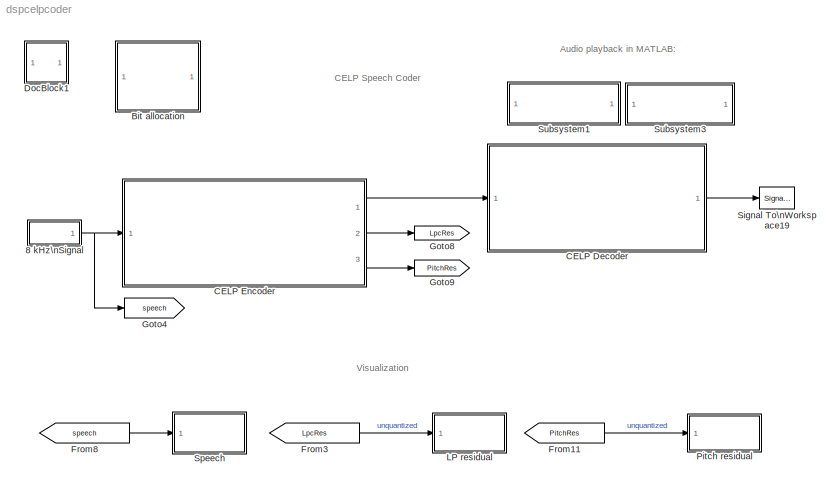
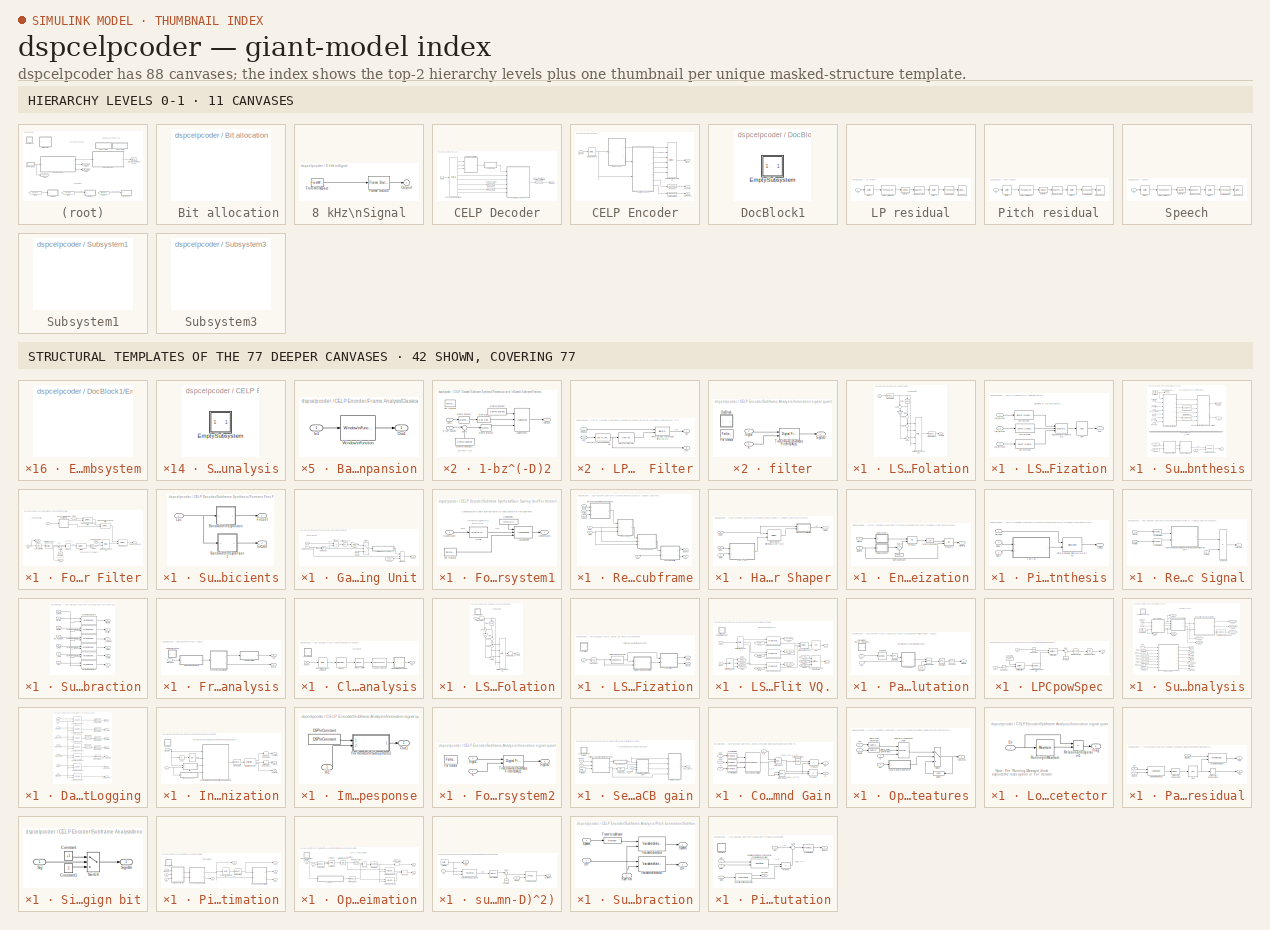
[diagram: thumbnail index - top-2 hierarchy levels (11 canvases) + 42 structural-template representatives of the remaining 77 canvases]
MODEL dspcelpcoder
KIND model
CONFIG PreLoadFcn = load lpcvocoder.mat;
BLOCK [SubSystem]   Bit allocation
  MaskCallbackString = |||||||
  MaskDescription = Bit allocation for the speech coder designed for narrowband speech (sampling frequency 8 KHz) having a frame length of 160 samples and a subframe length of 40 samples (4 subframes per frame).
  MaskDisplay = disp('Bitrate\\n9500 bps')
  MaskEnableString = on,on,on,on,on,on,on,on
  MaskIconFrame = on
  MaskIconOpaque = on
  MaskIconRotate = none
  MaskIconUnits = autoscale
  MaskPromptString = Number of bits for 1st LSF subvector (1 to 3) (per frame):|Number of bits for 2nd LSF subvector (4 to 6) (per frame):|Number of bits for 3rd LSF subvector (7 to 10) (per frame):|Number of bits for Pitch Delay, D (per subframe):|Number of bits for Pitch Gain, Beta (per subframe):|Number of bits for sign of 4 FCB pulses (per subframe):|Number of bits for position of 4 FCB pulses (per subframe):|Numb...<+46ch>
  MaskStyleString = popup(10),popup(10),popup(10),popup(7),popup(6),popup(4),popup(17),popup(6)
  MaskTabNameString = ,,,,,,,
  MaskToolTipString = on,on,on,on,on,on,on,on
  MaskTunableValueString = off,off,off,off,off,off,off,on
  MaskType = Bit Allocation
  MaskValueString = 10|10|10|7|6|4|17|6
  MaskVarAliasString = ,,,,,,,
  MaskVariables = bitLSF1to3=@1;bitLSF4to6=@2;bitLSF7to10=@3;bitD=@4;bitBeta=@5;bitSignGain=@6;bitPhase=@7;bitAlpha=@8;
  MaskVisibilityString = on,on,on,on,on,on,on,on
  MinAlgLoopOccurrences = off
  Ports = []
  PropExecContextAcrossSSBoundary = on
  RTWSystemCode = Auto
  ShowPortLabels = off
  TreatAsAtomicUnit = off
BLOCK [SubSystem] 8 kHz\nSignal
  AncestorBlock = dspsrcs4/Signal From\nWorkspace
  MaskCallbackString = |||
  MaskDescription = Output signal samples obtained from the MATLAB workspace at successive sample times.  A signal matrix is interpreted as having one channel per column.  Signal columns may be buffered into frames by specifying a number of samples per frame greater than 1.\n\nAn M x N x P signal array outputs M x N matrices at successive sample times.  The samples per frame must be equal to 1 for 3 dimensional signa...<+9ch>
  MaskDisplay = disp(&1)
  MaskEnableString = on,on,on,on
  MaskHelp = web(dspbhelp);
  MaskIconFrame = on
  MaskIconOpaque = on
  MaskIconRotate = none
  MaskIconUnits = autoscale
  MaskInitialization = [s,Ts] = dspblksfw2('init', X,Ts,nsamps);\n
  MaskPromptString = Signal:|Sample time:|Samples per frame:|Form output after final data value by:
  MaskSelfModifiable = on
  MaskStyleString = edit,edit,edit,popup(Setting to zero|Holding final value|Cyclic repetition)
  MaskTabNameString = ,,,
  MaskToolTipString = on,on,on,on
  MaskTunableValueString = off,off,off,off
  MaskType = Signal From Workspace
  MaskValueString = Speech|1/8000|160|Setting to zero
  MaskVarAliasString = ,,,
  MaskVariables = X=@1;Ts=@2;nsamps=@3;OutputAfterFinalValue=@4;
  MaskVisibilityString = on,on,on,on
  MinAlgLoopOccurrences = off
  Ports = [0, 1]
  PropExecContextAcrossSSBoundary = on
  RTWSystemCode = Auto
  TreatAsAtomicUnit = off
BLOCK [Reference] 8 kHz\nSignal/Frame Status  REF=dspsigattribs/Frame Status\nConversion
  Ports = [1, 1]
  ShowPortLabels = off
  SourceBlock = dspsigattribs/Frame Status\nConversion
  SourceType = Frame Status Conversion
  growRefPort = off
  outframe = Frame-based
BLOCK [FromWorkspace] 8 kHz\nSignal/From Workspace
  Interpolate = off
  OutputAfterFinalValue = Setting to zero
  SampleTime = Ts
  VariableName = s
BLOCK [Outport] 8 kHz\nSignal/Outport
  BusOutputAsStruct = off
  IconDisplay = Port number
  InitialOutput = 0
BLOCK [SubSystem] CELP Decoder
  MaskDisplay = disp('   CELP\\n     Decoder')\nport_label('input',1,'Data Stream')\nport_label('output',1,'Speech')
  MaskIconFrame = on
  MaskIconOpaque = on
  MaskIconRotate = none
  MaskIconUnits = autoscale
  MinAlgLoopOccurrences = off
  Ports = [1, 1]
  PropExecContextAcrossSSBoundary = on
  RTWSystemCode = Auto
  TreatAsAtomicUnit = off
BLOCK [Reference] CELP Decoder/Concatenation of subframes\nto form frame  REF=simulink/Math\nOperations/Reshape
  OutputDimensionality = Customize
  OutputDimensions = [160,1]
  Ports = [1, 1]
  SourceBlock = simulink/Math\nOperations/Reshape
  SourceType = Reshape
BLOCK [Reference] CELP Decoder/Decoding of\nData-Stream  REF=dspindex/Multiport\nSelector
  Ports = [1, 8]
  SourceBlock = dspindex/Multiport\nSelector
  SourceType = Multiport Selector
  idxCellArray = { 1,2,3,4:7,8:11,12:27,28:43,44:47 }
  idxErrMode = Clip Index
  rowsOrCols = Columns
BLOCK [Reference] CELP Decoder/Frame to subframe  REF=simulink/Math\nOperations/Reshape
  OutputDimensionality = Customize
  OutputDimensions = [4,4]
  Ports = [1, 1]
  SourceBlock = simulink/Math\nOperations/Reshape
  SourceType = Reshape
BLOCK [SubSystem] CELP Decoder/LSF Interpolation
  MinAlgLoopOccurrences = off
  Ports = [1, 1]
  PropExecContextAcrossSSBoundary = on
  RTWSystemCode = Auto
  TreatAsAtomicUnit = off
BLOCK [Reference] CELP Decoder/LSF Interpolation/Delay  REF=dspsigops/Delay
  Ports = [1, 1]
  SourceBlock = dspsigops/Delay
  SourceType = Delay
  delay = 1
  dif_ic_for_ch = off
  dif_ic_for_dly = on
  dly_unit = Frames
  ic = (poly2lsf([1 zeros(1,10)])).'
  ic_detail = on
  reset_popup = None
BLOCK [FrameConversion] CELP Decoder/LSF Interpolation/Frame Status
  OutFrame = Frame based
BLOCK [FrameConversion] CELP Decoder/LSF Interpolation/Frame Status1
  OutFrame = Sample based
BLOCK [Gain] CELP Decoder/LSF Interpolation/Gain
  Gain = 1/4
BLOCK [Inport] CELP Decoder/LSF Interpolation/LSF
  IconDisplay = Port number
  LatchInput = off
BLOCK [Outport] CELP Decoder/LSF Interpolation/LSFinterp
  BusOutputAsStruct = off
  IconDisplay = Port number
BLOCK [Reference] CELP Decoder/LSF Interpolation/Matrix\nConcatenation  REF=simulink/Math\nOperations/Matrix\nConcatenation
  Ports = [4, 1]
  SourceBlock = simulink/Math\nOperations/Matrix\nConcatenation
  SourceType = Matrix Concatenation
  catMethod = Horizontal
  numInports = 4
BLOCK [Sum] CELP Decoder/LSF Interpolation/Sum
  IconShape = round
  InputSameDT = off
  Inputs = |+-
  OutDataTypeMode = Inherit via internal rule
  Ports = [2, 1]
BLOCK [Sum] CELP Decoder/LSF Interpolation/Sum1
  IconShape = round
  InputSameDT = off
  Inputs = ++|
  OutDataTypeMode = Inherit via internal rule
  Ports = [2, 1]
BLOCK [Sum] CELP Decoder/LSF Interpolation/Sum2
  IconShape = round
  InputSameDT = off
  Inputs = ++|
  OutDataTypeMode = Inherit via internal rule
  Ports = [2, 1]
BLOCK [Sum] CELP Decoder/LSF Interpolation/Sum3
  IconShape = round
  InputSameDT = off
  Inputs = ++|
  OutDataTypeMode = Inherit via internal rule
  Ports = [2, 1]
BLOCK [SubSystem] CELP Decoder/LSF dequantization
  MinAlgLoopOccurrences = off
  Ports = [3, 1]
  PropExecContextAcrossSSBoundary = on
  RTWSystemCode = Auto
  TreatAsAtomicUnit = off
BLOCK [Reference] CELP Decoder/LSF dequantization/Concatenate\nsubframe  REF=simulink/Math\nOperations/Matrix\nConcatenation
  Ports = [3, 1]
  SourceBlock = simulink/Math\nOperations/Matrix\nConcatenation
  SourceType = Matrix Concatenation
  catMethod = Vertical
  numInports = 3
BLOCK [Inport] CELP Decoder/LSF dequantization/Idx_lsf1to3
  IconDisplay = Port number
  LatchInput = off
BLOCK [Inport] CELP Decoder/LSF dequantization/Idx_lsf4to6
  IconDisplay = Port number
  LatchInput = off
  Port = 2
BLOCK [Inport] CELP Decoder/LSF dequantization/Idx_lsf7to10
  IconDisplay = Port number
  LatchInput = off
  Port = 3
BLOCK [Outport] CELP Decoder/LSF dequantization/LSF
  BusOutputAsStruct = off
  IconDisplay = Port number
BLOCK [Reference] CELP Decoder/LSF dequantization/LSF VQ1to3  REF=dspquant2/Vector Quantizer\nDecoder
  CBsource = Specify via dialog
  Ports = [1, 1]
  SourceBlock = dspquant2/Vector Quantizer\nDecoder
  SourceType = Vector Quantizer Decoder
  codebook = CB_lsf1to3_10bit
  dataType = double
  fracBitsMode = Best precision
  invalidin = Clip and warn
  isSigned = on
  numFracBits = 7
  udDataType = sfix(16)
  wordLen = 16
BLOCK [Reference] CELP Decoder/LSF dequantization/LSF VQ4to6  REF=dspquant2/Vector Quantizer\nDecoder
  CBsource = Specify via dialog
  Ports = [1, 1]
  SourceBlock = dspquant2/Vector Quantizer\nDecoder
  SourceType = Vector Quantizer Decoder
  codebook = CB_lsf4to6_10bit
  dataType = double
  fracBitsMode = Best precision
  invalidin = Clip and warn
  isSigned = on
  numFracBits = 7
  udDataType = sfix(16)
  wordLen = 16
BLOCK [Reference] CELP Decoder/LSF dequantization/LSF VQ7to10  REF=dspquant2/Vector Quantizer\nDecoder
  CBsource = Specify via dialog
  Ports = [1, 1]
  SourceBlock = dspquant2/Vector Quantizer\nDecoder
  SourceType = Vector Quantizer Decoder
  codebook = CB_lsf7to10_10bit
  dataType = double
  fracBitsMode = Best precision
  invalidin = Clip and warn
  isSigned = on
  numFracBits = 7
  udDataType = sfix(16)
  wordLen = 16
BLOCK [Reference] CELP Decoder/LSF dequantization/Sort  REF=dspstat3/Sort
  DialogController = dspDDGCreate
  DialogControllerArgs = DataTag0
  Ports = [1, 1]
  SourceBlock = dspstat3/Sort
  SourceType = Sort
  accumFracLength = 30
  accumMode = Same as input
  accumWordLength = 32
  additionalParams = off
  allowOverrides = on
  dir = Ascending
  otype = Value
  overflowMode = off
  prodOutputFracLength = 30
  prodOutputMode = Same as input
  prodOutputWordLength = 32
  roundingMode = Floor
  sortAlg = Quick sort
BLOCK [Reference] CELP Decoder/Reshape2  REF=simulink/Math\nOperations/Reshape
  OutputDimensionality = Customize
  OutputDimensions = [4,4]
  Ports = [1, 1]
  SourceBlock = simulink/Math\nOperations/Reshape
  SourceType = Reshape
BLOCK [Outport] CELP Decoder/Speech
  BusOutputAsStruct = off
  IconDisplay = Port number
BLOCK [Inport] CELP Decoder/Stream
  IconDisplay = Port number
  LatchInput = off
BLOCK [SubSystem] CELP Decoder/Subframe Synthesis
  MinAlgLoopOccurrences = off
  Ports = [6, 1]
  PropExecContextAcrossSSBoundary = on
  RTWSystemCode = Auto
  TreatAsAtomicUnit = on
BLOCK [Inport] CELP Decoder/Subframe Synthesis/4Position
  IconDisplay = Port number
  LatchInput = off
  Port = 4
BLOCK [Inport] CELP Decoder/Subframe Synthesis/4SignBit
  IconDisplay = Port number
  LatchInput = off
  Port = 5
BLOCK [Reference] CELP Decoder/Subframe Synthesis/Beta: SQ dec  REF=dspquant2/Scalar Quantizer\nDecoder
  CBsource = Specify via dialog
  Ports = [1, 1]
  SourceBlock = dspquant2/Scalar Quantizer\nDecoder
  SourceType = Scalar Quantizer Decoder
  codebook = [-1082.3569     -246.64044     -206.60177     -119.68735     -118.12987     -109.71395     -107.74187     -101.39102     -96.836918     -91.269156     -86.372177     -83.198634     -82.501047     -77.265358     -76.499561     -74.506154     -73.162943     -72.064354     -69.588398     -67.441995     -64.571558     -63.949501     -62.716478     -61.876738     -61.311021     -60.518343     -58.65085...<+557ch>  <repeated x3 — deduplicated; at blocks: Beta: SQ dec, SQ (6bits): \nPitch gain (beta), SQ (6bit): \nFCB gain (alpha)>
  dataType = double
  fracBitsMode = Best precision
  invalidin = Clip
  isSigned = on
  numFracBits = 11
  udDataType = sfix(16)
  wordLen = 16
BLOCK [Reference] CELP Decoder/Subframe Synthesis/FCBgain: SQ dec  REF=dspquant2/Scalar Quantizer\nDecoder
  CBsource = Specify via dialog
  Ports = [1, 1]
  SourceBlock = dspquant2/Scalar Quantizer\nDecoder
  SourceType = Scalar Quantizer Decoder
  codebook = [-0.056021   -0.044097   -0.036312   -0.032845   -0.027656   -0.024334   -0.021157   -0.016236   -0.012644   -0.009939  -0.0075682   -0.005381    -0.00346  -0.0018555 -0.00067033  0.00028187   0.0011099   0.0020196   0.0029919   0.0040377   0.0051592   0.0063683   0.0076408   0.0090117    0.010466    0.012026     0.01376    0.015654    0.017725     0.01998    0.022452    0.025171    0.028043    0....<+367ch>
  dataType = double
  fracBitsMode = Best precision
  invalidin = Clip
  isSigned = on
  numFracBits = 11
  udDataType = sfix(16)
  wordLen = 16
BLOCK [ForIterator] CELP Decoder/Subframe Synthesis/For Iterator
  IterationLimit = 4
  Ports = [0, 1]
BLOCK [SubSystem] CELP Decoder/Subframe Synthesis/Formant Post Filter
  MinAlgLoopOccurrences = off
  Ports = [2, 2]
  PropExecContextAcrossSSBoundary = on
  RTWSystemCode = Auto
  TreatAsAtomicUnit = off
BLOCK [Reference] CELP Decoder/Subframe Synthesis/Formant Post Filter/Autocorrelation  REF=dspstat3/Autocorrelation
  AllPositiveLags = off
  DialogController = dspDDGCreate
  DialogControllerArgs = DataTag1
  Ports = [1, 1]
  SourceBlock = dspstat3/Autocorrelation
  SourceType = Autocorrelation
  accumFracLength = 30
  accumMode = Same as product output
  accumWordLength = 32
  additionalParams = off
  allowOverrides = on
  bias = None
  domain = Time
  maxlag = 1
  outputFracLength = 15
  outputMode = Same as input
  outputWordLength = 16
  overflowMode = off
  prodOutputFracLength = 30
  prodOutputMode = Same as input
  prodOutputWordLength = 32
  roundingMode = Floor
BLOCK [Constant] CELP Decoder/Subframe Synthesis/Formant Post Filter/Constant
  Value = eps
BLOCK [Reference] CELP Decoder/Subframe Synthesis/Formant Post Filter/DSP\nConstant4  REF=dspsrcs4/DSP\nConstant
  FramebasedOutput = -inf
  InterpretAs1D = -inf
  Ports = [0, 1]
  SampleMode = Discrete
  ShowPortLabels = on
  SourceBlock = dspsrcs4/DSP\nConstant
  SourceType = DSP Constant
  Ts = -inf
  Value = 1
  additionalParams = on
  allowOverrides = on
  continuousOutput = Sample-based
  dataType = double
  discreteOutput = Sample-based
  fracBitsMode = Best precision
  framePeriod = -1
  isSigned = on
  numFracBits = 15
  sampTime = -1
  udDataType = sfix(16)
  wordLen = 16
BLOCK [Reference] CELP Decoder/Subframe Synthesis/Formant Post Filter/Filtering  REF=dsparch4/Digital Filter
  AllPoleFiltStruct = Direct form
  BiQuadCoeffs = [1 0.3 0.4 1 0.1 0.2]
  CoeffSource = Specify via dialog
  DenCoeffs = [1 -0.75]
  DialogController = dspDDGCreate
  DialogControllerArgs = DataTag2
  FIRFiltStruct = Direct form
  FiltPerSampPopup = One filter per frame
  IC = 0
  ICden = 0
  ICnum = 0
  IIRFiltStruct = Direct form II transposed
  LatticeCoeffs = [0.2 0.4]
  NumCoeffs = [1 -.95]
  Ports = [1, 1]
  ScaleValues = 1
  SourceBlock = dsparch4/Digital Filter
  SourceType = Digital Filter
  TypePopup = IIR (all poles)
  accumFracLength = 30
  accumMode = Same as product output
  accumWordLength = 40
  additionalParams = off
  allowOverrides = on
  denIgnore = on
  firstCoeffFracLength = 15
  firstCoeffMode = Same as input
  firstCoeffWordLength = 16
  memoryFracLength = 14
  memoryMode = Same as input
  memoryWordLength = 16
  outputFracLength = 15
  outputMode = Same as input
  outputWordLength = 16
  overflowMode = off
  prodOutputFracLength = 30
  prodOutputMode = Same as input
  prodOutputWordLength = 32
  roundingMode = Floor
  scaleValueFracLength = 14
  secondCoeffFracLength = 15
  secondCoeffMode = Same as numerator
  secondCoeffWordLength = 16
  showAcc = off
  showCoeff = off
  showMem = off
  showMpy = off
  showOut = off
  stageIOMode = Same as input
  stageIOWordLength = 16
  stageInFracLength = 15
  stageOutFracLength = 15
  tapSumFracLength = 30
  tapSumMode = Same as input
  tapSumWordLength = 32
  thirdCoeffFracLength = 15
  thirdCoeffMode = Same as input
  thirdCoeffWordLength = 16
BLOCK [Outport] CELP Decoder/Subframe Synthesis/Formant Post Filter/Formant_Speech
  BusOutputAsStruct = off
  IconDisplay = Port number
BLOCK [From] CELP Decoder/Subframe Synthesis/Formant Post Filter/From5
  CloseFcn = tagdialog Close
  DialogController = Simulink.DDGSource
  GotoTag = S_n
BLOCK [Gain] CELP Decoder/Subframe Synthesis/Formant Post Filter/Gain2
  Gain = -(0.25*0.25)
BLOCK [Goto] CELP Decoder/Subframe Synthesis/Formant Post Filter/Goto1
  DialogController = Simulink.DDGSource
  GotoTag = S_n
  TagVisibility = local
BLOCK [Inport] CELP Decoder/Subframe Synthesis/Formant Post Filter/LPC
  IconDisplay = Port number
  LatchInput = off
BLOCK [Reference] CELP Decoder/Subframe Synthesis/Formant Post Filter/Matrix\nConcatenation  REF=simulink/Math\nOperations/Matrix\nConcatenation
  Ports = [2, 1]
  SourceBlock = simulink/Math\nOperations/Matrix\nConcatenation
  SourceType = Matrix Concatenation
  catMethod = Vertical
  numInports = 2
BLOCK [Reference] CELP Decoder/Subframe Synthesis/Formant Post Filter/Multiport\nSelector  REF=dspindex/Multiport\nSelector
  Ports = [1, 2]
  SourceBlock = dspindex/Multiport\nSelector
  SourceType = Multiport Selector
  idxCellArray = {2,1}
  idxErrMode = Clip Index
  rowsOrCols = Rows
BLOCK [Reference] CELP Decoder/Subframe Synthesis/Formant Post Filter/Pre-Emphasis  REF=dsparch4/Digital Filter
  AllPoleFiltStruct = Direct form
  BiQuadCoeffs = [1 0.3 0.4 1 0.1 0.2]
  CoeffSource = Input port(s)
  DenCoeffs = [1 0.1]
  DialogController = dspDDGCreate
  DialogControllerArgs = DataTag3
  FIRFiltStruct = Direct form
  FiltPerSampPopup = One filter per frame
  IC = 0
  ICden = 0
  ICnum = 0
  IIRFiltStruct = Direct form II transposed
  LatticeCoeffs = [0.2 0.4]
  NumCoeffs = [1 -.95]
  Ports = [2, 1]
  ScaleValues = 1
  SourceBlock = dsparch4/Digital Filter
  SourceType = Digital Filter
  TypePopup = FIR (all zeros)
  accumFracLength = 30
  accumMode = Same as product output
  accumWordLength = 40
  additionalParams = off
  allowOverrides = on
  denIgnore = on
  firstCoeffFracLength = 15
  firstCoeffMode = Same as input
  firstCoeffWordLength = 16
  memoryFracLength = 14
  memoryMode = Same as input
  memoryWordLength = 16
  outputFracLength = 15
  outputMode = Same as input
  outputWordLength = 16
  overflowMode = off
  prodOutputFracLength = 30
  prodOutputMode = Same as input
  prodOutputWordLength = 32
  roundingMode = Floor
  scaleValueFracLength = 14
  secondCoeffFracLength = 15
  secondCoeffMode = Same as numerator
  secondCoeffWordLength = 16
  showAcc = off
  showCoeff = off
  showMem = off
  showMpy = off
  showOut = off
  stageIOMode = Same as input
  stageIOWordLength = 16
  stageInFracLength = 15
  stageOutFracLength = 15
  tapSumFracLength = 30
  tapSumMode = Same as input
  tapSumWordLength = 32
  thirdCoeffFracLength = 15
  thirdCoeffMode = Same as input
  thirdCoeffWordLength = 16
BLOCK [Product] CELP Decoder/Subframe Synthesis/Formant Post Filter/Product
  Inputs = */
  Ports = [2, 1]
BLOCK [Inport] CELP Decoder/Subframe Synthesis/Formant Post Filter/S(n)
  IconDisplay = Port number
  LatchInput = off
  Port = 2
BLOCK [Outport] CELP Decoder/Subframe Synthesis/Formant Post Filter/Senr
  BusOutputAsStruct = off
  IconDisplay = Port number
  Port = 2
BLOCK [SubSystem] CELP Decoder/Subframe Synthesis/Formant Post Filter/Subsystem for\nARMA Coefficients
  MinAlgLoopOccurrences = off
  Ports = [1, 2]
  PropExecContextAcrossSSBoundary = on
  RTWSystemCode = Auto
  TreatAsAtomicUnit = off
BLOCK [SubSystem] CELP Decoder/Subframe Synthesis/Formant Post Filter/Subsystem for\nARMA Coefficients/Bandwidth\nExpansion
  MaskDescription = Generate autoregressive (AR) polynomial with bandwidth expanded relative to the bandwidth of the input AR polynomial.\n\nBy reducing the radius of the roots in an autoregressive polynomial (i.e., scaling them towards the origin of the Z-plane), the bandwidth of the spectral peaks in the frequency response is expanded (flattened).  This operation is often referred to as \"bandwidth expansion\".\n\n...<+114ch>  <repeated x3 — deduplicated; at blocks: Bandwidth\nExpansion, Bandwidth\nExpansion1>
  MaskDisplay = fprintf('Bandwidth\\nExpansion\\n%g', alpha)\n
  MaskEnableString = on
  MaskHelp = web(dspbhelp);
  MaskIconFrame = on
  MaskIconOpaque = on
  MaskIconRotate = none
  MaskIconUnits = autoscale
  MaskPromptString = Bandwidth expansion factor:
  MaskStyleString = edit
  MaskToolTipString = on
  MaskTunableValueString = on
  MaskType = Bandwidth Expansion
  MaskValueString = 0.65
  MaskVariables = alpha=@1;
  MaskVisibilityString = on
  MinAlgLoopOccurrences = off
  Ports = [1, 1]
  PropExecContextAcrossSSBoundary = on
  RTWSystemCode = Auto
  TreatAsAtomicUnit = off
BLOCK [Inport] CELP Decoder/Subframe Synthesis/Formant Post Filter/Subsystem for\nARMA Coefficients/Bandwidth\nExpansion/In1
  IconDisplay = Port number
  LatchInput = off
BLOCK [Outport] CELP Decoder/Subframe Synthesis/Formant Post Filter/Subsystem for\nARMA Coefficients/Bandwidth\nExpansion/Out1
  BusOutputAsStruct = off
  IconDisplay = Port number
BLOCK [Reference] CELP Decoder/Subframe Synthesis/Formant Post Filter/Subsystem for\nARMA Coefficients/Bandwidth\nExpansion/Window\nFunction  REF=dspsigops/Window\nFunction
  DialogController = dspDDGCreate
  DialogControllerArgs = DataTag4
  N = 64
  OptParams = on
  Ports = [1, 1]
  Rs = 50
  SourceBlock = dspsigops/Window\nFunction
  SourceType = Window Function
  UserParams = alpha
  UserWindow = bwexpwin
  additionalParams = off
  allowOverrides = on
  beta = 10
  dataType = double
  firstCoeffFracLength = 15
  firstCoeffMode = Same word length as input
  firstCoeffWordLength = 16
  fracBitsMode = Best precision
  isSigned = on
  numFracBits = 15
  outputFracLength = 15
  outputMode = Same as input
  outputWordLength = 16
  overflowMode = off
  prodOutputFracLength = 15
  prodOutputMode = Inherit via internal rule
  prodOutputWordLength = 16
  roundingMode = Floor
  sampmode = Continuous
  samptime = 1
  udDataType = sfix(16)
  winmode = Apply window to input
  winsamp = Symmetric
  wintype = User defined
  wordLen = 16
BLOCK [SubSystem] CELP Decoder/Subframe Synthesis/Formant Post Filter/Subsystem for\nARMA Coefficients/Bandwidth\nExpansion1
  MaskDisplay = fprintf('Bandwidth\\nExpansion\\n%g', alpha)\n
  MaskEnableString = on
  MaskHelp = web(dspbhelp);
  MaskIconFrame = on
  MaskIconOpaque = on
  MaskIconRotate = none
  MaskIconUnits = autoscale
  MaskPromptString = Bandwidth expansion factor:
  MaskStyleString = edit
  MaskToolTipString = on
  MaskTunableValueString = on
  MaskType = Bandwidth Expansion
  MaskValueString = 0.75
  MaskVariables = alpha=@1;
  MaskVisibilityString = on
  MinAlgLoopOccurrences = off
  Ports = [1, 1]
  PropExecContextAcrossSSBoundary = on
  RTWSystemCode = Auto
  TreatAsAtomicUnit = off
BLOCK [Inport] CELP Decoder/Subframe Synthesis/Formant Post Filter/Subsystem for\nARMA Coefficients/Bandwidth\nExpansion1/In1
  IconDisplay = Port number
  LatchInput = off
BLOCK [Outport] CELP Decoder/Subframe Synthesis/Formant Post Filter/Subsystem for\nARMA Coefficients/Bandwidth\nExpansion1/Out1
  BusOutputAsStruct = off
  IconDisplay = Port number
BLOCK [Reference] CELP Decoder/Subframe Synthesis/Formant Post Filter/Subsystem for\nARMA Coefficients/Bandwidth\nExpansion1/Window\nFunction  REF=dspsigops/Window\nFunction
  DialogController = dspDDGCreate
  DialogControllerArgs = DataTag5
  N = 64
  OptParams = on
  Ports = [1, 1]
  Rs = 50
  SourceBlock = dspsigops/Window\nFunction
  SourceType = Window Function
  UserParams = alpha
  UserWindow = bwexpwin
  additionalParams = off
  allowOverrides = on
  beta = 10
  dataType = double
  firstCoeffFracLength = 15
  firstCoeffMode = Same word length as input
  firstCoeffWordLength = 16
  fracBitsMode = Best precision
  isSigned = on
  numFracBits = 15
  outputFracLength = 15
  outputMode = Same as input
  outputWordLength = 16
  overflowMode = off
  prodOutputFracLength = 15
  prodOutputMode = Inherit via internal rule
  prodOutputWordLength = 16
  roundingMode = Floor
  sampmode = Continuous
  samptime = 1
  udDataType = sfix(16)
  winmode = Apply window to input
  winsamp = Symmetric
  wintype = User defined
  wordLen = 16
BLOCK [Outport] CELP Decoder/Subframe Synthesis/Formant Post Filter/Subsystem for\nARMA Coefficients/FirCoef
  BusOutputAsStruct = off
  IconDisplay = Port number
BLOCK [Outport] CELP Decoder/Subframe Synthesis/Formant Post Filter/Subsystem for\nARMA Coefficients/IirCoef
  BusOutputAsStruct = off
  IconDisplay = Port number
  Port = 2
BLOCK [Inport] CELP Decoder/Subframe Synthesis/Formant Post Filter/Subsystem for\nARMA Coefficients/Lpc
  IconDisplay = Port number
  LatchInput = off
BLOCK [Sum] CELP Decoder/Subframe Synthesis/Formant Post Filter/Sum1
  IconShape = round
  Inputs = |++
  Ports = [2, 1]
BLOCK [Reference] CELP Decoder/Subframe Synthesis/Formant Post Filter/Time-Varying \nAnalysis Filter  REF=dsparch4/Digital Filter
  AllPoleFiltStruct = Direct form
  BiQuadCoeffs = [1 0.3 0.4 1 0.1 0.2]
  CoeffSource = Input port(s)
  DenCoeffs = [1 0.1]
  DialogController = dspDDGCreate
  DialogControllerArgs = DataTag6
  FIRFiltStruct = Direct form
  FiltPerSampPopup = One filter per frame
  IC = 0
  ICden = 0
  ICnum = 0
  IIRFiltStruct = Direct form II transposed
  LatticeCoeffs = [0.2 0.4]
  NumCoeffs = [1 -.95]
  Ports = [2, 1]
  ScaleValues = 1
  SourceBlock = dsparch4/Digital Filter
  SourceType = Digital Filter
  TypePopup = FIR (all zeros)
  accumFracLength = 30
  accumMode = Same as product output
  accumWordLength = 40
  additionalParams = off
  allowOverrides = on
  denIgnore = on
  firstCoeffFracLength = 15
  firstCoeffMode = Same as input
  firstCoeffWordLength = 16
  memoryFracLength = 14
  memoryMode = Same as input
  memoryWordLength = 16
  outputFracLength = 15
  outputMode = Same as input
  outputWordLength = 16
  overflowMode = off
  prodOutputFracLength = 30
  prodOutputMode = Same as input
  prodOutputWordLength = 32
  roundingMode = Floor
  scaleValueFracLength = 14
  secondCoeffFracLength = 15
  secondCoeffMode = Same as numerator
  secondCoeffWordLength = 16
  showAcc = off
  showCoeff = off
  showMem = off
  showMpy = off
  showOut = off
  stageIOMode = Same as input
  stageIOWordLength = 16
  stageInFracLength = 15
  stageOutFracLength = 15
  tapSumFracLength = 30
  tapSumMode = Same as input
  tapSumWordLength = 32
  thirdCoeffFracLength = 15
  thirdCoeffMode = Same as input
  thirdCoeffWordLength = 16
BLOCK [Reference] CELP Decoder/Subframe Synthesis/Formant Post Filter/Time-Varying \nSynthesis Filter  REF=dsparch4/Digital Filter
  AllPoleFiltStruct = Direct form
  BiQuadCoeffs = [1 0.3 0.4 1 0.1 0.2]
  CoeffSource = Input port(s)
  DenCoeffs = [1 0.1]
  DialogController = dspDDGCreate
  DialogControllerArgs = DataTag7
  FIRFiltStruct = Direct form
  FiltPerSampPopup = One filter per frame
  IC = 0
  ICden = 0
  ICnum = 0
  IIRFiltStruct = Direct form II transposed
  LatticeCoeffs = [0.2 0.4]
  NumCoeffs = [1 -.95]
  Ports = [2, 1]
  ScaleValues = 1
  SourceBlock = dsparch4/Digital Filter
  SourceType = Digital Filter
  TypePopup = IIR (all poles)
  accumFracLength = 30
  accumMode = Same as product output
  accumWordLength = 40
  additionalParams = off
  allowOverrides = on
  denIgnore = on
  firstCoeffFracLength = 15
  firstCoeffMode = Same as input
  firstCoeffWordLength = 16
  memoryFracLength = 14
  memoryMode = Same as input
  memoryWordLength = 16
  outputFracLength = 15
  outputMode = Same as input
  outputWordLength = 16
  overflowMode = off
  prodOutputFracLength = 30
  prodOutputMode = Same as input
  prodOutputWordLength = 32
  roundingMode = Floor
  scaleValueFracLength = 14
  secondCoeffFracLength = 15
  secondCoeffMode = Same as numerator
  secondCoeffWordLength = 16
  showAcc = off
  showCoeff = off
  showMem = off
  showMpy = off
  showOut = off
  stageIOMode = Same as input
  stageIOWordLength = 16
  stageInFracLength = 15
  stageOutFracLength = 15
  tapSumFracLength = 30
  tapSumMode = Same as input
  tapSumWordLength = 32
  thirdCoeffFracLength = 15
  thirdCoeffMode = Same as input
  thirdCoeffWordLength = 16
BLOCK [From] CELP Decoder/Subframe Synthesis/From3
  CloseFcn = tagdialog Close
  DialogController = Simulink.DDGSource
  GotoTag = LPC
BLOCK [From] CELP Decoder/Subframe Synthesis/From4
  CloseFcn = tagdialog Close
  DialogController = Simulink.DDGSource
  GotoTag = E
BLOCK [From] CELP Decoder/Subframe Synthesis/From7
  CloseFcn = tagdialog Close
  DialogController = Simulink.DDGSource
  GotoTag = Speech
BLOCK [SubSystem] CELP Decoder/Subframe Synthesis/Gain Scaling Unit
  MinAlgLoopOccurrences = off
  Ports = [2, 1]
  PropExecContextAcrossSSBoundary = on
  RTWSystemCode = Auto
  TreatAsAtomicUnit = off
BLOCK [Reference] CELP Decoder/Subframe Synthesis/Gain Scaling Unit/0.0625  REF=dspsrcs4/DSP\nConstant
  FramebasedOutput = off
  InterpretAs1D = off
  Ports = [0, 1]
  SampleMode = Discrete
  ShowPortLabels = on
  SourceBlock = dspsrcs4/DSP\nConstant
  SourceType = DSP Constant
  Ts = -1
  Value = 1/16
  additionalParams = off
  allowOverrides = on
  continuousOutput = Sample-based
  dataType = Inherit from 'Constant value'
  discreteOutput = Sample-based
  fracBitsMode = Best precision
  framePeriod = -1
  isSigned = on
  numFracBits = 15
  sampTime = -1
  udDataType = sfix(16)
  wordLen = 16
BLOCK [Constant] CELP Decoder/Subframe Synthesis/Gain Scaling Unit/1.0625
  Value = 17/16
BLOCK [Reference] CELP Decoder/Subframe Synthesis/Gain Scaling Unit/Dot Product  REF=simulink/Math\nOperations/Dot Product
  DoSatur = on
  InputSameDT = off
  LockScale = off
  OutDataType = sfix(16)
  OutScaling = 2^-10
  OutputDataTypeScalingMode = Inherit via internal rule
  Ports = [2, 1]
  RndMeth = Floor
  SourceBlock = simulink/Math\nOperations/Dot Product
  SourceType = Dot Product
BLOCK [SubSystem] CELP Decoder/Subframe Synthesis/Gain Scaling Unit/For Iterator\nSubsystem1
  MinAlgLoopOccurrences = off
  Ports = [1, 1]
  PropExecContextAcrossSSBoundary = on
  RTWSystemCode = Auto
  TreatAsAtomicUnit = on
BLOCK [Assignment] CELP Decoder/Subframe Synthesis/Gain Scaling Unit/For Iterator\nSubsystem1/Assignment
  ColumnSrc = External
  ElementSrc = External
  Ports = [3, 1]
  Rows = -1
BLOCK [Constant] CELP Decoder/Subframe Synthesis/Gain Scaling Unit/For Iterator\nSubsystem1/Constant1
  Value = zeros(40,1)
  VectorParams1D = off
BLOCK [ForIterator] CELP Decoder/Subframe Synthesis/Gain Scaling Unit/For Iterator\nSubsystem1/For Iterator
  IterationLimit = 40
  Ports = [0, 1]
BLOCK [Inport] CELP Decoder/Subframe Synthesis/Gain Scaling Unit/For Iterator\nSubsystem1/ScalarGain
  IconDisplay = Port number
  LatchInput = off
BLOCK [Outport] CELP Decoder/Subframe Synthesis/Gain Scaling Unit/For Iterator\nSubsystem1/VectorGain
  BusOutputAsStruct = off
  IconDisplay = Port number
BLOCK [Reference] CELP Decoder/Subframe Synthesis/Gain Scaling Unit/For Iterator\nSubsystem1/filter  REF=dsparch4/Digital Filter
  AllPoleFiltStruct = Direct form
  BiQuadCoeffs = [1 0.3 0.4 1 0.1 0.2]
  CoeffSource = Specify via dialog
  DenCoeffs = [1   -0.9375]
  DialogController = dspDDGCreate
  DialogControllerArgs = DataTag8
  FIRFiltStruct = Direct form
  FiltPerSampPopup = One filter per frame
  IC = 1
  ICden = 0
  ICnum = 0
  IIRFiltStruct = Direct form II transposed
  LatticeCoeffs = [0.2 0.4]
  NumCoeffs = [1 -.95]
  Ports = [1, 1]
  ScaleValues = 1
  SourceBlock = dsparch4/Digital Filter
  SourceType = Digital Filter
  TypePopup = IIR (all poles)
  accumFracLength = 30
  accumMode = Same as product output
  accumWordLength = 40
  additionalParams = off
  allowOverrides = on
  denIgnore = on
  firstCoeffFracLength = 15
  firstCoeffMode = Same as input
  firstCoeffWordLength = 16
  memoryFracLength = 14
  memoryMode = Same as input
  memoryWordLength = 16
  outputFracLength = 15
  outputMode = Same as input
  outputWordLength = 16
  overflowMode = off
  prodOutputFracLength = 30
  prodOutputMode = Same as input
  prodOutputWordLength = 32
  roundingMode = Floor
  scaleValueFracLength = 14
  secondCoeffFracLength = 15
  secondCoeffMode = Same as numerator
  secondCoeffWordLength = 16
  showAcc = off
  showCoeff = off
  showMem = off
  showMpy = off
  showOut = off
  stageIOMode = Same as input
  stageIOWordLength = 16
  stageInFracLength = 15
  stageOutFracLength = 15
  tapSumFracLength = 30
  tapSumMode = Same as input
  tapSumWordLength = 32
  thirdCoeffFracLength = 15
  thirdCoeffMode = Same as input
  thirdCoeffWordLength = 16
BLOCK [Inport] CELP Decoder/Subframe Synthesis/Gain Scaling Unit/Formant_Speech
  IconDisplay = Port number
  LatchInput = off
BLOCK [Gain] CELP Decoder/Subframe Synthesis/Gain Scaling Unit/Gain2
  Gain = 1/16
BLOCK [Product] CELP Decoder/Subframe Synthesis/Gain Scaling Unit/Product
  Inputs = */
  Ports = [2, 1]
BLOCK [Product] CELP Decoder/Subframe Synthesis/Gain Scaling Unit/Product1
  Inputs = 3
  Ports = [3, 1]
BLOCK [Inport] CELP Decoder/Subframe Synthesis/Gain Scaling Unit/Senr
  IconDisplay = Port number
  LatchInput = off
  Port = 2
BLOCK [Outport] CELP Decoder/Subframe Synthesis/Gain Scaling Unit/Speech
  BusOutputAsStruct = off
  IconDisplay = Port number
BLOCK [Switch] CELP Decoder/Subframe Synthesis/Gain Scaling Unit/Switch1
  Threshold = 1.175494351e-38
BLOCK [Math] CELP Decoder/Subframe Synthesis/Gain Scaling Unit/sqrt(Senr//Acc1)
  Operator = sqrt
  Ports = [1, 1]
BLOCK [Goto] CELP Decoder/Subframe Synthesis/Goto2
  DialogController = Simulink.DDGSource
  GotoTag = Speech
  TagVisibility = local
BLOCK [Goto] CELP Decoder/Subframe Synthesis/Goto3
  DialogController = Simulink.DDGSource
  GotoTag = LPC
  TagVisibility = local
BLOCK [Inport] CELP Decoder/Subframe Synthesis/Idx_D
  IconDisplay = Port number
  LatchInput = off
  Port = 2
BLOCK [Inport] CELP Decoder/Subframe Synthesis/Idx_FCBgain
  IconDisplay = Port number
  LatchInput = off
  Port = 6
BLOCK [Inport] CELP Decoder/Subframe Synthesis/Idx_beta
  IconDisplay = Port number
  LatchInput = off
  Port = 3
BLOCK [Reference] CELP Decoder/Subframe Synthesis/Log all channels1  REF=dspcelplib/Log all channels
  Ports = [2, 1]
  ShowPortLabels = on
  SourceBlock = dspcelplib/Log all channels
  dType = double
  numCol = 4
  numRow = 40
  outType = Matrix
BLOCK [SubSystem] CELP Decoder/Subframe Synthesis/Reconstruction of \nSpeech Subframe
  MinAlgLoopOccurrences = off
  Ports = [6, 2]
  PropExecContextAcrossSSBoundary = on
  RTWSystemCode = Auto
  TreatAsAtomicUnit = off
BLOCK [Inport] CELP Decoder/Subframe Synthesis/Reconstruction of \nSpeech Subframe/Beta
  IconDisplay = Port number
  LatchInput = off
  Port = 5
BLOCK [Inport] CELP Decoder/Subframe Synthesis/Reconstruction of \nSpeech Subframe/Delay
  IconDisplay = Port number
  LatchInput = off
  Port = 4
BLOCK [Inport] CELP Decoder/Subframe Synthesis/Reconstruction of \nSpeech Subframe/FCBgain
  IconDisplay = Port number
  LatchInput = off
  Port = 3
BLOCK [SubSystem] CELP Decoder/Subframe Synthesis/Reconstruction of \nSpeech Subframe/Harmonic Shaper
  MinAlgLoopOccurrences = off
  Ports = [3, 1]
  PropExecContextAcrossSSBoundary = on
  RTWSystemCode = Auto
  TreatAsAtomicUnit = off
BLOCK [SubSystem] CELP Decoder/Subframe Synthesis/Reconstruction of \nSpeech Subframe/Harmonic Shaper/1-bz^(-D)2
  MinAlgLoopOccurrences = off
  Ports = [2, 1]
  PropExecContextAcrossSSBoundary = on
  RTWSystemCode = Auto
  TreatAsAtomicUnit = on
BLOCK [Assignment] CELP Decoder/Subframe Synthesis/Reconstruction of \nSpeech Subframe/Harmonic Shaper/1-bz^(-D)2/Assignment1
  ColumnSrc = External
  ElementSrc = External
  Ports = [3, 1]
  Rows = -1
BLOCK [Reference] CELP Decoder/Subframe Synthesis/Reconstruction of \nSpeech Subframe/Harmonic Shaper/1-bz^(-D)2/DSP Gain  REF=dspobslib/DSP Gain
  Ports = [1, 1]
  ShowPortLabels = on
  SourceBlock = dspobslib/DSP Gain
  SourceType = DSP Gain
  additionalParams = off
  allowOverrides = on
  gainFracLength = 15
  gainMode = Same as input
  gainValue = -0.965
  gainWordLength = 16
  overflowMode = off
  prodOutputFracLength = 15
  prodOutputMode = Same as input
  prodOutputWordLength = 16
  roundingMode = Floor
BLOCK [Reference] CELP Decoder/Subframe Synthesis/Reconstruction of \nSpeech Subframe/Harmonic Shaper/1-bz^(-D)2/DSP\nConstant  REF=dspsrcs4/DSP\nConstant
  FramebasedOutput = -inf
  InterpretAs1D = -inf
  Ports = [0, 1]
  SampleMode = Discrete
  ShowPortLabels = on
  SourceBlock = dspsrcs4/DSP\nConstant
  SourceType = DSP Constant
  Ts = -inf
  Value = [1 zeros(1,187)]'
  additionalParams = on
  allowOverrides = on
  continuousOutput = Sample-based
  dataType = double
  discreteOutput = Frame-based
  fracBitsMode = Best precision
  framePeriod = -1
  isSigned = on
  numFracBits = 15
  sampTime = 1
  udDataType = sfix(16)
  wordLen = 16
BLOCK [Reference] CELP Decoder/Subframe Synthesis/Reconstruction of \nSpeech Subframe/Harmonic Shaper/1-bz^(-D)2/DSP\nConstant1  REF=dspsrcs4/DSP\nConstant
  FramebasedOutput = -inf
  InterpretAs1D = -inf
  Ports = [0, 1]
  SampleMode = Discrete
  ShowPortLabels = on
  SourceBlock = dspsrcs4/DSP\nConstant
  SourceType = DSP Constant
  Ts = -inf
  Value = 149
  additionalParams = off
  allowOverrides = on
  continuousOutput = Sample-based
  dataType = Inherit from 'Constant value'
  discreteOutput = Frame-based
  fracBitsMode = Best precision
  framePeriod = -1
  isSigned = on
  numFracBits = 15
  sampTime = -1
  udDataType = sfix(16)
  wordLen = 16
BLOCK [Inport] CELP Decoder/Subframe Synthesis/Reconstruction of \nSpeech Subframe/Harmonic Shaper/1-bz^(-D)2/D_buf_1based
  IconDisplay = Port number
  LatchInput = off
BLOCK [ForIterator] CELP Decoder/Subframe Synthesis/Reconstruction of \nSpeech Subframe/Harmonic Shaper/1-bz^(-D)2/For Iterator
  IterationLimit = 1
  Ports = []
  ResetStates = reset
  ShowIterationPort = off
BLOCK [FrameConversion] CELP Decoder/Subframe Synthesis/Reconstruction of \nSpeech Subframe/Harmonic Shaper/1-bz^(-D)2/Frame Status1
  OutFrame = Sample based
BLOCK [FrameConversion] CELP Decoder/Subframe Synthesis/Reconstruction of \nSpeech Subframe/Harmonic Shaper/1-bz^(-D)2/Frame Status2
  OutFrame = Sample based
BLOCK [Outport] CELP Decoder/Subframe Synthesis/Reconstruction of \nSpeech Subframe/Harmonic Shaper/1-bz^(-D)2/Polynom
  BusOutputAsStruct = off
  IconDisplay = Port number
BLOCK [Sum] CELP Decoder/Subframe Synthesis/Reconstruction of \nSpeech Subframe/Harmonic Shaper/1-bz^(-D)2/Sum3
  IconShape = round
  InputSameDT = off
  Inputs = |-+
  OutDataTypeMode = Inherit via internal rule
  Ports = [2, 1]
BLOCK [Inport] CELP Decoder/Subframe Synthesis/Reconstruction of \nSpeech Subframe/Harmonic Shaper/1-bz^(-D)2/beta
  IconDisplay = Port number
  LatchInput = off
  Port = 2
BLOCK [Inport] CELP Decoder/Subframe Synthesis/Reconstruction of \nSpeech Subframe/Harmonic Shaper/Beta
  IconDisplay = Port number
  LatchInput = off
  Port = 3
BLOCK [Inport] CELP Decoder/Subframe Synthesis/Reconstruction of \nSpeech Subframe/Harmonic Shaper/Delay
  IconDisplay = Port number
  LatchInput = off
  Port = 2
BLOCK [SubSystem] CELP Decoder/Subframe Synthesis/Reconstruction of \nSpeech Subframe/Harmonic Shaper/Energy normalization
  MinAlgLoopOccurrences = off
  Ports = [2, 1]
  PropExecContextAcrossSSBoundary = on
  RTWSystemCode = Auto
  TreatAsAtomicUnit = off
BLOCK [Reference] CELP Decoder/Subframe Synthesis/Reconstruction of \nSpeech Subframe/Harmonic Shaper/Energy normalization/DSP\nConstant  REF=dspsrcs4/DSP\nConstant
  FramebasedOutput = -inf
  InterpretAs1D = -inf
  Ports = [0, 1]
  SampleMode = Discrete
  ShowPortLabels = on
  SourceBlock = dspsrcs4/DSP\nConstant
  SourceType = DSP Constant
  Ts = -inf
  Value = eps
  additionalParams = off
  allowOverrides = on
  continuousOutput = Sample-based
  dataType = Inherit from 'Constant value'
  discreteOutput = Frame-based
  fracBitsMode = Best precision
  framePeriod = -1
  isSigned = on
  numFracBits = 15
  sampTime = 1
  udDataType = sfix(16)
  wordLen = 16
BLOCK [Math] CELP Decoder/Subframe Synthesis/Reconstruction of \nSpeech Subframe/Harmonic Shaper/Energy normalization/Math\nFunction1
  Operator = sqrt
  Ports = [1, 1]
BLOCK [Product] CELP Decoder/Subframe Synthesis/Reconstruction of \nSpeech Subframe/Harmonic Shaper/Energy normalization/Product1
  InputSameDT = off
  Inputs = */
  Ports = [2, 1]
  RndMeth = Floor
BLOCK [Product] CELP Decoder/Subframe Synthesis/Reconstruction of \nSpeech Subframe/Harmonic Shaper/Energy normalization/Product2
  InputSameDT = off
  Ports = [2, 1]
  RndMeth = Floor
BLOCK [Inport] CELP Decoder/Subframe Synthesis/Reconstruction of \nSpeech Subframe/Harmonic Shaper/Energy normalization/SigNew
  IconDisplay = Port number
  LatchInput = off
  Port = 2
BLOCK [Outport] CELP Decoder/Subframe Synthesis/Reconstruction of \nSpeech Subframe/Harmonic Shaper/Energy normalization/SigNew2
  BusOutputAsStruct = off
  IconDisplay = Port number
BLOCK [Inport] CELP Decoder/Subframe Synthesis/Reconstruction of \nSpeech Subframe/Harmonic Shaper/Energy normalization/SigOrg
  IconDisplay = Port number
  LatchInput = off
BLOCK [SubSystem] CELP Decoder/Subframe Synthesis/Reconstruction of \nSpeech Subframe/Harmonic Shaper/Energy normalization/Subsystem1
  MaskDisplay = disp('Energy\\nCalculation')
  MaskIconFrame = on
  MaskIconOpaque = on
  MaskIconRotate = none
  MaskIconUnits = autoscale
  MinAlgLoopOccurrences = off
  Ports = [1, 1]
  PropExecContextAcrossSSBoundary = on
  RTWSystemCode = Auto
  TreatAsAtomicUnit = off
BLOCK [Reference] CELP Decoder/Subframe Synthesis/Reconstruction of \nSpeech Subframe/Harmonic Shaper/Energy normalization/Subsystem1/Dot Product  REF=simulink/Math\nOperations/Dot Product
  DoSatur = on
  InputSameDT = off
  LockScale = off
  OutDataType = sfix(16)
  OutScaling = 2^-10
  OutputDataTypeScalingMode = Inherit via internal rule
  Ports = [2, 1]
  RndMeth = Floor
  SourceBlock = simulink/Math\nOperations/Dot Product
  SourceType = Dot Product
BLOCK [Inport] CELP Decoder/Subframe Synthesis/Reconstruction of \nSpeech Subframe/Harmonic Shaper/Energy normalization/Subsystem1/In1
  IconDisplay = Port number
  LatchInput = off
BLOCK [Outport] CELP Decoder/Subframe Synthesis/Reconstruction of \nSpeech Subframe/Harmonic Shaper/Energy normalization/Subsystem1/Out1
  BusOutputAsStruct = off
  IconDisplay = Port number
BLOCK [SubSystem] CELP Decoder/Subframe Synthesis/Reconstruction of \nSpeech Subframe/Harmonic Shaper/Energy normalization/Subsystem2
  MaskDisplay = disp('Energy\\nCalculation')
  MaskIconFrame = on
  MaskIconOpaque = on
  MaskIconRotate = none
  MaskIconUnits = autoscale
  MinAlgLoopOccurrences = off
  Ports = [1, 1]
  PropExecContextAcrossSSBoundary = on
  RTWSystemCode = Auto
  TreatAsAtomicUnit = off
BLOCK [Reference] CELP Decoder/Subframe Synthesis/Reconstruction of \nSpeech Subframe/Harmonic Shaper/Energy normalization/Subsystem2/Dot Product  REF=simulink/Math\nOperations/Dot Product
  DoSatur = on
  InputSameDT = off
  LockScale = off
  OutDataType = sfix(16)
  OutScaling = 2^-10
  OutputDataTypeScalingMode = Inherit via internal rule
  Ports = [2, 1]
  RndMeth = Floor
  SourceBlock = simulink/Math\nOperations/Dot Product
  SourceType = Dot Product
BLOCK [Inport] CELP Decoder/Subframe Synthesis/Reconstruction of \nSpeech Subframe/Harmonic Shaper/Energy normalization/Subsystem2/In1
  IconDisplay = Port number
  LatchInput = off
BLOCK [Outport] CELP Decoder/Subframe Synthesis/Reconstruction of \nSpeech Subframe/Harmonic Shaper/Energy normalization/Subsystem2/Out1
  BusOutputAsStruct = off
  IconDisplay = Port number
BLOCK [Sum] CELP Decoder/Subframe Synthesis/Reconstruction of \nSpeech Subframe/Harmonic Shaper/Energy normalization/Sum3
  IconShape = round
  InputSameDT = off
  Inputs = |++
  OutDataTypeMode = Inherit via internal rule
  Ports = [2, 1]
BLOCK [Outport] CELP Decoder/Subframe Synthesis/Reconstruction of \nSpeech Subframe/Harmonic Shaper/OutRes
  BusOutputAsStruct = off
  IconDisplay = Port number
BLOCK [Reference] CELP Decoder/Subframe Synthesis/Reconstruction of \nSpeech Subframe/Harmonic Shaper/Pitch Synthesis Filtering\n1//(1-b.z^(-D))2  REF=dsparch4/Digital Filter
  AllPoleFiltStruct = Direct form
  BiQuadCoeffs = [1 0.3 0.4 1 0.1 0.2]
  CoeffSource = Input port(s)
  DenCoeffs = [1 0.1]
  DialogController = dspDDGCreate
  DialogControllerArgs = DataTag9
  FIRFiltStruct = Direct form
  FiltPerSampPopup = One filter per frame
  IC = 0
  ICden = 0
  ICnum = 0
  IIRFiltStruct = Direct form II transposed
  LatticeCoeffs = [0.2 0.4]
  NumCoeffs = [1 -.95]
  Ports = [2, 1]
  ScaleValues = 1
  SourceBlock = dsparch4/Digital Filter
  SourceType = Digital Filter
  TypePopup = IIR (all poles)
  accumFracLength = 30
  accumMode = Same as product output
  accumWordLength = 40
  additionalParams = off
  allowOverrides = on
  denIgnore = on
  firstCoeffFracLength = 15
  firstCoeffMode = Same as input
  firstCoeffWordLength = 16
  memoryFracLength = 14
  memoryMode = Same as input
  memoryWordLength = 16
  outputFracLength = 15
  outputMode = Same as input
  outputWordLength = 16
  overflowMode = off
  prodOutputFracLength = 30
  prodOutputMode = Same as input
  prodOutputWordLength = 32
  roundingMode = Floor
  scaleValueFracLength = 14
  secondCoeffFracLength = 15
  secondCoeffMode = Same as numerator
  secondCoeffWordLength = 16
  showAcc = off
  showCoeff = off
  showMem = off
  showMpy = off
  showOut = off
  stageIOMode = Same as input
  stageIOWordLength = 16
  stageInFracLength = 15
  stageOutFracLength = 15
  tapSumFracLength = 30
  tapSumMode = Same as input
  tapSumWordLength = 32
  thirdCoeffFracLength = 15
  thirdCoeffMode = Same as input
  thirdCoeffWordLength = 16
BLOCK [Inport] CELP Decoder/Subframe Synthesis/Reconstruction of \nSpeech Subframe/Harmonic Shaper/inRes
  IconDisplay = Port number
  LatchInput = off
BLOCK [SubSystem] CELP Decoder/Subframe Synthesis/Reconstruction of \nSpeech Subframe/LP Synthesis Filter
  MinAlgLoopOccurrences = off
  Ports = [2, 2]
  PropExecContextAcrossSSBoundary = on
  RTWSystemCode = Auto
  TreatAsAtomicUnit = off
BLOCK [Outport] CELP Decoder/Subframe Synthesis/Reconstruction of \nSpeech Subframe/LP Synthesis Filter/LPC
  BusOutputAsStruct = off
  IconDisplay = Port number
  Port = 2
BLOCK [Reference] CELP Decoder/Subframe Synthesis/Reconstruction of \nSpeech Subframe/LP Synthesis Filter/LPC to//from RC  REF=dsplp/LPC to//from RC
  Ports = [1, 1]
  SourceBlock = dsplp/LPC to//from RC
  SourceType = LPC to/from RC
  conversion = LPC to RC
  error = Replace it with 1
  perr = off
  stability = off
BLOCK [Inport] CELP Decoder/Subframe Synthesis/Reconstruction of \nSpeech Subframe/LP Synthesis Filter/LSF
  IconDisplay = Port number
  LatchInput = off
  Port = 2
BLOCK [Reference] CELP Decoder/Subframe Synthesis/Reconstruction of \nSpeech Subframe/LP Synthesis Filter/LSF//LSP to LPC\nConversion  REF=dsplp/LSF//LSP to LPC\nConversion
  Ports = [1, 1]
  SourceBlock = dsplp/LSF//LSP to LPC\nConversion
  SourceType = LSF/LSP to LPC Conversion
  input = LSF in range (0 pi)
BLOCK [Inport] CELP Decoder/Subframe Synthesis/Reconstruction of \nSpeech Subframe/LP Synthesis Filter/Residual
  IconDisplay = Port number
  LatchInput = off
BLOCK [Outport] CELP Decoder/Subframe Synthesis/Reconstruction of \nSpeech Subframe/LP Synthesis Filter/Sig
  BusOutputAsStruct = off
  IconDisplay = Port number
BLOCK [Reference] CELP Decoder/Subframe Synthesis/Reconstruction of \nSpeech Subframe/LP Synthesis Filter/Time-Varying \nSynthesis Filter\n1//A(z)  REF=dsparch4/Digital Filter
  AllPoleFiltStruct = Lattice AR
  BiQuadCoeffs = [1 0.3 0.4 1 0.1 0.2]
  CoeffSource = Input port(s)
  DenCoeffs = [1 0.1]
  DialogController = dspDDGCreate
  DialogControllerArgs = DataTag10
  FIRFiltStruct = Direct form
  FiltPerSampPopup = One filter per frame
  IC = 0
  ICden = 0
  ICnum = 0
  IIRFiltStruct = Direct form II transposed
  LatticeCoeffs = [0.2 0.4]
  NumCoeffs = [1 -.95]
  Ports = [2, 1]
  ScaleValues = 1
  SourceBlock = dsparch4/Digital Filter
  SourceType = Digital Filter
  TypePopup = IIR (all poles)
  accumFracLength = 30
  accumMode = Same as product output
  accumWordLength = 40
  additionalParams = off
  allowOverrides = on
  denIgnore = off
  firstCoeffFracLength = 15
  firstCoeffMode = Same as input
  firstCoeffWordLength = 16
  memoryFracLength = 14
  memoryMode = Same as input
  memoryWordLength = 16
  outputFracLength = 15
  outputMode = Same as input
  outputWordLength = 16
  overflowMode = off
  prodOutputFracLength = 30
  prodOutputMode = Same as input
  prodOutputWordLength = 32
  roundingMode = Floor
  scaleValueFracLength = 14
  secondCoeffFracLength = 15
  secondCoeffMode = Same as numerator
  secondCoeffWordLength = 16
  showAcc = off
  showCoeff = off
  showMem = off
  showMpy = off
  showOut = off
  stageIOMode = Same as input
  stageIOWordLength = 16
  stageInFracLength = 15
  stageOutFracLength = 15
  tapSumFracLength = 30
  tapSumMode = Same as input
  tapSumWordLength = 32
  thirdCoeffFracLength = 15
  thirdCoeffMode = Same as input
  thirdCoeffWordLength = 16
BLOCK [Outport] CELP Decoder/Subframe Synthesis/Reconstruction of \nSpeech Subframe/LPC
  BusOutputAsStruct = off
  IconDisplay = Port number
  Port = 2
BLOCK [Inport] CELP Decoder/Subframe Synthesis/Reconstruction of \nSpeech Subframe/LSF
  IconDisplay = Port number
  LatchInput = off
  Port = 6
BLOCK [SubSystem] CELP Decoder/Subframe Synthesis/Reconstruction of \nSpeech Subframe/Pitch synthesis
  MinAlgLoopOccurrences = off
  Ports = [3, 1]
  PropExecContextAcrossSSBoundary = on
  RTWSystemCode = Auto
  TreatAsAtomicUnit = off
BLOCK [SubSystem] CELP Decoder/Subframe Synthesis/Reconstruction of \nSpeech Subframe/Pitch synthesis/1-bz^(-D)
  MinAlgLoopOccurrences = off
  Ports = [2, 1]
  PropExecContextAcrossSSBoundary = on
  RTWSystemCode = Auto
  TreatAsAtomicUnit = on
BLOCK [Assignment] CELP Decoder/Subframe Synthesis/Reconstruction of \nSpeech Subframe/Pitch synthesis/1-bz^(-D)/Assignment1
  ColumnSrc = External
  ElementSrc = External
  Ports = [3, 1]
  Rows = -1
BLOCK [Reference] CELP Decoder/Subframe Synthesis/Reconstruction of \nSpeech Subframe/Pitch synthesis/1-bz^(-D)/DSP Gain  REF=dspobslib/DSP Gain
  Ports = [1, 1]
  ShowPortLabels = on
  SourceBlock = dspobslib/DSP Gain
  SourceType = DSP Gain
  additionalParams = off
  allowOverrides = on
  gainFracLength = 15
  gainMode = Same as input
  gainValue = -1
  gainWordLength = 16
  overflowMode = off
  prodOutputFracLength = 15
  prodOutputMode = Same as input
  prodOutputWordLength = 16
  roundingMode = Floor
BLOCK [Reference] CELP Decoder/Subframe Synthesis/Reconstruction of \nSpeech Subframe/Pitch synthesis/1-bz^(-D)/DSP\nConstant  REF=dspsrcs4/DSP\nConstant
  FramebasedOutput = -inf
  InterpretAs1D = -inf
  Ports = [0, 1]
  SampleMode = Discrete
  ShowPortLabels = on
  SourceBlock = dspsrcs4/DSP\nConstant
  SourceType = DSP Constant
  Ts = -inf
  Value = [1 zeros(1,187)]'
  additionalParams = on
  allowOverrides = on
  continuousOutput = Sample-based
  dataType = double
  discreteOutput = Frame-based
  fracBitsMode = Best precision
  framePeriod = -1
  isSigned = on
  numFracBits = 15
  sampTime = 1
  udDataType = sfix(16)
  wordLen = 16
BLOCK [Reference] CELP Decoder/Subframe Synthesis/Reconstruction of \nSpeech Subframe/Pitch synthesis/1-bz^(-D)/DSP\nConstant1  REF=dspsrcs4/DSP\nConstant
  FramebasedOutput = -inf
  InterpretAs1D = -inf
  Ports = [0, 1]
  SampleMode = Discrete
  ShowPortLabels = on
  SourceBlock = dspsrcs4/DSP\nConstant
  SourceType = DSP Constant
  Ts = -inf
  Value = 149
  additionalParams = on
  allowOverrides = on
  continuousOutput = Sample-based
  dataType = int32
  discreteOutput = Frame-based
  fracBitsMode = Best precision
  framePeriod = -1
  isSigned = on
  numFracBits = 15
  sampTime = -1
  udDataType = sfix(16)
  wordLen = 16
BLOCK [Inport] CELP Decoder/Subframe Synthesis/Reconstruction of \nSpeech Subframe/Pitch synthesis/1-bz^(-D)/D_buf_1based
  IconDisplay = Port number
  LatchInput = off
BLOCK [ForIterator] CELP Decoder/Subframe Synthesis/Reconstruction of \nSpeech Subframe/Pitch synthesis/1-bz^(-D)/For Iterator
  IterationLimit = 1
  Ports = []
  ResetStates = reset
  ShowIterationPort = off
BLOCK [FrameConversion] CELP Decoder/Subframe Synthesis/Reconstruction of \nSpeech Subframe/Pitch synthesis/1-bz^(-D)/Frame Status
  OutFrame = Sample based
BLOCK [FrameConversion] CELP Decoder/Subframe Synthesis/Reconstruction of \nSpeech Subframe/Pitch synthesis/1-bz^(-D)/Frame Status1
  OutFrame = Sample based
BLOCK [Outport] CELP Decoder/Subframe Synthesis/Reconstruction of \nSpeech Subframe/Pitch synthesis/1-bz^(-D)/Polynom
  BusOutputAsStruct = off
  IconDisplay = Port number
BLOCK [Sum] CELP Decoder/Subframe Synthesis/Reconstruction of \nSpeech Subframe/Pitch synthesis/1-bz^(-D)/Sum3
  IconShape = round
  InputSameDT = off
  Inputs = |-+
  OutDataTypeMode = Inherit via internal rule
  Ports = [2, 1]
BLOCK [Inport] CELP Decoder/Subframe Synthesis/Reconstruction of \nSpeech Subframe/Pitch synthesis/1-bz^(-D)/beta
  IconDisplay = Port number
  LatchInput = off
  Port = 2
BLOCK [Inport] CELP Decoder/Subframe Synthesis/Reconstruction of \nSpeech Subframe/Pitch synthesis/Beta
  IconDisplay = Port number
  LatchInput = off
  Port = 3
BLOCK [Inport] CELP Decoder/Subframe Synthesis/Reconstruction of \nSpeech Subframe/Pitch synthesis/Delay
  IconDisplay = Port number
  LatchInput = off
  Port = 2
BLOCK [Outport] CELP Decoder/Subframe Synthesis/Reconstruction of \nSpeech Subframe/Pitch synthesis/LPRes
  BusOutputAsStruct = off
  IconDisplay = Port number
BLOCK [Reference] CELP Decoder/Subframe Synthesis/Reconstruction of \nSpeech Subframe/Pitch synthesis/Pitch synthesis Filter\n1//(1-b.z^(-D))  REF=dsparch4/Digital Filter
  AllPoleFiltStruct = Direct form
  BiQuadCoeffs = [1 0.3 0.4 1 0.1 0.2]
  CoeffSource = Input port(s)
  DenCoeffs = [1 0.1]
  DialogController = dspDDGCreate
  DialogControllerArgs = DataTag11
  FIRFiltStruct = Direct form
  FiltPerSampPopup = One filter per frame
  IC = 0
  ICden = 0
  ICnum = 0
  IIRFiltStruct = Direct form II transposed
  LatticeCoeffs = [0.2 0.4]
  NumCoeffs = [1 -.95]
  Ports = [2, 1]
  ScaleValues = 1
  SourceBlock = dsparch4/Digital Filter
  SourceType = Digital Filter
  TypePopup = IIR (all poles)
  accumFracLength = 30
  accumMode = Same as product output
  accumWordLength = 40
  additionalParams = off
  allowOverrides = on
  denIgnore = on
  firstCoeffFracLength = 15
  firstCoeffMode = Same as input
  firstCoeffWordLength = 16
  memoryFracLength = 14
  memoryMode = Same as input
  memoryWordLength = 16
  outputFracLength = 15
  outputMode = Same as input
  outputWordLength = 16
  overflowMode = off
  prodOutputFracLength = 30
  prodOutputMode = Same as input
  prodOutputWordLength = 32
  roundingMode = Floor
  scaleValueFracLength = 14
  secondCoeffFracLength = 15
  secondCoeffMode = Same as numerator
  secondCoeffWordLength = 16
  showAcc = off
  showCoeff = off
  showMem = off
  showMpy = off
  showOut = off
  stageIOMode = Same as input
  stageIOWordLength = 16
  stageInFracLength = 15
  stageOutFracLength = 15
  tapSumFracLength = 30
  tapSumMode = Same as input
  tapSumWordLength = 32
  thirdCoeffFracLength = 15
  thirdCoeffMode = Same as input
  thirdCoeffWordLength = 16
BLOCK [Inport] CELP Decoder/Subframe Synthesis/Reconstruction of \nSpeech Subframe/Pitch synthesis/PitchRes
  IconDisplay = Port number
  LatchInput = off
BLOCK [Inport] CELP Decoder/Subframe Synthesis/Reconstruction of \nSpeech Subframe/Position
  IconDisplay = Port number
  LatchInput = off
  Port = 2
BLOCK [SubSystem] CELP Decoder/Subframe Synthesis/Reconstruction of \nSpeech Subframe/Reconstruction of \nPitch Residual Signal
  MinAlgLoopOccurrences = off
  Ports = [3, 1]
  PropExecContextAcrossSSBoundary = on
  RTWSystemCode = Auto
  TreatAsAtomicUnit = off
BLOCK [Inport] CELP Decoder/Subframe Synthesis/Reconstruction of \nSpeech Subframe/Reconstruction of \nPitch Residual Signal/4Position
  IconDisplay = Port number
  LatchInput = off
  Port = 2
BLOCK [Inport] CELP Decoder/Subframe Synthesis/Reconstruction of \nSpeech Subframe/Reconstruction of \nPitch Residual Signal/4SignBit
  IconDisplay = Port number
  LatchInput = off
BLOCK [Inport] CELP Decoder/Subframe Synthesis/Reconstruction of \nSpeech Subframe/Reconstruction of \nPitch Residual Signal/FCBgain
  IconDisplay = Port number
  LatchInput = off
  Port = 3
BLOCK [FrameConversion] CELP Decoder/Subframe Synthesis/Reconstruction of \nSpeech Subframe/Reconstruction of \nPitch Residual Signal/Frame Status
  OutFrame = Sample based
BLOCK [FrameConversion] CELP Decoder/Subframe Synthesis/Reconstruction of \nSpeech Subframe/Reconstruction of \nPitch Residual Signal/Frame Status1
  OutFrame = Sample based
BLOCK [Product] CELP Decoder/Subframe Synthesis/Reconstruction of \nSpeech Subframe/Reconstruction of \nPitch Residual Signal/Product4
  InputSameDT = off
  OutDataTypeMode = double
  Ports = [2, 1]
  RndMeth = Floor
BLOCK [Outport] CELP Decoder/Subframe Synthesis/Reconstruction of \nSpeech Subframe/Reconstruction of \nPitch Residual Signal/qPitchRes
  BusOutputAsStruct = off
  IconDisplay = Port number
BLOCK [SubSystem] CELP Decoder/Subframe Synthesis/Reconstruction of \nSpeech Subframe/Reconstruction of \nPitch Residual Signal/replace 4 selected samples\nby their sign and\nset others to zero
  MinAlgLoopOccurrences = off
  Ports = [2, 1]
  PropExecContextAcrossSSBoundary = on
  RTWSystemCode = Auto
  TreatAsAtomicUnit = on
BLOCK [Inport] CELP Decoder/Subframe Synthesis/Reconstruction of \nSpeech Subframe/Reconstruction of \nPitch Residual Signal/replace 4 selected samples\nby their sign and\nset others to zero/4Position
  IconDisplay = Port number
  LatchInput = off
  Port = 2
BLOCK [Inport] CELP Decoder/Subframe Synthesis/Reconstruction of \nSpeech Subframe/Reconstruction of \nPitch Residual Signal/replace 4 selected samples\nby their sign and\nset others to zero/4SignBit
  IconDisplay = Port number
  LatchInput = off
BLOCK [SubSystem] CELP Decoder/Subframe Synthesis/Reconstruction of \nSpeech Subframe/Reconstruction of \nPitch Residual Signal/replace 4 selected samples\nby their sign and\nset others to zero/DocBlock
  CopyFcn = docblock('breaklink',gcb);
  DeleteFcn = docblock('close_document',gcb);
  MaskCallbackString = |
  MaskDescription = Use this block to save long descriptive text with the model.  Double-clicking the block will open an editor.
  MaskDisplay = plot([.8 0 0 1 1 .8 .8 1],[1 1 0 0 .8 1 .8 .8]);\ntext(.5,.5,'DOC','horizontalalignment','center');\n
  MaskEnableString = on,on
  MaskIconFrame = off
  MaskIconOpaque = on
  MaskIconRotate = none
  MaskIconUnits = autoscale
  MaskPromptString = RTW Embedded Coder Flag|Document Type
  MaskStyleString = edit,popup(Text|RTF|HTML)
  MaskTabNameString = ,
  MaskToolTipString = on,on
  MaskTunableValueString = off,off
  MaskType = DocBlock
  MaskValueString = |Text
  MaskVarAliasString = ,
  MaskVariables = ECoderFlag=&1;DocumentType=&2;
  MaskVisibilityString = on,off
  MinAlgLoopOccurrences = off
  OpenFcn = docblock('edit_document',gcb);
  Ports = []
  PreSaveFcn = docblock('save_document',gcb);
  PropExecContextAcrossSSBoundary = on
  RTWSystemCode = Auto
  TreatAsAtomicUnit = off
BLOCK [SubSystem] CELP Decoder/Subframe Synthesis/Reconstruction of \nSpeech Subframe/Reconstruction of \nPitch Residual Signal/replace 4 selected samples\nby their sign and\nset others to zero/DocBlock/EmptySubsystem
  MinAlgLoopOccurrences = off
  Ports = []
  PropExecContextAcrossSSBoundary = on
  RTWSystemCode = Auto
  TreatAsAtomicUnit = off
BLOCK [ForIterator] CELP Decoder/Subframe Synthesis/Reconstruction of \nSpeech Subframe/Reconstruction of \nPitch Residual Signal/replace 4 selected samples\nby their sign and\nset others to zero/For Iterator
  IterationLimit = 1
  Ports = []
  ResetStates = reset
  ShowIterationPort = off
BLOCK [Reference] CELP Decoder/Subframe Synthesis/Reconstruction of \nSpeech Subframe/Reconstruction of \nPitch Residual Signal/replace 4 selected samples\nby their sign and\nset others to zero/Log all channels1  REF=dspcelplib/Log all channels
  Ports = [2, 1]
  ShowPortLabels = on
  SourceBlock = dspcelplib/Log all channels
  SourceType = Unknown
  dType = int32
  numCol = 4
  numRow = 40
  outType = Column vector
BLOCK [Outport] CELP Decoder/Subframe Synthesis/Reconstruction of \nSpeech Subframe/Reconstruction of \nPitch Residual Signal/replace 4 selected samples\nby their sign and\nset others to zero/newPitchRes
  BusOutputAsStruct = off
  IconDisplay = Port number
BLOCK [Inport] CELP Decoder/Subframe Synthesis/Reconstruction of \nSpeech Subframe/SignBit
  IconDisplay = Port number
  LatchInput = off
BLOCK [Outport] CELP Decoder/Subframe Synthesis/Reconstruction of \nSpeech Subframe/Speech
  BusOutputAsStruct = off
  IconDisplay = Port number
BLOCK [Outport] CELP Decoder/Subframe Synthesis/Sigout
  BusOutputAsStruct = off
  IconDisplay = Port number
BLOCK [Goto] CELP Decoder/Subframe Synthesis/SubFrame Index
  DialogController = Simulink.DDGSource
  GotoTag = E
  TagVisibility = local
BLOCK [SubSystem] CELP Decoder/Subframe Synthesis/Subframe\nExtraction
  MinAlgLoopOccurrences = off
  Ports = [7, 6]
  PropExecContextAcrossSSBoundary = on
  RTWSystemCode = Auto
  TreatAsAtomicUnit = off
BLOCK [Outport] CELP Decoder/Subframe Synthesis/Subframe\nExtraction/.I_Beta
  BusOutputAsStruct = off
  IconDisplay = Port number
  Port = 5
BLOCK [Outport] CELP Decoder/Subframe Synthesis/Subframe\nExtraction/.I_Delay
  BusOutputAsStruct = off
  IconDisplay = Port number
  Port = 4
BLOCK [Outport] CELP Decoder/Subframe Synthesis/Subframe\nExtraction/.I_FCBgain
  BusOutputAsStruct = off
  IconDisplay = Port number
  Port = 3
BLOCK [Outport] CELP Decoder/Subframe Synthesis/Subframe\nExtraction/.LSF
  BusOutputAsStruct = off
  IconDisplay = Port number
  Port = 6
BLOCK [Outport] CELP Decoder/Subframe Synthesis/Subframe\nExtraction/.Position
  BusOutputAsStruct = off
  IconDisplay = Port number
  Port = 2
BLOCK [Outport] CELP Decoder/Subframe Synthesis/Subframe\nExtraction/.SignBit
  BusOutputAsStruct = off
  IconDisplay = Port number
BLOCK [Inport] CELP Decoder/Subframe Synthesis/Subframe\nExtraction/I_Beta
  IconDisplay = Port number
  LatchInput = off
  Port = 6
BLOCK [Inport] CELP Decoder/Subframe Synthesis/Subframe\nExtraction/I_Delay
  IconDisplay = Port number
  LatchInput = off
  Port = 5
BLOCK [Inport] CELP Decoder/Subframe Synthesis/Subframe\nExtraction/I_SubFr
  IconDisplay = Port number
  LatchInput = off
BLOCK [Inport] CELP Decoder/Subframe Synthesis/Subframe\nExtraction/Idx_FCBgain
  IconDisplay = Port number
  LatchInput = off
  Port = 4
BLOCK [Inport] CELP Decoder/Subframe Synthesis/Subframe\nExtraction/LSF
  IconDisplay = Port number
  LatchInput = off
  Port = 7
BLOCK [Inport] CELP Decoder/Subframe Synthesis/Subframe\nExtraction/Position
  IconDisplay = Port number
  LatchInput = off
  Port = 3
BLOCK [Inport] CELP Decoder/Subframe Synthesis/Subframe\nExtraction/SignBit
  IconDisplay = Port number
  LatchInput = off
  Port = 2
BLOCK [Reference] CELP Decoder/Subframe Synthesis/Subframe\nExtraction/Variable\nSelector1  REF=dspindex/Variable\nSelector
  Elements = [1 3]
  IdxMode = Variable
  Ports = [2, 1]
  ShowPortLabels = on
  SourceBlock = dspindex/Variable\nSelector
  SourceType = Variable Selector
  ZerOneIdxMode = One-based
  errmode = Clip Index
  rowsOrCols = Columns
BLOCK [Reference] CELP Decoder/Subframe Synthesis/Subframe\nExtraction/Variable\nSelector2  REF=dspindex/Variable\nSelector
  Elements = [1 3]
  IdxMode = Variable
  Ports = [2, 1]
  ShowPortLabels = on
  SourceBlock = dspindex/Variable\nSelector
  SourceType = Variable Selector
  ZerOneIdxMode = One-based
  errmode = Clip Index
  rowsOrCols = Columns
BLOCK [Reference] CELP Decoder/Subframe Synthesis/Subframe\nExtraction/Variable\nSelector3  REF=dspindex/Variable\nSelector
  Elements = [1 3]
  IdxMode = Variable
  Ports = [2, 1]
  ShowPortLabels = on
  SourceBlock = dspindex/Variable\nSelector
  SourceType = Variable Selector
  ZerOneIdxMode = One-based
  errmode = Generate Error
  rowsOrCols = Columns
BLOCK [Reference] CELP Decoder/Subframe Synthesis/Subframe\nExtraction/Variable\nSelector4  REF=dspindex/Variable\nSelector
  Elements = [1 3]
  IdxMode = Variable
  Ports = [2, 1]
  ShowPortLabels = on
  SourceBlock = dspindex/Variable\nSelector
  SourceType = Variable Selector
  ZerOneIdxMode = One-based
  errmode = Clip Index
  rowsOrCols = Columns
BLOCK [Reference] CELP Decoder/Subframe Synthesis/Subframe\nExtraction/Variable\nSelector6  REF=dspindex/Variable\nSelector
  Elements = [1 3]
  IdxMode = Variable
  Ports = [2, 1]
  ShowPortLabels = on
  SourceBlock = dspindex/Variable\nSelector
  SourceType = Variable Selector
  ZerOneIdxMode = One-based
  errmode = Generate Error
  rowsOrCols = Columns
BLOCK [Reference] CELP Decoder/Subframe Synthesis/Subframe\nExtraction/Variable\nSelector7  REF=dspindex/Variable\nSelector
  Elements = [1 3]
  IdxMode = Variable
  Ports = [2, 1]
  ShowPortLabels = on
  SourceBlock = dspindex/Variable\nSelector
  SourceType = Variable Selector
  ZerOneIdxMode = One-based
  errmode = Generate Error
  rowsOrCols = Columns
BLOCK [SubSystem] CELP Decoder/Subframe Synthesis/background2
  MaskDisplay = disp('')
  MaskIconFrame = on
  MaskIconOpaque = on
  MaskIconRotate = none
  MaskIconUnits = autoscale
  MinAlgLoopOccurrences = off
  Ports = []
  PropExecContextAcrossSSBoundary = on
  RTWSystemCode = Auto
  TreatAsAtomicUnit = off
BLOCK [Inport] CELP Decoder/Subframe Synthesis/lSF_4CH
  IconDisplay = Port number
  LatchInput = off
BLOCK [SubSystem] CELP Encoder
  MaskDisplay = disp('CELP\\nEncoder')\nport_label('input',1,'Speech')\nport_label('output',1,'Data Stream')\nport_label('output',2,'LPC Residual')\nport_label('output',3,'Pitch Residual')
  MaskIconFrame = on
  MaskIconOpaque = on
  MaskIconRotate = none
  MaskIconUnits = autoscale
  MinAlgLoopOccurrences = off
  Ports = [1, 3]
  PropExecContextAcrossSSBoundary = on
  RTWSystemCode = Auto
  TreatAsAtomicUnit = off
BLOCK [Reference] CELP Encoder/DC bias removal  REF=dsparch4/Digital Filter
  AllPoleFiltStruct = Direct form
  BiQuadCoeffs = [1 0.3 0.4 1 0.1 0.2]
  CoeffSource = Specify via dialog
  DenCoeffs = [ 1.0000   -1.8337    0.8465]
  DialogController = dspDDGCreate
  DialogControllerArgs = DataTag12
  FIRFiltStruct = Direct form
  FiltPerSampPopup = One filter per frame
  IC = 0
  ICden = 0
  ICnum = 0
  IIRFiltStruct = Direct form II transposed
  LatticeCoeffs = [0.2 0.4]
  LockScale = off
  NumCoeffs = [ 0.9201   -1.8401    0.9201]
  Ports = [1, 1]
  ScaleValues = 1
  SourceBlock = dsparch4/Digital Filter
  SourceType = Digital Filter
  TypePopup = IIR (poles & zeros)
  accumFracLength = 30
  accumMode = Same as product output
  accumWordLength = 32
  additionalParams = off
  allowOverrides = on
  denIgnore = on
  firstCoeffFracLength = 15
  firstCoeffMode = Same as input
  firstCoeffWordLength = 16
  memoryFracLength = 15
  memoryMode = Same as input
  memoryWordLength = 16
  outputFracLength = 15
  outputMode = Same as input
  outputWordLength = 16
  overflowMode = off
  prodOutputFracLength = 30
  prodOutputMode = Same as input
  prodOutputWordLength = 32
  roundingMode = Floor
  scaleValueFracLength = 14
  secondCoeffFracLength = 15
  secondCoeffMode = Same as numerator
  secondCoeffWordLength = 16
  showAcc = off
  showCoeff = off
  showMem = off
  showMpy = off
  showOut = off
  stageIOMode = Same as input
  stageIOWordLength = 16
  stageInFracLength = 15
  stageOutFracLength = 15
  tapSumFracLength = 30
  tapSumMode = Same as input
  tapSumWordLength = 32
  thirdCoeffFracLength = 15
  thirdCoeffMode = Same as input
  thirdCoeffWordLength = 16
BLOCK [Reference] CELP Encoder/Data-Stream\ngeneration  REF=simulink/Math\nOperations/Matrix\nConcatenation
  Ports = [6, 1]
  SourceBlock = simulink/Math\nOperations/Matrix\nConcatenation
  SourceType = Matrix Concatenation
  catMethod = Horizontal
  numInports = 6
BLOCK [SubSystem] CELP Encoder/Frame Analysis
  MinAlgLoopOccurrences = off
  Ports = [1, 2]
  PropExecContextAcrossSSBoundary = on
  RTWSystemCode = Auto
  TreatAsAtomicUnit = off
BLOCK [SubSystem] CELP Encoder/Frame Analysis/Classical LPC analysis
  MaskDisplay = disp('LPC\\nAnalysis');\nport_label('input',1,'speech');\nport_label('output',1,'LPC');
  MaskIconFrame = on
  MaskIconOpaque = on
  MaskIconRotate = none
  MaskIconUnits = autoscale
  MinAlgLoopOccurrences = off
  Ports = [1, 1]
  PropExecContextAcrossSSBoundary = on
  RTWSystemCode = Auto
  TreatAsAtomicUnit = off
BLOCK [Reference] CELP Encoder/Frame Analysis/Classical LPC analysis/Autocorrelation  REF=dspstat3/Autocorrelation
  AllPositiveLags = off
  DialogController = dspDDGCreate
  DialogControllerArgs = DataTag13
  Ports = [1, 1]
  SourceBlock = dspstat3/Autocorrelation
  SourceType = Autocorrelation
  accumFracLength = 30
  accumMode = Same as product output
  accumWordLength = 40
  additionalParams = off
  allowOverrides = on
  bias = Biased
  domain = Time
  maxlag = 10
  outputFracLength = 15
  outputMode = Same as input
  outputWordLength = 16
  overflowMode = off
  prodOutputFracLength = 30
  prodOutputMode = Same as input
  prodOutputWordLength = 32
  roundingMode = Floor
BLOCK [SubSystem] CELP Encoder/Frame Analysis/Classical LPC analysis/Bandwidth\nExpansion
  MaskDisplay = fprintf('Bandwidth\\nExpansion\\n%g', alpha)\n
  MaskEnableString = on
  MaskHelp = web(dspbhelp);
  MaskIconFrame = on
  MaskIconOpaque = on
  MaskIconRotate = none
  MaskIconUnits = autoscale
  MaskPromptString = Bandwidth expansion factor:
  MaskStyleString = edit
  MaskToolTipString = on
  MaskTunableValueString = on
  MaskType = Bandwidth Expansion
  MaskValueString = 0.994
  MaskVariables = alpha=@1;
  MaskVisibilityString = on
  MinAlgLoopOccurrences = off
  Ports = [1, 1]
  PropExecContextAcrossSSBoundary = on
  RTWSystemCode = Auto
  TreatAsAtomicUnit = off
BLOCK [Inport] CELP Encoder/Frame Analysis/Classical LPC analysis/Bandwidth\nExpansion/In1
  IconDisplay = Port number
  LatchInput = off
BLOCK [Outport] CELP Encoder/Frame Analysis/Classical LPC analysis/Bandwidth\nExpansion/Out1
  BusOutputAsStruct = off
  IconDisplay = Port number
BLOCK [Reference] CELP Encoder/Frame Analysis/Classical LPC analysis/Bandwidth\nExpansion/Window\nFunction  REF=dspsigops/Window\nFunction
  DialogController = dspDDGCreate
  DialogControllerArgs = DataTag14
  N = 64
  OptParams = on
  Ports = [1, 1]
  Rs = 50
  SourceBlock = dspsigops/Window\nFunction
  SourceType = Window Function
  UserParams = alpha
  UserWindow = bwexpwin
  additionalParams = off
  allowOverrides = on
  beta = 10
  dataType = double
  firstCoeffFracLength = 15
  firstCoeffMode = Same word length as input
  firstCoeffWordLength = 16
  fracBitsMode = Best precision
  isSigned = on
  numFracBits = 15
  outputFracLength = 15
  outputMode = Same as input
  outputWordLength = 16
  overflowMode = off
  prodOutputFracLength = 15
  prodOutputMode = Inherit via internal rule
  prodOutputWordLength = 16
  roundingMode = Floor
  sampmode = Continuous
  samptime = 1
  udDataType = sfix(16)
  winmode = Apply window to input
  winsamp = Symmetric
  wintype = User defined
  wordLen = 16
BLOCK [Outport] CELP Encoder/Frame Analysis/Classical LPC analysis/LPC
  BusOutputAsStruct = off
  IconDisplay = Port number
BLOCK [SubSystem] CELP Encoder/Frame Analysis/Classical LPC analysis/LPC Analysis
  CopyFcn = docblock('breaklink',gcb);
  DeleteFcn = docblock('close_document',gcb);
  MaskCallbackString = |
  MaskDescription = Use this block to save long descriptive text with the model.  Double-clicking the block will open an editor.
  MaskDisplay = plot([.8 0 0 1 1 .8 .8 1],[1 1 0 0 .8 1 .8 .8]);\ntext(.5,.5,'DOC','horizontalalignment','center');\n
  MaskEnableString = on,on
  MaskIconFrame = off
  MaskIconOpaque = on
  MaskIconRotate = none
  MaskIconUnits = autoscale
  MaskPromptString = RTW Embedded Coder Flag|Document Type
  MaskStyleString = edit,popup(Text|RTF|HTML)
  MaskTabNameString = ,
  MaskToolTipString = on,on
  MaskTunableValueString = off,off
  MaskType = DocBlock
  MaskValueString = |Text
  MaskVarAliasString = ,
  MaskVariables = ECoderFlag=&1;DocumentType=&2;
  MaskVisibilityString = on,off
  MinAlgLoopOccurrences = off
  OpenFcn = docblock('edit_document',gcb);
  Ports = []
  PreSaveFcn = docblock('save_document',gcb);
  PropExecContextAcrossSSBoundary = on
  RTWSystemCode = Auto
  TreatAsAtomicUnit = off
BLOCK [SubSystem] CELP Encoder/Frame Analysis/Classical LPC analysis/LPC Analysis/EmptySubsystem
  MinAlgLoopOccurrences = off
  Ports = []
  PropExecContextAcrossSSBoundary = on
  RTWSystemCode = Auto
  TreatAsAtomicUnit = off
BLOCK [Reference] CELP Encoder/Frame Analysis/Classical LPC analysis/Levinson-\nDurbin  REF=dspsolvers/Levinson-Durbin
  DialogController = dspDDGCreate
  DialogControllerArgs = DataTag15
  Ports = [1, 1]
  SourceBlock = dspsolvers/Levinson-Durbin
  SourceType = Levinson-Durbin
  accumFracLength = 30
  accumMode = Same as input
  accumWordLength = 32
  additionalParams = off
  allowOverrides = off
  coeffOutFcn = A
  firstCoeffFracLength = 15
  firstCoeffMode = Binary point scaling
  firstCoeffWordLength = 16
  outP = off
  outputFracLength = 15
  outputMode = Same as input
  outputWordLength = 16
  overflowMode = off
  prodOutputFracLength = 30
  prodOutputMode = Same as input
  prodOutputWordLength = 32
  roundingMode = Floor
  secondCoeffFracLength = 15
  secondCoeffMode = Binary point scaling
  secondCoeffWordLength = 16
  zeroInpHandling = on
BLOCK [Reference] CELP Encoder/Frame Analysis/Classical LPC analysis/Overlap\nAnalysis\nWindows  REF=dspbuff3/Buffer
  N = 240
  Ports = [1, 1]
  SourceBlock = dspbuff3/Buffer
  SourceType = Buffer
  V = 80
  ic = 0
BLOCK [Inport] CELP Encoder/Frame Analysis/Classical LPC analysis/Speech
  IconDisplay = Port number
  LatchInput = off
BLOCK [Reference] CELP Encoder/Frame Analysis/Classical LPC analysis/Window  REF=dspsigops/Window\nFunction
  DialogController = dspDDGCreate
  DialogControllerArgs = DataTag16
  N = 64
  OptParams = off
  Ports = [1, 1]
  Rs = 50
  SourceBlock = dspsigops/Window\nFunction
  SourceType = Window Function
  UserParams = {1.0}
  UserWindow = hamming
  additionalParams = off
  allowOverrides = on
  beta = 10
  dataType = double
  firstCoeffFracLength = 15
  firstCoeffMode = Same word length as input
  firstCoeffWordLength = 16
  fracBitsMode = Best precision
  isSigned = on
  numFracBits = 15
  outputFracLength = 15
  outputMode = Same as input
  outputWordLength = 16
  overflowMode = off
  prodOutputFracLength = 15
  prodOutputMode = Inherit via internal rule
  prodOutputWordLength = 16
  roundingMode = Floor
  sampmode = Continuous
  samptime = 1
  udDataType = sfix(16)
  winmode = Apply window to input
  winsamp = Symmetric
  wintype = Hamming
  wordLen = 16
BLOCK [Inport] CELP Encoder/Frame Analysis/FilteredSp
  IconDisplay = Port number
  LatchInput = off
BLOCK [Outport] CELP Encoder/Frame Analysis/IdxLSF
  BusOutputAsStruct = off
  IconDisplay = Port number
BLOCK [Outport] CELP Encoder/Frame Analysis/LSF
  BusOutputAsStruct = off
  IconDisplay = Port number
  Port = 2
BLOCK [SubSystem] CELP Encoder/Frame Analysis/LSF Interpolation
  MinAlgLoopOccurrences = off
  Ports = [1, 1]
  PropExecContextAcrossSSBoundary = on
  RTWSystemCode = Auto
  TreatAsAtomicUnit = off
BLOCK [Reference] CELP Encoder/Frame Analysis/LSF Interpolation/Delay  REF=dspsigops/Delay
  Ports = [1, 1]
  SourceBlock = dspsigops/Delay
  SourceType = Delay
  delay = 1
  dif_ic_for_ch = off
  dif_ic_for_dly = on
  dly_unit = Frames
  ic = (poly2lsf([1 zeros(1,10)])).'
  ic_detail = on
  reset_popup = None
BLOCK [FrameConversion] CELP Encoder/Frame Analysis/LSF Interpolation/Frame Status
  OutFrame = Frame based
BLOCK [FrameConversion] CELP Encoder/Frame Analysis/LSF Interpolation/Frame Status1
  OutFrame = Sample based
BLOCK [Gain] CELP Encoder/Frame Analysis/LSF Interpolation/Gain
  Gain = 1/4
BLOCK [Inport] CELP Encoder/Frame Analysis/LSF Interpolation/LSF
  IconDisplay = Port number
  LatchInput = off
BLOCK [SubSystem] CELP Encoder/Frame Analysis/LSF Interpolation/LSF Interpolation
  CopyFcn = docblock('breaklink',gcb);
  DeleteFcn = docblock('close_document',gcb);
  MaskCallbackString = |
  MaskDescription = Use this block to save long descriptive text with the model.  Double-clicking the block will open an editor.
  MaskDisplay = plot([.8 0 0 1 1 .8 .8 1],[1 1 0 0 .8 1 .8 .8]);\ntext(.5,.5,'DOC','horizontalalignment','center');\n
  MaskEnableString = on,on
  MaskIconFrame = off
  MaskIconOpaque = on
  MaskIconRotate = none
  MaskIconUnits = autoscale
  MaskPromptString = RTW Embedded Coder Flag|Document Type
  MaskStyleString = edit,popup(Text|RTF|HTML)
  MaskTabNameString = ,
  MaskToolTipString = on,on
  MaskTunableValueString = off,off
  MaskType = DocBlock
  MaskValueString = |Text
  MaskVarAliasString = ,
  MaskVariables = ECoderFlag=&1;DocumentType=&2;
  MaskVisibilityString = on,off
  MinAlgLoopOccurrences = off
  OpenFcn = docblock('edit_document',gcb);
  Ports = []
  PreSaveFcn = docblock('save_document',gcb);
  PropExecContextAcrossSSBoundary = on
  RTWSystemCode = Auto
  TreatAsAtomicUnit = off
BLOCK [SubSystem] CELP Encoder/Frame Analysis/LSF Interpolation/LSF Interpolation/EmptySubsystem
  MinAlgLoopOccurrences = off
  Ports = []
  PropExecContextAcrossSSBoundary = on
  RTWSystemCode = Auto
  TreatAsAtomicUnit = off
BLOCK [Outport] CELP Encoder/Frame Analysis/LSF Interpolation/LSFinterp
  BusOutputAsStruct = off
  IconDisplay = Port number
BLOCK [Reference] CELP Encoder/Frame Analysis/LSF Interpolation/Matrix\nConcatenation  REF=simulink/Math\nOperations/Matrix\nConcatenation
  Ports = [4, 1]
  SourceBlock = simulink/Math\nOperations/Matrix\nConcatenation
  SourceType = Matrix Concatenation
  catMethod = Horizontal
  numInports = 4
BLOCK [Sum] CELP Encoder/Frame Analysis/LSF Interpolation/Sum
  IconShape = round
  InputSameDT = off
  Inputs = |+-
  OutDataTypeMode = Inherit via internal rule
  Ports = [2, 1]
BLOCK [Sum] CELP Encoder/Frame Analysis/LSF Interpolation/Sum1
  IconShape = round
  InputSameDT = off
  Inputs = ++|
  OutDataTypeMode = Inherit via internal rule
  Ports = [2, 1]
BLOCK [Sum] CELP Encoder/Frame Analysis/LSF Interpolation/Sum2
  IconShape = round
  InputSameDT = off
  Inputs = ++|
  OutDataTypeMode = Inherit via internal rule
  Ports = [2, 1]
BLOCK [Sum] CELP Encoder/Frame Analysis/LSF Interpolation/Sum3
  IconShape = round
  InputSameDT = off
  Inputs = ++|
  OutDataTypeMode = Inherit via internal rule
  Ports = [2, 1]
BLOCK [SubSystem] CELP Encoder/Frame Analysis/LSF Vector\nQuantization
  MaskIconFrame = on
  MaskIconOpaque = on
  MaskIconRotate = none
  MaskIconUnits = autoscale
  MinAlgLoopOccurrences = off
  Ports = [1, 2]
  PropExecContextAcrossSSBoundary = on
  RTWSystemCode = Auto
  TreatAsAtomicUnit = off
BLOCK [Outport] CELP Encoder/Frame Analysis/LSF Vector\nQuantization/IdxLSF
  BusOutputAsStruct = off
  IconDisplay = Port number
  Port = 2
BLOCK [Inport] CELP Encoder/Frame Analysis/LSF Vector\nQuantization/LPC
  IconDisplay = Port number
  LatchInput = off
BLOCK [Reference] CELP Encoder/Frame Analysis/LSF Vector\nQuantization/LPC to LSF \nconversion  REF=dsplp/LPC to LSF//LSP\nConversion
  NBisects = 4
  NSteps = 64
  Ports = [1, 1]
  RootStatus = off
  SourceBlock = dsplp/LPC to LSF//LSP\nConversion
  SourceType = LPC to LSF/LSP Conversion
  correction = off
  error = Ignore
  lastLSP = off
  output = LSF in range (0 pi)
BLOCK [SubSystem] CELP Encoder/Frame Analysis/LSF Vector\nQuantization/LSF Split VQ
  CopyFcn = docblock('breaklink',gcb);
  DeleteFcn = docblock('close_document',gcb);
  MaskCallbackString = |
  MaskDescription = Use this block to save long descriptive text with the model.  Double-clicking the block will open an editor.
  MaskDisplay = plot([.8 0 0 1 1 .8 .8 1],[1 1 0 0 .8 1 .8 .8]);\ntext(.5,.5,'DOC','horizontalalignment','center');\n
  MaskEnableString = on,on
  MaskIconFrame = off
  MaskIconOpaque = on
  MaskIconRotate = none
  MaskIconUnits = autoscale
  MaskPromptString = RTW Embedded Coder Flag|Document Type
  MaskStyleString = edit,popup(Text|RTF|HTML)
  MaskTabNameString = ,
  MaskToolTipString = on,on
  MaskTunableValueString = off,off
  MaskType = DocBlock
  MaskValueString = |Text
  MaskVarAliasString = ,
  MaskVariables = ECoderFlag=&1;DocumentType=&2;
  MaskVisibilityString = on,off
  MinAlgLoopOccurrences = off
  OpenFcn = docblock('edit_document',gcb);
  Ports = []
  PreSaveFcn = docblock('save_document',gcb);
  PropExecContextAcrossSSBoundary = on
  RTWSystemCode = Auto
  TreatAsAtomicUnit = off
BLOCK [SubSystem] CELP Encoder/Frame Analysis/LSF Vector\nQuantization/LSF Split VQ.
  MinAlgLoopOccurrences = off
  Ports = [2, 2]
  PropExecContextAcrossSSBoundary = on
  RTWSystemCode = Auto
  TreatAsAtomicUnit = off
BLOCK [Reference] CELP Encoder/Frame Analysis/LSF Vector\nQuantization/LSF Split VQ./Concatenation of\nQuantized LSFs  REF=simulink/Math\nOperations/Matrix\nConcatenation
  Ports = [3, 1]
  SourceBlock = simulink/Math\nOperations/Matrix\nConcatenation
  SourceType = Matrix Concatenation
  catMethod = Vertical
  numInports = 3
BLOCK [Reference] CELP Encoder/Frame Analysis/LSF Vector\nQuantization/LSF Split VQ./Concatenation\nof LSF subvectors  REF=simulink/Math\nOperations/Matrix\nConcatenation
  Ports = [3, 1]
  SourceBlock = simulink/Math\nOperations/Matrix\nConcatenation
  SourceType = Matrix Concatenation
  catMethod = Horizontal
  numInports = 3
BLOCK [From] CELP Encoder/Frame Analysis/LSF Vector\nQuantization/LSF Split VQ./From10
  CloseFcn = tagdialog Close
  DialogController = Simulink.DDGSource
  GotoTag = Idx_lsf4to6
BLOCK [From] CELP Encoder/Frame Analysis/LSF Vector\nQuantization/LSF Split VQ./From11
  CloseFcn = tagdialog Close
  DialogController = Simulink.DDGSource
  GotoTag = Idx_lsf7to10
BLOCK [From] CELP Encoder/Frame Analysis/LSF Vector\nQuantization/LSF Split VQ./From3
  CloseFcn = tagdialog Close
  DialogController = Simulink.DDGSource
  GotoTag = Wgt4to6
BLOCK [From] CELP Encoder/Frame Analysis/LSF Vector\nQuantization/LSF Split VQ./From5
  CloseFcn = tagdialog Close
  DialogController = Simulink.DDGSource
  GotoTag = Wgt7to10
BLOCK [From] CELP Encoder/Frame Analysis/LSF Vector\nQuantization/LSF Split VQ./From7
  CloseFcn = tagdialog Close
  DialogController = Simulink.DDGSource
  GotoTag = Wgt1to3
BLOCK [From] CELP Encoder/Frame Analysis/LSF Vector\nQuantization/LSF Split VQ./From9
  CloseFcn = tagdialog Close
  DialogController = Simulink.DDGSource
  GotoTag = Idx_lsf1to3
BLOCK [Goto] CELP Encoder/Frame Analysis/LSF Vector\nQuantization/LSF Split VQ./Goto10
  DialogController = Simulink.DDGSource
  GotoTag = Idx_lsf7to10
  TagVisibility = local
BLOCK [Goto] CELP Encoder/Frame Analysis/LSF Vector\nQuantization/LSF Split VQ./Goto4
  DialogController = Simulink.DDGSource
  GotoTag = Wgt4to6
  TagVisibility = local
BLOCK [Goto] CELP Encoder/Frame Analysis/LSF Vector\nQuantization/LSF Split VQ./Goto5
  DialogController = Simulink.DDGSource
  GotoTag = Wgt7to10
  TagVisibility = local
BLOCK [Goto] CELP Encoder/Frame Analysis/LSF Vector\nQuantization/LSF Split VQ./Goto7
  DialogController = Simulink.DDGSource
  GotoTag = Wgt1to3
  TagVisibility = local
BLOCK [Goto] CELP Encoder/Frame Analysis/LSF Vector\nQuantization/LSF Split VQ./Goto8
  DialogController = Simulink.DDGSource
  GotoTag = Idx_lsf1to3
  TagVisibility = local
BLOCK [Goto] CELP Encoder/Frame Analysis/LSF Vector\nQuantization/LSF Split VQ./Goto9
  DialogController = Simulink.DDGSource
  GotoTag = Idx_lsf4to6
  TagVisibility = local
BLOCK [Outport] CELP Encoder/Frame Analysis/LSF Vector\nQuantization/LSF Split VQ./IdxLSF
  BusOutputAsStruct = off
  IconDisplay = Port number
  Port = 2
BLOCK [Reference] CELP Encoder/Frame Analysis/LSF Vector\nQuantization/LSF Split VQ./Multiport\nSelector1  REF=dspindex/Multiport\nSelector
  Ports = [1, 3]
  SourceBlock = dspindex/Multiport\nSelector
  SourceType = Multiport Selector
  idxCellArray = {1:3,4:6,7:10}
  idxErrMode = Clip Index
  rowsOrCols = Rows
BLOCK [Reference] CELP Encoder/Frame Analysis/LSF Vector\nQuantization/LSF Split VQ./Multiport\nSelector2  REF=dspindex/Multiport\nSelector
  Ports = [1, 3]
  SourceBlock = dspindex/Multiport\nSelector
  SourceType = Multiport Selector
  idxCellArray = {1:3,4:6,7:10}
  idxErrMode = Clip Index
  rowsOrCols = Rows
BLOCK [Reference] CELP Encoder/Frame Analysis/LSF Vector\nQuantization/LSF Split VQ./Sort  REF=dspstat3/Sort
  DialogController = dspDDGCreate
  DialogControllerArgs = DataTag17
  Ports = [1, 1]
  SourceBlock = dspstat3/Sort
  SourceType = Sort
  accumFracLength = 30
  accumMode = Same as input
  accumWordLength = 32
  additionalParams = off
  allowOverrides = on
  dir = Ascending
  otype = Value
  overflowMode = off
  prodOutputFracLength = 30
  prodOutputMode = Same as input
  prodOutputWordLength = 32
  roundingMode = Floor
  sortAlg = Quick sort
BLOCK [SubSystem] CELP Encoder/Frame Analysis/LSF Vector\nQuantization/LSF Split VQ./Split vector quantization of LSF
  CopyFcn = docblock('breaklink',gcb);
  DeleteFcn = docblock('close_document',gcb);
  MaskCallbackString = |
  MaskDescription = Use this block to save long descriptive text with the model.  Double-clicking the block will open an editor.
  MaskDisplay = plot([.8 0 0 1 1 .8 .8 1],[1 1 0 0 .8 1 .8 .8]);\ntext(.5,.5,'DOC','horizontalalignment','center');\n
  MaskEnableString = on,on
  MaskIconFrame = off
  MaskIconOpaque = on
  MaskIconRotate = none
  MaskIconUnits = autoscale
  MaskPromptString = RTW Embedded Coder Flag|Document Type
  MaskStyleString = edit,popup(Text|RTF|HTML)
  MaskTabNameString = ,
  MaskToolTipString = on,on
  MaskTunableValueString = off,off
  MaskType = DocBlock
  MaskValueString = |Text
  MaskVarAliasString = ,
  MaskVariables = ECoderFlag=&1;DocumentType=&2;
  MaskVisibilityString = on,off
  MinAlgLoopOccurrences = off
  OpenFcn = docblock('edit_document',gcb);
  Ports = []
  PreSaveFcn = docblock('save_document',gcb);
  PropExecContextAcrossSSBoundary = on
  RTWSystemCode = Auto
  TreatAsAtomicUnit = off
BLOCK [SubSystem] CELP Encoder/Frame Analysis/LSF Vector\nQuantization/LSF Split VQ./Split vector quantization of LSF/EmptySubsystem
  MinAlgLoopOccurrences = off
  Ports = []
  PropExecContextAcrossSSBoundary = on
  RTWSystemCode = Auto
  TreatAsAtomicUnit = off
BLOCK [Inport] CELP Encoder/Frame Analysis/LSF Vector\nQuantization/LSF Split VQ./U1to10
  IconDisplay = Port number
  LatchInput = off
BLOCK [Reference] CELP Encoder/Frame Analysis/LSF Vector\nQuantization/LSF Split VQ./VQ of LSF: 1st subvector  REF=dspquant2/Vector Quantizer\nEncoder
  CBsource = Specify via dialog
  Ports = [2, 2]
  SourceBlock = dspquant2/Vector Quantizer\nEncoder
  SourceType = Vector Quantizer Encoder
  accumFracLength = 15
  accumMode = Same as product output
  accumWordLength = 16
  additionalParams = off
  codebook = CB_lsf1to3_10bit
  distMeasure = Weighted squared error
  idtype = int32
  outQError = off
  outQU = on
  overflowMode = off
  prodOutputFracLength = 15
  prodOutputMode = Same as input
  prodOutputWordLength = 16
  roundingMode = Floor
  tieBreakRule = Choose the lower index
  weights = [1 1 1]
  wgtSrc = Input port
BLOCK [Reference] CELP Encoder/Frame Analysis/LSF Vector\nQuantization/LSF Split VQ./VQ of LSF: 2nd subvector  REF=dspquant2/Vector Quantizer\nEncoder
  CBsource = Specify via dialog
  Ports = [2, 2]
  SourceBlock = dspquant2/Vector Quantizer\nEncoder
  SourceType = Vector Quantizer Encoder
  accumFracLength = 15
  accumMode = Same as product output
  accumWordLength = 16
  additionalParams = off
  codebook = CB_lsf4to6_10bit
  distMeasure = Weighted squared error
  idtype = int32
  outQError = off
  outQU = on
  overflowMode = off
  prodOutputFracLength = 15
  prodOutputMode = Same as input
  prodOutputWordLength = 16
  roundingMode = Floor
  tieBreakRule = Choose the lower index
  weights = [1 1 1]
  wgtSrc = Input port
BLOCK [Reference] CELP Encoder/Frame Analysis/LSF Vector\nQuantization/LSF Split VQ./VQ of LSF: 3rd subvector  REF=dspquant2/Vector Quantizer\nEncoder
  CBsource = Specify via dialog
  Ports = [2, 2]
  SourceBlock = dspquant2/Vector Quantizer\nEncoder
  SourceType = Vector Quantizer Encoder
  accumFracLength = 15
  accumMode = Same as product output
  accumWordLength = 16
  additionalParams = off
  codebook = CB_lsf7to10_10bit
  distMeasure = Weighted squared error
  idtype = int32
  outQError = off
  outQU = on
  overflowMode = off
  prodOutputFracLength = 15
  prodOutputMode = Same as input
  prodOutputWordLength = 16
  roundingMode = Floor
  tieBreakRule = Choose the lower index
  weights = [1 1 1]
  wgtSrc = Input port
BLOCK [Inport] CELP Encoder/Frame Analysis/LSF Vector\nQuantization/LSF Split VQ./W1to10
  IconDisplay = Port number
  LatchInput = off
  Port = 2
BLOCK [Outport] CELP Encoder/Frame Analysis/LSF Vector\nQuantization/LSF Split VQ./qLSF
  BusOutputAsStruct = off
  IconDisplay = Port number
BLOCK [SubSystem] CELP Encoder/Frame Analysis/LSF Vector\nQuantization/LSF Split VQ/EmptySubsystem
  MinAlgLoopOccurrences = off
  Ports = []
  PropExecContextAcrossSSBoundary = on
  RTWSystemCode = Auto
  TreatAsAtomicUnit = off
BLOCK [SubSystem] CELP Encoder/Frame Analysis/LSF Vector\nQuantization/Paliwal Weight \nComputation
  MinAlgLoopOccurrences = off
  Ports = [2, 1]
  PropExecContextAcrossSSBoundary = on
  RTWSystemCode = Auto
  TreatAsAtomicUnit = off
BLOCK [SubSystem] CELP Encoder/Frame Analysis/LSF Vector\nQuantization/Paliwal Weight \nComputation/Calculation of Perceptual \nWeighting Factors
  CopyFcn = docblock('breaklink',gcb);
  DeleteFcn = docblock('close_document',gcb);
  MaskCallbackString = |
  MaskDescription = Use this block to save long descriptive text with the model.  Double-clicking the block will open an editor.
  MaskDisplay = plot([.8 0 0 1 1 .8 .8 1],[1 1 0 0 .8 1 .8 .8]);\ntext(.5,.5,'DOC','horizontalalignment','center');\n
  MaskEnableString = on,on
  MaskIconFrame = off
  MaskIconOpaque = on
  MaskIconRotate = none
  MaskIconUnits = autoscale
  MaskPromptString = RTW Embedded Coder Flag|Document Type
  MaskStyleString = edit,popup(Text|RTF|HTML)
  MaskTabNameString = ,
  MaskToolTipString = on,on
  MaskTunableValueString = off,off
  MaskType = DocBlock
  MaskValueString = |Text
  MaskVarAliasString = ,
  MaskVariables = ECoderFlag=&1;DocumentType=&2;
  MaskVisibilityString = on,off
  MinAlgLoopOccurrences = off
  OpenFcn = docblock('edit_document',gcb);
  Ports = []
  PreSaveFcn = docblock('save_document',gcb);
  PropExecContextAcrossSSBoundary = on
  RTWSystemCode = Auto
  TreatAsAtomicUnit = off
BLOCK [SubSystem] CELP Encoder/Frame Analysis/LSF Vector\nQuantization/Paliwal Weight \nComputation/Calculation of Perceptual \nWeighting Factors/EmptySubsystem
  MinAlgLoopOccurrences = off
  Ports = []
  PropExecContextAcrossSSBoundary = on
  RTWSystemCode = Auto
  TreatAsAtomicUnit = off
BLOCK [Constant] CELP Encoder/Frame Analysis/LSF Vector\nQuantization/Paliwal Weight \nComputation/Constant
  SampleTime = -1
  Value = 0.15
  VectorParams1D = off
BLOCK [Reference] CELP Encoder/Frame Analysis/LSF Vector\nQuantization/Paliwal Weight \nComputation/DSP Gain2  REF=dspobslib/DSP Gain
  Ports = [1, 1]
  ShowPortLabels = on
  SourceBlock = dspobslib/DSP Gain
  SourceType = DSP Gain
  additionalParams = off
  allowOverrides = on
  gainFracLength = 15
  gainMode = Same as input
  gainValue = [ones(1,8) 0.8 0.4]
  gainWordLength = 16
  overflowMode = off
  prodOutputFracLength = 15
  prodOutputMode = Same as input
  prodOutputWordLength = 16
  roundingMode = Floor
BLOCK [Reference] CELP Encoder/Frame Analysis/LSF Vector\nQuantization/Paliwal Weight \nComputation/DSP Gain3  REF=dspobslib/DSP Gain
  Ports = [1, 1]
  ShowPortLabels = on
  SourceBlock = dspobslib/DSP Gain
  SourceType = DSP Gain
  additionalParams = off
  allowOverrides = on
  gainFracLength = 15
  gainMode = Same as input
  gainValue = -1
  gainWordLength = 16
  overflowMode = off
  prodOutputFracLength = 15
  prodOutputMode = Same as input
  prodOutputWordLength = 16
  roundingMode = Floor
BLOCK [Inport] CELP Encoder/Frame Analysis/LSF Vector\nQuantization/Paliwal Weight \nComputation/LPC
  IconDisplay = Port number
  LatchInput = off
  Port = 2
BLOCK [SubSystem] CELP Encoder/Frame Analysis/LSF Vector\nQuantization/Paliwal Weight \nComputation/LPCpowSpec
  MinAlgLoopOccurrences = off
  Ports = [2, 1]
  PropExecContextAcrossSSBoundary = on
  RTWSystemCode = Auto
  TreatAsAtomicUnit = off
BLOCK [Reference] CELP Encoder/Frame Analysis/LSF Vector\nQuantization/Paliwal Weight \nComputation/LPCpowSpec/Complex\nExponential  REF=dspmathops/Complex\nExponential
  Ports = [1, 1]
  ShowPortLabels = on
  SourceBlock = dspmathops/Complex\nExponential
  SourceType = Complex Exponential
BLOCK [Constant] CELP Encoder/Frame Analysis/LSF Vector\nQuantization/Paliwal Weight \nComputation/LPCpowSpec/Constant
  SampleTime = -1
  VectorParams1D = off
BLOCK [Constant] CELP Encoder/Frame Analysis/LSF Vector\nQuantization/Paliwal Weight \nComputation/LPCpowSpec/Constant1
  SampleTime = -1
  Value = [1:10]'
  VectorParams1D = off
BLOCK [Inport] CELP Encoder/Frame Analysis/LSF Vector\nQuantization/Paliwal Weight \nComputation/LPCpowSpec/LSF
  IconDisplay = Port number
  LatchInput = off
  Port = 2
BLOCK [Math] CELP Encoder/Frame Analysis/LSF Vector\nQuantization/Paliwal Weight \nComputation/LPCpowSpec/Math\nFunction
  Operator = magnitude^2
  Ports = [1, 1]
BLOCK [Math] CELP Encoder/Frame Analysis/LSF Vector\nQuantization/Paliwal Weight \nComputation/LPCpowSpec/Math\nFunction2
  Operator = reciprocal
  Ports = [1, 1]
BLOCK [Reference] CELP Encoder/Frame Analysis/LSF Vector\nQuantization/Paliwal Weight \nComputation/LPCpowSpec/Matrix Multiply  REF=dspmtrx3/Matrix Multiply
  OptimizationLevel = None
  Ports = [2, 1]
  SourceBlock = dspmtrx3/Matrix Multiply
  SourceType = Matrix Multiply
  numInputPorts = 2
BLOCK [Reference] CELP Encoder/Frame Analysis/LSF Vector\nQuantization/Paliwal Weight \nComputation/LPCpowSpec/Matrix Multiply3  REF=dspmtrx3/Matrix Multiply
  OptimizationLevel = None
  Ports = [2, 1]
  SourceBlock = dspmtrx3/Matrix Multiply
  SourceType = Matrix Multiply
  numInputPorts = 2
BLOCK [Outport] CELP Encoder/Frame Analysis/LSF Vector\nQuantization/Paliwal Weight \nComputation/LPCpowSpec/Out
  BusOutputAsStruct = off
  IconDisplay = Port number
BLOCK [Inport] CELP Encoder/Frame Analysis/LSF Vector\nQuantization/Paliwal Weight \nComputation/LPCpowSpec/PC
  IconDisplay = Port number
  LatchInput = off
BLOCK [Reference] CELP Encoder/Frame Analysis/LSF Vector\nQuantization/Paliwal Weight \nComputation/LPCpowSpec/Reshape2  REF=simulink/Math\nOperations/Reshape
  OutputDimensionality = Row vector
  OutputDimensions = [1,1]
  Ports = [1, 1]
  SourceBlock = simulink/Math\nOperations/Reshape
  SourceType = Reshape
BLOCK [Reference] CELP Encoder/Frame Analysis/LSF Vector\nQuantization/Paliwal Weight \nComputation/LPCpowSpec/Reshape3  REF=simulink/Math\nOperations/Reshape
  OutputDimensionality = Row vector
  OutputDimensions = [1,1]
  Ports = [1, 1]
  SourceBlock = simulink/Math\nOperations/Reshape
  SourceType = Reshape
BLOCK [Sum] CELP Encoder/Frame Analysis/LSF Vector\nQuantization/Paliwal Weight \nComputation/LPCpowSpec/Sum
  IconShape = round
  InputSameDT = off
  Inputs = |-+
  OutDataTypeMode = Inherit via internal rule
  Ports = [2, 1]
BLOCK [Inport] CELP Encoder/Frame Analysis/LSF Vector\nQuantization/Paliwal Weight \nComputation/LSF
  IconDisplay = Port number
  LatchInput = off
BLOCK [Math] CELP Encoder/Frame Analysis/LSF Vector\nQuantization/Paliwal Weight \nComputation/Math\nFunction
  Operator = pow
  Ports = [2, 1]
BLOCK [Reference] CELP Encoder/Frame Analysis/LSF Vector\nQuantization/Paliwal Weight \nComputation/Reshape  REF=simulink/Math\nOperations/Reshape
  OutputDimensionality = Column vector
  OutputDimensions = [1,1]
  Ports = [1, 1]
  SourceBlock = simulink/Math\nOperations/Reshape
  SourceType = Reshape
BLOCK [Reference] CELP Encoder/Frame Analysis/LSF Vector\nQuantization/Paliwal Weight \nComputation/Submatrix  REF=dspmtrx3/Submatrix
  ColEndIndex = 1
  ColEndMode = Last
  ColSpan = All columns
  ColStartIndex = 1
  ColStartMode = First
  Ports = [1, 1]
  RowEndIndex = 1
  RowEndMode = Last
  RowSpan = Range of rows
  RowStartIndex = 2
  RowStartMode = Index
  SourceBlock = dspmtrx3/Submatrix
  SourceType = Submatrix
BLOCK [Outport] CELP Encoder/Frame Analysis/LSF Vector\nQuantization/Paliwal Weight \nComputation/Weights
  BusOutputAsStruct = off
  IconDisplay = Port number
BLOCK [Reference] CELP Encoder/Frame Analysis/LSF Vector\nQuantization/Reshape1  REF=simulink/Math\nOperations/Reshape
  OutputDimensionality = Column vector
  OutputDimensions = [1,1]
  Ports = [1, 1]
  SourceBlock = simulink/Math\nOperations/Reshape
  SourceType = Reshape
BLOCK [Outport] CELP Encoder/Frame Analysis/LSF Vector\nQuantization/qLSF
  BusOutputAsStruct = off
  IconDisplay = Port number
BLOCK [SubSystem] CELP Encoder/Frame Analysis/Subframe Analysis
  CopyFcn = docblock('breaklink',gcb);
  DeleteFcn = docblock('close_document',gcb);
  MaskCallbackString = |
  MaskDescription = Use this block to save long descriptive text with the model.  Double-clicking the block will open an editor.
  MaskDisplay = plot([.8 0 0 1 1 .8 .8 1],[1 1 0 0 .8 1 .8 .8]);\ntext(.5,.5,'DOC','horizontalalignment','center');\n
  MaskEnableString = on,on
  MaskIconFrame = off
  MaskIconOpaque = on
  MaskIconRotate = none
  MaskIconUnits = autoscale
  MaskPromptString = RTW Embedded Coder Flag|Document Type
  MaskStyleString = edit,popup(Text|RTF|HTML)
  MaskTabNameString = ,
  MaskToolTipString = on,on
  MaskTunableValueString = off,off
  MaskType = DocBlock
  MaskValueString = |Text
  MaskVarAliasString = ,
  MaskVariables = ECoderFlag=&1;DocumentType=&2;
  MaskVisibilityString = on,off
  MinAlgLoopOccurrences = off
  OpenFcn = docblock('edit_document',gcb);
  Ports = []
  PreSaveFcn = docblock('save_document',gcb);
  PropExecContextAcrossSSBoundary = on
  RTWSystemCode = Auto
  TreatAsAtomicUnit = off
BLOCK [SubSystem] CELP Encoder/Frame Analysis/Subframe Analysis/EmptySubsystem
  MinAlgLoopOccurrences = off
  Ports = []
  PropExecContextAcrossSSBoundary = on
  RTWSystemCode = Auto
  TreatAsAtomicUnit = off
BLOCK [Reference] CELP Encoder/Reshape  REF=simulink/Math\nOperations/Reshape
  OutputDimensionality = Customize
  OutputDimensions = [160,1]
  Ports = [1, 1]
  SourceBlock = simulink/Math\nOperations/Reshape
  SourceType = Reshape
BLOCK [Inport] CELP Encoder/Speech
  IconDisplay = Port number
  LatchInput = off
BLOCK [Outport] CELP Encoder/Stream
  BusOutputAsStruct = off
  IconDisplay = Port number
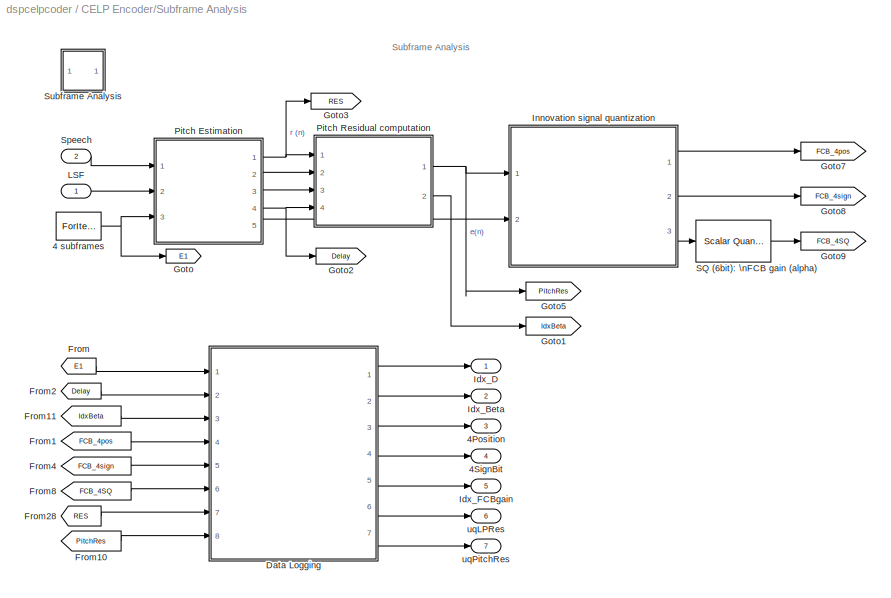
BLOCK [SubSystem] CELP Encoder/Subframe Analysis
  MinAlgLoopOccurrences = off
  Ports = [2, 7]
  PropExecContextAcrossSSBoundary = on
  RTWSystemCode = Auto
  TreatAsAtomicUnit = on
BLOCK [ForIterator] CELP Encoder/Subframe Analysis/4 subframes
  IterationLimit = 4
  Ports = [0, 1]
BLOCK [Outport] CELP Encoder/Subframe Analysis/4Position
  BusOutputAsStruct = off
  IconDisplay = Port number
  Port = 3
BLOCK [Outport] CELP Encoder/Subframe Analysis/4SignBit
  BusOutputAsStruct = off
  IconDisplay = Port number
  Port = 4
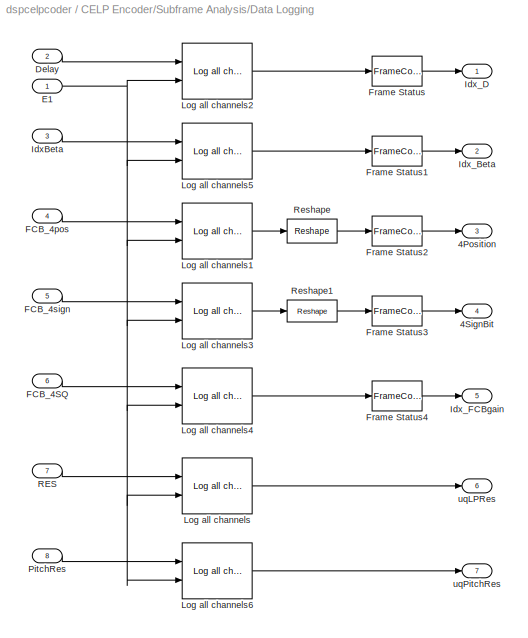
BLOCK [SubSystem] CELP Encoder/Subframe Analysis/Data Logging
  MinAlgLoopOccurrences = off
  Ports = [8, 7]
  PropExecContextAcrossSSBoundary = on
  RTWSystemCode = Auto
  TreatAsAtomicUnit = off
BLOCK [Outport] CELP Encoder/Subframe Analysis/Data Logging/4Position
  BusOutputAsStruct = off
  IconDisplay = Port number
  Port = 3
BLOCK [Outport] CELP Encoder/Subframe Analysis/Data Logging/4SignBit
  BusOutputAsStruct = off
  IconDisplay = Port number
  Port = 4
BLOCK [Inport] CELP Encoder/Subframe Analysis/Data Logging/Delay
  IconDisplay = Port number
  LatchInput = off
  Port = 2
BLOCK [Inport] CELP Encoder/Subframe Analysis/Data Logging/E1
  IconDisplay = Port number
  LatchInput = off
BLOCK [Inport] CELP Encoder/Subframe Analysis/Data Logging/FCB_4SQ
  IconDisplay = Port number
  LatchInput = off
  Port = 6
BLOCK [Inport] CELP Encoder/Subframe Analysis/Data Logging/FCB_4pos
  IconDisplay = Port number
  LatchInput = off
  Port = 4
BLOCK [Inport] CELP Encoder/Subframe Analysis/Data Logging/FCB_4sign
  IconDisplay = Port number
  LatchInput = off
  Port = 5
BLOCK [FrameConversion] CELP Encoder/Subframe Analysis/Data Logging/Frame Status
  OutFrame = Sample based
BLOCK [FrameConversion] CELP Encoder/Subframe Analysis/Data Logging/Frame Status1
  OutFrame = Sample based
BLOCK [FrameConversion] CELP Encoder/Subframe Analysis/Data Logging/Frame Status2
  OutFrame = Sample based
BLOCK [FrameConversion] CELP Encoder/Subframe Analysis/Data Logging/Frame Status3
  OutFrame = Sample based
BLOCK [FrameConversion] CELP Encoder/Subframe Analysis/Data Logging/Frame Status4
  OutFrame = Sample based
BLOCK [Inport] CELP Encoder/Subframe Analysis/Data Logging/IdxBeta
  IconDisplay = Port number
  LatchInput = off
  Port = 3
BLOCK [Outport] CELP Encoder/Subframe Analysis/Data Logging/Idx_Beta
  BusOutputAsStruct = off
  IconDisplay = Port number
  Port = 2
BLOCK [Outport] CELP Encoder/Subframe Analysis/Data Logging/Idx_D
  BusOutputAsStruct = off
  IconDisplay = Port number
BLOCK [Outport] CELP Encoder/Subframe Analysis/Data Logging/Idx_FCBgain
  BusOutputAsStruct = off
  IconDisplay = Port number
  Port = 5
BLOCK [Reference] CELP Encoder/Subframe Analysis/Data Logging/Log all channels  REF=dspcelplib/Log all channels
  Ports = [2, 1]
  ShowPortLabels = on
  SourceBlock = dspcelplib/Log all channels
  SourceType = Unknown
  dType = double
  numCol = 4
  numRow = 40
  outType = Matrix
BLOCK [Reference] CELP Encoder/Subframe Analysis/Data Logging/Log all channels1  REF=dspcelplib/Log all channels
  Ports = [2, 1]
  ShowPortLabels = on
  SourceBlock = dspcelplib/Log all channels
  SourceType = Unknown
  dType = int32
  numCol = 4
  numRow = 4
  outType = Matrix
BLOCK [Reference] CELP Encoder/Subframe Analysis/Data Logging/Log all channels2  REF=dspcelplib/Log all channels
  Ports = [2, 1]
  ShowPortLabels = on
  SourceBlock = dspcelplib/Log all channels
  SourceType = Unknown
  dType = int32
  numCol = 4
  numRow = 40
  outType = Row vector
BLOCK [Reference] CELP Encoder/Subframe Analysis/Data Logging/Log all channels3  REF=dspcelplib/Log all channels
  Ports = [2, 1]
  ShowPortLabels = on
  SourceBlock = dspcelplib/Log all channels
  SourceType = Unknown
  dType = int32
  numCol = 4
  numRow = 4
  outType = Matrix
BLOCK [Reference] CELP Encoder/Subframe Analysis/Data Logging/Log all channels4  REF=dspcelplib/Log all channels
  Ports = [2, 1]
  ShowPortLabels = on
  SourceBlock = dspcelplib/Log all channels
  SourceType = Unknown
  dType = int32
  numCol = 4
  numRow = 40
  outType = Row vector
BLOCK [Reference] CELP Encoder/Subframe Analysis/Data Logging/Log all channels5  REF=dspcelplib/Log all channels
  Ports = [2, 1]
  ShowPortLabels = on
  SourceBlock = dspcelplib/Log all channels
  SourceType = Unknown
  dType = int32
  numCol = 4
  numRow = 40
  outType = Row vector
BLOCK [Reference] CELP Encoder/Subframe Analysis/Data Logging/Log all channels6  REF=dspcelplib/Log all channels
  Ports = [2, 1]
  ShowPortLabels = on
  SourceBlock = dspcelplib/Log all channels
  SourceType = Unknown
  dType = double
  numCol = 4
  numRow = 40
  outType = Matrix
BLOCK [Inport] CELP Encoder/Subframe Analysis/Data Logging/PitchRes
  IconDisplay = Port number
  LatchInput = off
  Port = 8
BLOCK [Inport] CELP Encoder/Subframe Analysis/Data Logging/RES
  IconDisplay = Port number
  LatchInput = off
  Port = 7
BLOCK [Reference] CELP Encoder/Subframe Analysis/Data Logging/Reshape  REF=simulink/Math\nOperations/Reshape
  OutputDimensionality = Customize
  OutputDimensions = [1,16]
  Ports = [1, 1]
  SourceBlock = simulink/Math\nOperations/Reshape
  SourceType = Reshape
BLOCK [Reference] CELP Encoder/Subframe Analysis/Data Logging/Reshape1  REF=simulink/Math\nOperations/Reshape
  OutputDimensionality = Customize
  OutputDimensions = [1,16]
  Ports = [1, 1]
  SourceBlock = simulink/Math\nOperations/Reshape
  SourceType = Reshape
BLOCK [Outport] CELP Encoder/Subframe Analysis/Data Logging/uqLPRes
  BusOutputAsStruct = off
  IconDisplay = Port number
  Port = 6
BLOCK [Outport] CELP Encoder/Subframe Analysis/Data Logging/uqPitchRes
  BusOutputAsStruct = off
  IconDisplay = Port number
  Port = 7
BLOCK [From] CELP Encoder/Subframe Analysis/From
  CloseFcn = tagdialog Close
  DialogController = Simulink.DDGSource
  GotoTag = E1
BLOCK [From] CELP Encoder/Subframe Analysis/From1
  CloseFcn = tagdialog Close
  DialogController = Simulink.DDGSource
  GotoTag = FCB_4pos
BLOCK [From] CELP Encoder/Subframe Analysis/From10
  CloseFcn = tagdialog Close
  DialogController = Simulink.DDGSource
  GotoTag = PitchRes
BLOCK [From] CELP Encoder/Subframe Analysis/From11
  CloseFcn = tagdialog Close
  DialogController = Simulink.DDGSource
  GotoTag = IdxBeta
BLOCK [From] CELP Encoder/Subframe Analysis/From2
  CloseFcn = tagdialog Close
  DialogController = Simulink.DDGSource
  GotoTag = Delay
BLOCK [From] CELP Encoder/Subframe Analysis/From28
  CloseFcn = tagdialog Close
  DialogController = Simulink.DDGSource
  GotoTag = RES
BLOCK [From] CELP Encoder/Subframe Analysis/From4
  CloseFcn = tagdialog Close
  DialogController = Simulink.DDGSource
  GotoTag = FCB_4sign
BLOCK [From] CELP Encoder/Subframe Analysis/From8
  CloseFcn = tagdialog Close
  DialogController = Simulink.DDGSource
  GotoTag = FCB_4SQ
BLOCK [Goto] CELP Encoder/Subframe Analysis/Goto
  DialogController = Simulink.DDGSource
  GotoTag = E1
  TagVisibility = local
BLOCK [Goto] CELP Encoder/Subframe Analysis/Goto1
  DialogController = Simulink.DDGSource
  GotoTag = IdxBeta
  TagVisibility = local
BLOCK [Goto] CELP Encoder/Subframe Analysis/Goto2
  DialogController = Simulink.DDGSource
  GotoTag = Delay
  TagVisibility = local
BLOCK [Goto] CELP Encoder/Subframe Analysis/Goto3
  DialogController = Simulink.DDGSource
  GotoTag = RES
  TagVisibility = local
BLOCK [Goto] CELP Encoder/Subframe Analysis/Goto5
  DialogController = Simulink.DDGSource
  GotoTag = PitchRes
  TagVisibility = local
BLOCK [Goto] CELP Encoder/Subframe Analysis/Goto7
  DialogController = Simulink.DDGSource
  GotoTag = FCB_4pos
  TagVisibility = local
BLOCK [Goto] CELP Encoder/Subframe Analysis/Goto8
  DialogController = Simulink.DDGSource
  GotoTag = FCB_4sign
  TagVisibility = local
BLOCK [Goto] CELP Encoder/Subframe Analysis/Goto9
  DialogController = Simulink.DDGSource
  GotoTag = FCB_4SQ
  TagVisibility = local
BLOCK [Outport] CELP Encoder/Subframe Analysis/Idx_Beta
  BusOutputAsStruct = off
  IconDisplay = Port number
  Port = 2
BLOCK [Outport] CELP Encoder/Subframe Analysis/Idx_D
  BusOutputAsStruct = off
  IconDisplay = Port number
BLOCK [Outport] CELP Encoder/Subframe Analysis/Idx_FCBgain
  BusOutputAsStruct = off
  IconDisplay = Port number
  Port = 5
BLOCK [SubSystem] CELP Encoder/Subframe Analysis/Innovation signal quantization
  MaskDisplay = disp('Pitch\\nResidual\\nQuantizer');\nport_label('input',1,'PitchRes');\nport_label('input',2,'K');\nport_label('output',1,'4Position');\nport_label('output',2,'4SignBit');\nport_label('output',3,'FCBgain');
  MaskIconFrame = on
  MaskIconOpaque = on
  MaskIconRotate = none
  MaskIconUnits = autoscale
  MinAlgLoopOccurrences = off
  Ports = [2, 3]
  PropExecContextAcrossSSBoundary = on
  RTWSystemCode = Auto
  TreatAsAtomicUnit = off
BLOCK [Outport] CELP Encoder/Subframe Analysis/Innovation signal quantization/4Position
  BusOutputAsStruct = off
  IconDisplay = Port number
BLOCK [Outport] CELP Encoder/Subframe Analysis/Innovation signal quantization/4SignBit
  BusOutputAsStruct = off
  IconDisplay = Port number
  Port = 2
BLOCK [Abs] CELP Encoder/Subframe Analysis/Innovation signal quantization/Abs1
BLOCK [DataTypeConversion] CELP Encoder/Subframe Analysis/Innovation signal quantization/Data Type Conversion
  OutDataTypeMode = int32
BLOCK [DataTypeConversion] CELP Encoder/Subframe Analysis/Innovation signal quantization/Data Type Conversion1
  OutDataTypeMode = int32
BLOCK [SubSystem] CELP Encoder/Subframe Analysis/Innovation signal quantization/DocBlock
  CopyFcn = docblock('breaklink',gcb);
  DeleteFcn = docblock('close_document',gcb);
  MaskCallbackString = |
  MaskDescription = Use this block to save long descriptive text with the model.  Double-clicking the block will open an editor.
  MaskDisplay = plot([.8 0 0 1 1 .8 .8 1],[1 1 0 0 .8 1 .8 .8]);\ntext(.5,.5,'DOC','horizontalalignment','center');\n
  MaskEnableString = on,on
  MaskIconFrame = off
  MaskIconOpaque = on
  MaskIconRotate = none
  MaskIconUnits = autoscale
  MaskPromptString = RTW Embedded Coder Flag|Document Type
  MaskStyleString = edit,popup(Text|RTF|HTML)
  MaskTabNameString = ,
  MaskToolTipString = on,on
  MaskTunableValueString = off,off
  MaskType = DocBlock
  MaskValueString = |Text
  MaskVarAliasString = ,
  MaskVariables = ECoderFlag=&1;DocumentType=&2;
  MaskVisibilityString = on,off
  MinAlgLoopOccurrences = off
  OpenFcn = docblock('edit_document',gcb);
  Ports = []
  PreSaveFcn = docblock('save_document',gcb);
  PropExecContextAcrossSSBoundary = on
  RTWSystemCode = Auto
  TreatAsAtomicUnit = off
BLOCK [SubSystem] CELP Encoder/Subframe Analysis/Innovation signal quantization/DocBlock/EmptySubsystem
  MinAlgLoopOccurrences = off
  Ports = []
  PropExecContextAcrossSSBoundary = on
  RTWSystemCode = Auto
  TreatAsAtomicUnit = off
BLOCK [Outport] CELP Encoder/Subframe Analysis/Innovation signal quantization/FCBgain
  BusOutputAsStruct = off
  IconDisplay = Port number
  Port = 3
BLOCK [FrameConversion] CELP Encoder/Subframe Analysis/Innovation signal quantization/Frame Status
  OutFrame = Sample based
BLOCK [SubSystem] CELP Encoder/Subframe Analysis/Innovation signal quantization/Impulse Response
  MaskDisplay = disp('Impulse Response');\nport_label('input',1,'K');\nport_label('output',1,'h');
  MaskIconFrame = on
  MaskIconOpaque = on
  MaskIconRotate = none
  MaskIconUnits = autoscale
  MinAlgLoopOccurrences = off
  Ports = [1, 1]
  PropExecContextAcrossSSBoundary = on
  RTWSystemCode = Auto
  TreatAsAtomicUnit = off
BLOCK [Reference] CELP Encoder/Subframe Analysis/Innovation signal quantization/Impulse Response/DSP\nConstant  REF=dspsrcs4/DSP\nConstant
  FramebasedOutput = -inf
  InterpretAs1D = -inf
  Ports = [0, 1]
  SampleMode = Discrete
  ShowPortLabels = on
  SourceBlock = dspsrcs4/DSP\nConstant
  SourceType = DSP Constant
  Ts = -inf
  Value = [1;zeros(39,1)]
  additionalParams = off
  allowOverrides = on
  continuousOutput = Sample-based
  dataType = Inherit from 'Constant value'
  discreteOutput = Frame-based
  fracBitsMode = Best precision
  framePeriod = -1
  isSigned = on
  numFracBits = 15
  sampTime = 1
  udDataType = sfix(16)
  wordLen = 16
BLOCK [SubSystem] CELP Encoder/Subframe Analysis/Innovation signal quantization/Impulse Response/For Iterator\nSubsystem2
  MaskDisplay = disp('Zero State\\nIIR Lattice\\nFilter');\nport_label('input',1,'In');\nport_label('input',2,'K');\nport_label('output',1,'Out');
  MaskIconFrame = on
  MaskIconOpaque = on
  MaskIconRotate = none
  MaskIconUnits = autoscale
  MinAlgLoopOccurrences = off
  Ports = [2, 1]
  PropExecContextAcrossSSBoundary = on
  RTWSystemCode = Auto
  TreatAsAtomicUnit = on
BLOCK [ForIterator] CELP Encoder/Subframe Analysis/Innovation signal quantization/Impulse Response/For Iterator\nSubsystem2/For Iterator
  IterationLimit = 1
  Ports = []
  ResetStates = reset
  ShowIterationPort = off
BLOCK [Inport] CELP Encoder/Subframe Analysis/Innovation signal quantization/Impulse Response/For Iterator\nSubsystem2/K
  IconDisplay = Port number
  LatchInput = off
  Port = 2
BLOCK [Inport] CELP Encoder/Subframe Analysis/Innovation signal quantization/Impulse Response/For Iterator\nSubsystem2/SigIn2
  IconDisplay = Port number
  LatchInput = off
BLOCK [Outport] CELP Encoder/Subframe Analysis/Innovation signal quantization/Impulse Response/For Iterator\nSubsystem2/SigOut2
  BusOutputAsStruct = off
  IconDisplay = Port number
BLOCK [Reference] CELP Encoder/Subframe Analysis/Innovation signal quantization/Impulse Response/For Iterator\nSubsystem2/Time-Varying \nSynthesis Filter\n1//A(z).  REF=dsparch4/Digital Filter
  AllPoleFiltStruct = Lattice AR
  BiQuadCoeffs = [1 0.3 0.4 1 0.1 0.2]
  CoeffSource = Input port(s)
  DenCoeffs = [1 0.1]
  DialogController = dspDDGCreate
  DialogControllerArgs = DataTag18
  FIRFiltStruct = Direct form
  FiltPerSampPopup = One filter per frame
  IC = 0
  ICden = 0
  ICnum = 0
  IIRFiltStruct = Direct form II transposed
  LatticeCoeffs = [0.2 0.4]
  NumCoeffs = [1 -.95]
  Ports = [2, 1]
  ScaleValues = 1
  SourceBlock = dsparch4/Digital Filter
  SourceType = Digital Filter
  TypePopup = IIR (all poles)
  accumFracLength = 30
  accumMode = Same as product output
  accumWordLength = 40
  additionalParams = off
  allowOverrides = on
  denIgnore = off
  firstCoeffFracLength = 15
  firstCoeffMode = Same as input
  firstCoeffWordLength = 16
  memoryFracLength = 14
  memoryMode = Same as input
  memoryWordLength = 16
  outputFracLength = 15
  outputMode = Same as input
  outputWordLength = 16
  overflowMode = off
  prodOutputFracLength = 30
  prodOutputMode = Same as input
  prodOutputWordLength = 32
  roundingMode = Floor
  scaleValueFracLength = 14
  secondCoeffFracLength = 15
  secondCoeffMode = Same as numerator
  secondCoeffWordLength = 16
  showAcc = off
  showCoeff = off
  showMem = off
  showMpy = off
  showOut = off
  stageIOMode = Same as input
  stageIOWordLength = 16
  stageInFracLength = 15
  stageOutFracLength = 15
  tapSumFracLength = 30
  tapSumMode = Same as input
  tapSumWordLength = 32
  thirdCoeffFracLength = 15
  thirdCoeffMode = Same as input
  thirdCoeffWordLength = 16
BLOCK [Inport] CELP Encoder/Subframe Analysis/Innovation signal quantization/Impulse Response/In1
  IconDisplay = Port number
  LatchInput = off
BLOCK [Outport] CELP Encoder/Subframe Analysis/Innovation signal quantization/Impulse Response/Out1
  BusOutputAsStruct = off
  IconDisplay = Port number
BLOCK [Inport] CELP Encoder/Subframe Analysis/Innovation signal quantization/K
  IconDisplay = Port number
  LatchInput = off
  Port = 2
BLOCK [Reference] CELP Encoder/Subframe Analysis/Innovation signal quantization/Multiport\nSelector  REF=dspindex/Multiport\nSelector
  Ports = [1, 3]
  SourceBlock = dspindex/Multiport\nSelector
  SourceType = Multiport Selector
  idxCellArray = { 1:4,5:8,9 }
  idxErrMode = Generate Error
  rowsOrCols = Rows
BLOCK [Inport] CELP Encoder/Subframe Analysis/Innovation signal quantization/PitchRes
  IconDisplay = Port number
  LatchInput = off
BLOCK [SubSystem] CELP Encoder/Subframe Analysis/Innovation signal quantization/Searching for FCB pulse \npositions and FCB gain
  MinAlgLoopOccurrences = off
  Ports = [4, 1]
  PropExecContextAcrossSSBoundary = on
  RTWSystemCode = Auto
  TreatAsAtomicUnit = on
BLOCK [Bias] CELP Encoder/Subframe Analysis/Innovation signal quantization/Searching for FCB pulse \npositions and FCB gain/1-based to \n0-based
  Bias = -1
  SaturateOnIntegerOverflow = off
BLOCK [SubSystem] CELP Encoder/Subframe Analysis/Innovation signal quantization/Searching for FCB pulse \npositions and FCB gain/Computation of \nError and Gain
  MinAlgLoopOccurrences = off
  Ports = [4, 2]
  PropExecContextAcrossSSBoundary = on
  RTWSystemCode = Auto
  TreatAsAtomicUnit = off
BLOCK [Inport] CELP Encoder/Subframe Analysis/Innovation signal quantization/Searching for FCB pulse \npositions and FCB gain/Computation of \nError and Gain/4Pos
  IconDisplay = Port number
  LatchInput = off
  Port = 2
BLOCK [Inport] CELP Encoder/Subframe Analysis/Innovation signal quantization/Searching for FCB pulse \npositions and FCB gain/Computation of \nError and Gain/4Val
  IconDisplay = Port number
  LatchInput = off
BLOCK [Reference] CELP Encoder/Subframe Analysis/Innovation signal quantization/Searching for FCB pulse \npositions and FCB gain/Computation of \nError and Gain/Dot Product  REF=simulink/Math\nOperations/Dot Product
  DoSatur = on
  InputSameDT = off
  LockScale = off
  OutDataType = sfix(16)
  OutScaling = 2^-10
  OutputDataTypeScalingMode = Inherit via internal rule
  Ports = [2, 1]
  RndMeth = Floor
  SourceBlock = simulink/Math\nOperations/Dot Product
  SourceType = Dot Product
BLOCK [Reference] CELP Encoder/Subframe Analysis/Innovation signal quantization/Searching for FCB pulse \npositions and FCB gain/Computation of \nError and Gain/Dot Product1  REF=simulink/Math\nOperations/Dot Product
  DoSatur = on
  InputSameDT = off
  LockScale = off
  OutDataType = sfix(16)
  OutScaling = 2^-10
  OutputDataTypeScalingMode = Inherit via internal rule
  Ports = [2, 1]
  RndMeth = Floor
  SourceBlock = simulink/Math\nOperations/Dot Product
  SourceType = Dot Product
BLOCK [Outport] CELP Encoder/Subframe Analysis/Innovation signal quantization/Searching for FCB pulse \npositions and FCB gain/Computation of \nError and Gain/Err
  BusOutputAsStruct = off
  IconDisplay = Port number
BLOCK [FrameConversion] CELP Encoder/Subframe Analysis/Innovation signal quantization/Searching for FCB pulse \npositions and FCB gain/Computation of \nError and Gain/Frame Status
  OutFrame = Frame based
BLOCK [FrameConversion] CELP Encoder/Subframe Analysis/Innovation signal quantization/Searching for FCB pulse \npositions and FCB gain/Computation of \nError and Gain/Frame Status1
  OutFrame = Frame based
BLOCK [FrameConversion] CELP Encoder/Subframe Analysis/Innovation signal quantization/Searching for FCB pulse \npositions and FCB gain/Computation of \nError and Gain/Frame Status2
  OutFrame = Frame based
BLOCK [Outport] CELP Encoder/Subframe Analysis/Innovation signal quantization/Searching for FCB pulse \npositions and FCB gain/Computation of \nError and Gain/G
  BusOutputAsStruct = off
  IconDisplay = Port number
  Port = 2
BLOCK [Math] CELP Encoder/Subframe Analysis/Innovation signal quantization/Searching for FCB pulse \npositions and FCB gain/Computation of \nError and Gain/Math\nFunction2
  Operator = magnitude^2
  Ports = [1, 1]
BLOCK [Product] CELP Encoder/Subframe Analysis/Innovation signal quantization/Searching for FCB pulse \npositions and FCB gain/Computation of \nError and Gain/Product1
  InputSameDT = off
  Inputs = */
  Ports = [2, 1]
  RndMeth = Floor
BLOCK [Product] CELP Encoder/Subframe Analysis/Innovation signal quantization/Searching for FCB pulse \npositions and FCB gain/Computation of \nError and Gain/Product4
  InputSameDT = off
  Inputs = */
  Ports = [2, 1]
  RndMeth = Floor
BLOCK [Reference] CELP Encoder/Subframe Analysis/Innovation signal quantization/Searching for FCB pulse \npositions and FCB gain/Computation of \nError and Gain/Sparse\nConvolution  REF=dspcelplib/Sparse\nConvolution
  Ports = [3, 1]
  SourceBlock = dspcelplib/Sparse\nConvolution
  SourceType = Sparse Convolution
BLOCK [Inport] CELP Encoder/Subframe Analysis/Innovation signal quantization/Searching for FCB pulse \npositions and FCB gain/Computation of \nError and Gain/e_n
  IconDisplay = Port number
  LatchInput = off
  Port = 3
BLOCK [Inport] CELP Encoder/Subframe Analysis/Innovation signal quantization/Searching for FCB pulse \npositions and FCB gain/Computation of \nError and Gain/h
  IconDisplay = Port number
  LatchInput = off
  Port = 4
BLOCK [ForIterator] CELP Encoder/Subframe Analysis/Innovation signal quantization/Searching for FCB pulse \npositions and FCB gain/For Iterator
  IterationLimit = 37
  Ports = [0, 1]
  ResetStates = reset
BLOCK [Inport] CELP Encoder/Subframe Analysis/Innovation signal quantization/Searching for FCB pulse \npositions and FCB gain/Idx
  IconDisplay = Port number
  LatchInput = off
  Port = 2
BLOCK [SubSystem] CELP Encoder/Subframe Analysis/Innovation signal quantization/Searching for FCB pulse \npositions and FCB gain/Optimal Features
  MinAlgLoopOccurrences = off
  Ports = [4, 1]
  PropExecContextAcrossSSBoundary = on
  RTWSystemCode = Auto
  TreatAsAtomicUnit = off
BLOCK [DataTypeConversion] CELP Encoder/Subframe Analysis/Innovation signal quantization/Searching for FCB pulse \npositions and FCB gain/Optimal Features/Data Type Conversion
  OutDataTypeMode = double
BLOCK [DataTypeConversion] CELP Encoder/Subframe Analysis/Innovation signal quantization/Searching for FCB pulse \npositions and FCB gain/Optimal Features/Data Type Conversion1
  OutDataTypeMode = double
BLOCK [Reference] CELP Encoder/Subframe Analysis/Innovation signal quantization/Searching for FCB pulse \npositions and FCB gain/Optimal Features/Delay1  REF=dspsigops/Delay
  Ports = [1, 1]
  SourceBlock = dspsigops/Delay
  SourceType = Delay
  delay = 1
  dif_ic_for_ch = off
  dif_ic_for_dly = off
  dly_unit = Frames
  ic = 0
  ic_detail = on
  reset_popup = None
BLOCK [Inport] CELP Encoder/Subframe Analysis/Innovation signal quantization/Searching for FCB pulse \npositions and FCB gain/Optimal Features/Err
  IconDisplay = Port number
  LatchInput = off
  Port = 2
BLOCK [Reference] CELP Encoder/Subframe Analysis/Innovation signal quantization/Searching for FCB pulse \npositions and FCB gain/Optimal Features/Feature \nConcatenation  REF=simulink/Math\nOperations/Matrix\nConcatenation
  Ports = [3, 1]
  SourceBlock = simulink/Math\nOperations/Matrix\nConcatenation
  SourceType = Matrix Concatenation
  catMethod = Vertical
  numInports = 3
BLOCK [Outport] CELP Encoder/Subframe Analysis/Innovation signal quantization/Searching for FCB pulse \npositions and FCB gain/Optimal Features/Features
  BusOutputAsStruct = off
  IconDisplay = Port number
BLOCK [Inport] CELP Encoder/Subframe Analysis/Innovation signal quantization/Searching for FCB pulse \npositions and FCB gain/Optimal Features/G
  IconDisplay = Port number
  LatchInput = off
  Port = 3
BLOCK [SubSystem] CELP Encoder/Subframe Analysis/Innovation signal quantization/Searching for FCB pulse \npositions and FCB gain/Optimal Features/Local maxima\ndetector
  MinAlgLoopOccurrences = off
  Ports = [1, 1]
  PropExecContextAcrossSSBoundary = on
  RTWSystemCode = Auto
  TreatAsAtomicUnit = off
BLOCK [Inport] CELP Encoder/Subframe Analysis/Innovation signal quantization/Searching for FCB pulse \npositions and FCB gain/Optimal Features/Local maxima\ndetector/Err
  IconDisplay = Port number
  LatchInput = off
BLOCK [Outport] CELP Encoder/Subframe Analysis/Innovation signal quantization/Searching for FCB pulse \npositions and FCB gain/Optimal Features/Local maxima\ndetector/Flag
  BusOutputAsStruct = off
  IconDisplay = Port number
BLOCK [RelationalOperator] CELP Encoder/Subframe Analysis/Innovation signal quantization/Searching for FCB pulse \npositions and FCB gain/Optimal Features/Local maxima\ndetector/Relational\nOperator1
  LogicOutDataTypeMode = Boolean
  Operator = ==
BLOCK [Reference] CELP Encoder/Subframe Analysis/Innovation signal quantization/Searching for FCB pulse \npositions and FCB gain/Optimal Features/Local maxima\ndetector/Running\nMaximum  REF=dspstat3/Maximum
  DialogController = dspDDGCreate
  DialogControllerArgs = DataTag19
  Ports = [1, 1]
  SourceBlock = dspstat3/Maximum
  SourceType = Maximum
  accumFracLength = 30
  accumMode = Same as input
  accumWordLength = 32
  additionalParams = off
  allowOverrides = on
  fcn = Running
  overflowMode = off
  prodOutputFracLength = 30
  prodOutputMode = Same as input
  prodOutputWordLength = 32
  reset = None
  roundingMode = Floor
BLOCK [Inport] CELP Encoder/Subframe Analysis/Innovation signal quantization/Searching for FCB pulse \npositions and FCB gain/Optimal Features/Pos
  IconDisplay = Port number
  LatchInput = off
  Port = 4
BLOCK [Inport] CELP Encoder/Subframe Analysis/Innovation signal quantization/Searching for FCB pulse \npositions and FCB gain/Optimal Features/SignBit
  IconDisplay = Port number
  LatchInput = off
BLOCK [Switch] CELP Encoder/Subframe Analysis/Innovation signal quantization/Searching for FCB pulse \npositions and FCB gain/Optimal Features/Switch
  Criteria = u2 ~= 0
  SaturateOnIntegerOverflow = off
BLOCK [SubSystem] CELP Encoder/Subframe Analysis/Innovation signal quantization/Searching for FCB pulse \npositions and FCB gain/Partial decomposition of \nPitch Residual
  MinAlgLoopOccurrences = off
  Ports = [3, 2]
  PropExecContextAcrossSSBoundary = on
  RTWSystemCode = Auto
  TreatAsAtomicUnit = off
BLOCK [Outport] CELP Encoder/Subframe Analysis/Innovation signal quantization/Searching for FCB pulse \npositions and FCB gain/Partial decomposition of \nPitch Residual/4Idx
  BusOutputAsStruct = off
  IconDisplay = Port number
  Port = 2
BLOCK [Outport] CELP Encoder/Subframe Analysis/Innovation signal quantization/Searching for FCB pulse \npositions and FCB gain/Partial decomposition of \nPitch Residual/4Val
  BusOutputAsStruct = off
  IconDisplay = Port number
BLOCK [Inport] CELP Encoder/Subframe Analysis/Innovation signal quantization/Searching for FCB pulse \npositions and FCB gain/Partial decomposition of \nPitch Residual/Control
  IconDisplay = Port number
  LatchInput = off
  Port = 3
BLOCK [DataTypeConversion] CELP Encoder/Subframe Analysis/Innovation signal quantization/Searching for FCB pulse \npositions and FCB gain/Partial decomposition of \nPitch Residual/Data Type Conversion
  OutDataTypeMode = double
BLOCK [DataTypeConversion] CELP Encoder/Subframe Analysis/Innovation signal quantization/Searching for FCB pulse \npositions and FCB gain/Partial decomposition of \nPitch Residual/Data Type Conversion1
  OutDataTypeMode = int32
BLOCK [Inport] CELP Encoder/Subframe Analysis/Innovation signal quantization/Searching for FCB pulse \npositions and FCB gain/Partial decomposition of \nPitch Residual/Idx
  IconDisplay = Port number
  LatchInput = off
  Port = 2
BLOCK [Inport] CELP Encoder/Subframe Analysis/Innovation signal quantization/Searching for FCB pulse \npositions and FCB gain/Partial decomposition of \nPitch Residual/PitchRes
  IconDisplay = Port number
  LatchInput = off
BLOCK [Reference] CELP Encoder/Subframe Analysis/Innovation signal quantization/Searching for FCB pulse \npositions and FCB gain/Partial decomposition of \nPitch Residual/Select Rows\nI, I+1, ...,I+3  REF=dspcelplib/Select Rows
  Ports = [2, 1]
  ShowPortLabels = on
  SourceBlock = dspcelplib/Select Rows
  SourceType = Select Rows
  numRows = 4
BLOCK [Reference] CELP Encoder/Subframe Analysis/Innovation signal quantization/Searching for FCB pulse \npositions and FCB gain/Partial decomposition of \nPitch Residual/Sort  REF=dspstat3/Sort
  DialogController = dspDDGCreate
  DialogControllerArgs = DataTag20
  Ports = [1, 1]
  SourceBlock = dspstat3/Sort
  SourceType = Sort
  accumFracLength = 30
  accumMode = Same as input
  accumWordLength = 32
  additionalParams = off
  allowOverrides = on
  dir = Ascending
  otype = Value
  overflowMode = off
  prodOutputFracLength = 30
  prodOutputMode = Same as input
  prodOutputWordLength = 32
  roundingMode = Floor
  sortAlg = Quick sort
BLOCK [Reference] CELP Encoder/Subframe Analysis/Innovation signal quantization/Searching for FCB pulse \npositions and FCB gain/Partial decomposition of \nPitch Residual/Variable\nSelector1  REF=dspindex/Variable\nSelector
  Elements = [1 3]
  IdxMode = Variable
  Ports = [2, 1]
  ShowPortLabels = on
  SourceBlock = dspindex/Variable\nSelector
  SourceType = Variable Selector
  ZerOneIdxMode = One-based
  errmode = Generate Error
  rowsOrCols = Rows
BLOCK [Inport] CELP Encoder/Subframe Analysis/Innovation signal quantization/Searching for FCB pulse \npositions and FCB gain/PitchRes
  IconDisplay = Port number
  LatchInput = off
BLOCK [SubSystem] CELP Encoder/Subframe Analysis/Innovation signal quantization/Searching for FCB pulse \npositions and FCB gain/Searching for FCB features
  CopyFcn = docblock('breaklink',gcb);
  DeleteFcn = docblock('close_document',gcb);
  MaskCallbackString = |
  MaskDescription = Use this block to save long descriptive text with the model.  Double-clicking the block will open an editor.
  MaskDisplay = plot([.8 0 0 1 1 .8 .8 1],[1 1 0 0 .8 1 .8 .8]);\ntext(.5,.5,'DOC','horizontalalignment','center');\n
  MaskEnableString = on,on
  MaskIconFrame = off
  MaskIconOpaque = on
  MaskIconRotate = none
  MaskIconUnits = autoscale
  MaskPromptString = RTW Embedded Coder Flag|Document Type
  MaskStyleString = edit,popup(Text|RTF|HTML)
  MaskTabNameString = ,
  MaskToolTipString = on,on
  MaskTunableValueString = off,off
  MaskType = DocBlock
  MaskValueString = |Text
  MaskVarAliasString = ,
  MaskVariables = ECoderFlag=&1;DocumentType=&2;
  MaskVisibilityString = on,off
  MinAlgLoopOccurrences = off
  OpenFcn = docblock('edit_document',gcb);
  Ports = []
  PreSaveFcn = docblock('save_document',gcb);
  PropExecContextAcrossSSBoundary = on
  RTWSystemCode = Auto
  TreatAsAtomicUnit = off
BLOCK [SubSystem] CELP Encoder/Subframe Analysis/Innovation signal quantization/Searching for FCB pulse \npositions and FCB gain/Searching for FCB features/EmptySubsystem
  MinAlgLoopOccurrences = off
  Ports = []
  PropExecContextAcrossSSBoundary = on
  RTWSystemCode = Auto
  TreatAsAtomicUnit = off
BLOCK [SubSystem] CELP Encoder/Subframe Analysis/Innovation signal quantization/Searching for FCB pulse \npositions and FCB gain/Signal to sign bit
  MinAlgLoopOccurrences = off
  Ports = [1, 1]
  PropExecContextAcrossSSBoundary = on
  RTWSystemCode = Auto
  TreatAsAtomicUnit = off
BLOCK [Constant] CELP Encoder/Subframe Analysis/Innovation signal quantization/Searching for FCB pulse \npositions and FCB gain/Signal to sign bit/Constant
  OutDataTypeMode = int32
  Value = +1
BLOCK [Constant] CELP Encoder/Subframe Analysis/Innovation signal quantization/Searching for FCB pulse \npositions and FCB gain/Signal to sign bit/Constant1
  OutDataTypeMode = int32
  Value = -1
BLOCK [Inport] CELP Encoder/Subframe Analysis/Innovation signal quantization/Searching for FCB pulse \npositions and FCB gain/Signal to sign bit/Sig
  IconDisplay = Port number
  LatchInput = off
BLOCK [Outport] CELP Encoder/Subframe Analysis/Innovation signal quantization/Searching for FCB pulse \npositions and FCB gain/Signal to sign bit/SignBit
  BusOutputAsStruct = off
  IconDisplay = Port number
BLOCK [Switch] CELP Encoder/Subframe Analysis/Innovation signal quantization/Searching for FCB pulse \npositions and FCB gain/Signal to sign bit/Switch
  InputSameDT = off
  SaturateOnIntegerOverflow = off
BLOCK [Inport] CELP Encoder/Subframe Analysis/Innovation signal quantization/Searching for FCB pulse \npositions and FCB gain/e_n
  IconDisplay = Port number
  LatchInput = off
  Port = 3
BLOCK [Inport] CELP Encoder/Subframe Analysis/Innovation signal quantization/Searching for FCB pulse \npositions and FCB gain/h
  IconDisplay = Port number
  LatchInput = off
  Port = 4
BLOCK [Outport] CELP Encoder/Subframe Analysis/Innovation signal quantization/Searching for FCB pulse \npositions and FCB gain/pos_sign_g
  BusOutputAsStruct = off
  IconDisplay = Port number
BLOCK [Reference] CELP Encoder/Subframe Analysis/Innovation signal quantization/Sort  REF=dspstat3/Sort
  DialogController = dspDDGCreate
  DialogControllerArgs = DataTag21
  Ports = [1, 1]
  SourceBlock = dspstat3/Sort
  SourceType = Sort
  accumFracLength = 30
  accumMode = Same as input
  accumWordLength = 32
  additionalParams = off
  allowOverrides = on
  dir = Descending
  otype = Index
  overflowMode = off
  prodOutputFracLength = 30
  prodOutputMode = Same as input
  prodOutputWordLength = 32
  roundingMode = Floor
  sortAlg = Quick sort
BLOCK [SubSystem] CELP Encoder/Subframe Analysis/Innovation signal quantization/filter
  MaskDisplay = disp('Zero State\\nIIR Lattice\\nFilter');\nport_label('input',1,'In');\nport_label('input',2,'K');\nport_label('output',1,'Out');
  MaskIconFrame = on
  MaskIconOpaque = on
  MaskIconRotate = none
  MaskIconUnits = autoscale
  MinAlgLoopOccurrences = off
  Ports = [2, 1]
  PropExecContextAcrossSSBoundary = on
  RTWSystemCode = Auto
  TreatAsAtomicUnit = on
BLOCK [SubSystem] CELP Encoder/Subframe Analysis/Innovation signal quantization/filter/DocBlock
  CopyFcn = docblock('breaklink',gcb);
  DeleteFcn = docblock('close_document',gcb);
  MaskCallbackString = |
  MaskDescription = Use this block to save long descriptive text with the model.  Double-clicking the block will open an editor.
  MaskDisplay = plot([.8 0 0 1 1 .8 .8 1],[1 1 0 0 .8 1 .8 .8]);\ntext(.5,.5,'DOC','horizontalalignment','center');\n
  MaskEnableString = on,on
  MaskIconFrame = off
  MaskIconOpaque = on
  MaskIconRotate = none
  MaskIconUnits = autoscale
  MaskPromptString = RTW Embedded Coder Flag|Document Type
  MaskStyleString = edit,popup(Text|RTF|HTML)
  MaskTabNameString = ,
  MaskToolTipString = on,on
  MaskTunableValueString = off,off
  MaskType = DocBlock
  MaskValueString = |Text
  MaskVarAliasString = ,
  MaskVariables = ECoderFlag=&1;DocumentType=&2;
  MaskVisibilityString = on,off
  MinAlgLoopOccurrences = off
  OpenFcn = docblock('edit_document',gcb);
  Ports = []
  PreSaveFcn = docblock('save_document',gcb);
  PropExecContextAcrossSSBoundary = on
  RTWSystemCode = Auto
  TreatAsAtomicUnit = off
BLOCK [SubSystem] CELP Encoder/Subframe Analysis/Innovation signal quantization/filter/DocBlock/EmptySubsystem
  MinAlgLoopOccurrences = off
  Ports = []
  PropExecContextAcrossSSBoundary = on
  RTWSystemCode = Auto
  TreatAsAtomicUnit = off
BLOCK [ForIterator] CELP Encoder/Subframe Analysis/Innovation signal quantization/filter/For Iterator
  IterationLimit = 1
  Ports = []
  ResetStates = reset
  ShowIterationPort = off
BLOCK [Inport] CELP Encoder/Subframe Analysis/Innovation signal quantization/filter/K
  IconDisplay = Port number
  LatchInput = off
  Port = 2
BLOCK [Inport] CELP Encoder/Subframe Analysis/Innovation signal quantization/filter/SigIn2
  IconDisplay = Port number
  LatchInput = off
BLOCK [Outport] CELP Encoder/Subframe Analysis/Innovation signal quantization/filter/SigOut2
  BusOutputAsStruct = off
  IconDisplay = Port number
BLOCK [Reference] CELP Encoder/Subframe Analysis/Innovation signal quantization/filter/Time-Varying \nSynthesis Filter\n1//A(z).  REF=dsparch4/Digital Filter
  AllPoleFiltStruct = Lattice AR
  BiQuadCoeffs = [1 0.3 0.4 1 0.1 0.2]
  CoeffSource = Input port(s)
  DenCoeffs = [1 0.1]
  DialogController = dspDDGCreate
  DialogControllerArgs = DataTag22
  FIRFiltStruct = Direct form
  FiltPerSampPopup = One filter per frame
  IC = 0
  ICden = 0
  ICnum = 0
  IIRFiltStruct = Direct form II transposed
  LatticeCoeffs = [0.2 0.4]
  NumCoeffs = [1 -.95]
  Ports = [2, 1]
  ScaleValues = 1
  SourceBlock = dsparch4/Digital Filter
  SourceType = Digital Filter
  TypePopup = IIR (all poles)
  accumFracLength = 30
  accumMode = Same as product output
  accumWordLength = 40
  additionalParams = off
  allowOverrides = on
  denIgnore = off
  firstCoeffFracLength = 15
  firstCoeffMode = Same as input
  firstCoeffWordLength = 16
  memoryFracLength = 14
  memoryMode = Same as input
  memoryWordLength = 16
  outputFracLength = 15
  outputMode = Same as input
  outputWordLength = 16
  overflowMode = off
  prodOutputFracLength = 30
  prodOutputMode = Same as input
  prodOutputWordLength = 32
  roundingMode = Floor
  scaleValueFracLength = 14
  secondCoeffFracLength = 15
  secondCoeffMode = Same as numerator
  secondCoeffWordLength = 16
  showAcc = off
  showCoeff = off
  showMem = off
  showMpy = off
  showOut = off
  stageIOMode = Same as input
  stageIOWordLength = 16
  stageInFracLength = 15
  stageOutFracLength = 15
  tapSumFracLength = 30
  tapSumMode = Same as input
  tapSumWordLength = 32
  thirdCoeffFracLength = 15
  thirdCoeffMode = Same as input
  thirdCoeffWordLength = 16
BLOCK [Inport] CELP Encoder/Subframe Analysis/LSF
  IconDisplay = Port number
  LatchInput = off
BLOCK [SubSystem] CELP Encoder/Subframe Analysis/Pitch Estimation
  MinAlgLoopOccurrences = off
  Ports = [3, 5]
  PropExecContextAcrossSSBoundary = on
  RTWSystemCode = Auto
  TreatAsAtomicUnit = off
BLOCK [Outport] CELP Encoder/Subframe Analysis/Pitch Estimation/ACB
  BusOutputAsStruct = off
  IconDisplay = Port number
  Port = 2
BLOCK [Outport] CELP Encoder/Subframe Analysis/Pitch Estimation/Beta
  BusOutputAsStruct = off
  IconDisplay = Port number
  Port = 3
BLOCK [Outport] CELP Encoder/Subframe Analysis/Pitch Estimation/Delay
  BusOutputAsStruct = off
  IconDisplay = Port number
  Port = 4
BLOCK [FrameConversion] CELP Encoder/Subframe Analysis/Pitch Estimation/Frame Status
  OutFrame = Sample based
BLOCK [Inport] CELP Encoder/Subframe Analysis/Pitch Estimation/Idx
  IconDisplay = Port number
  LatchInput = off
  Port = 3
BLOCK [Outport] CELP Encoder/Subframe Analysis/Pitch Estimation/K
  BusOutputAsStruct = off
  IconDisplay = Port number
  Port = 5
BLOCK [Reference] CELP Encoder/Subframe Analysis/Pitch Estimation/LPC Residual\nBuffer  REF=dspbuff3/Buffer
  N = 128+40+20-1
  Ports = [1, 1]
  SourceBlock = dspbuff3/Buffer
  SourceType = Buffer
  V = 187-40
  ic = 0
BLOCK [SubSystem] CELP Encoder/Subframe Analysis/Pitch Estimation/LPC Residual\nCalculation
  MinAlgLoopOccurrences = off
  Ports = [2, 2]
  PropExecContextAcrossSSBoundary = on
  RTWSystemCode = Auto
  TreatAsAtomicUnit = off
BLOCK [Outport] CELP Encoder/Subframe Analysis/Pitch Estimation/LPC Residual\nCalculation/K
  BusOutputAsStruct = off
  IconDisplay = Port number
  Port = 2
BLOCK [Reference] CELP Encoder/Subframe Analysis/Pitch Estimation/LPC Residual\nCalculation/LPC to//from RC  REF=dsplp/LPC to//from RC
  Ports = [1, 1]
  SourceBlock = dsplp/LPC to//from RC
  SourceType = LPC to/from RC
  conversion = LPC to RC
  error = Replace it with 1
  perr = off
  stability = off
BLOCK [Inport] CELP Encoder/Subframe Analysis/Pitch Estimation/LPC Residual\nCalculation/LSF
  IconDisplay = Port number
  LatchInput = off
  Port = 2
BLOCK [Reference] CELP Encoder/Subframe Analysis/Pitch Estimation/LPC Residual\nCalculation/LSF//LSP to LPC\nConversion  REF=dsplp/LSF//LSP to LPC\nConversion
  Ports = [1, 1]
  SourceBlock = dsplp/LSF//LSP to LPC\nConversion
  SourceType = LSF/LSP to LPC Conversion
  input = LSF in range (0 pi)
BLOCK [Outport] CELP Encoder/Subframe Analysis/Pitch Estimation/LPC Residual\nCalculation/Residual
  BusOutputAsStruct = off
  IconDisplay = Port number
BLOCK [Inport] CELP Encoder/Subframe Analysis/Pitch Estimation/LPC Residual\nCalculation/Speech
  IconDisplay = Port number
  LatchInput = off
BLOCK [Reference] CELP Encoder/Subframe Analysis/Pitch Estimation/LPC Residual\nCalculation/Time-Varying \nAnalysis Filter\nA(z)  REF=dsparch4/Digital Filter
  AllPoleFiltStruct = Direct form
  BiQuadCoeffs = [1 0.3 0.4 1 0.1 0.2]
  CoeffSource = Input port(s)
  DenCoeffs = [1 0.1]
  DialogController = dspDDGCreate
  DialogControllerArgs = DataTag23
  FIRFiltStruct = Lattice MA
  FiltPerSampPopup = One filter per frame
  IC = 0
  ICden = 0
  ICnum = 0
  IIRFiltStruct = Direct form II transposed
  LatticeCoeffs = [0.2 0.4]
  LockScale = off
  NumCoeffs = [1 -.95]
  Ports = [2, 1]
  ScaleValues = 1
  SourceBlock = dsparch4/Digital Filter
  SourceType = Digital Filter
  TypePopup = FIR (all zeros)
  accumFracLength = 30
  accumMode = Same as product output
  accumWordLength = 40
  additionalParams = off
  allowOverrides = on
  denIgnore = on
  firstCoeffFracLength = 15
  firstCoeffMode = Same as input
  firstCoeffWordLength = 16
  memoryFracLength = 14
  memoryMode = Same as input
  memoryWordLength = 16
  outputFracLength = 15
  outputMode = Same as input
  outputWordLength = 16
  overflowMode = off
  prodOutputFracLength = 30
  prodOutputMode = Same as input
  prodOutputWordLength = 32
  roundingMode = Floor
  scaleValueFracLength = 14
  secondCoeffFracLength = 15
  secondCoeffMode = Same as numerator
  secondCoeffWordLength = 16
  showAcc = off
  showCoeff = off
  showMem = off
  showMpy = off
  showOut = off
  stageIOMode = Same as input
  stageIOWordLength = 16
  stageInFracLength = 15
  stageOutFracLength = 15
  tapSumFracLength = 30
  tapSumMode = Same as input
  tapSumWordLength = 32
  thirdCoeffFracLength = 15
  thirdCoeffMode = Same as input
  thirdCoeffWordLength = 16
BLOCK [Inport] CELP Encoder/Subframe Analysis/Pitch Estimation/LSF
  IconDisplay = Port number
  LatchInput = off
  Port = 2
BLOCK [SubSystem] CELP Encoder/Subframe Analysis/Pitch Estimation/Open loop \nPitch estimation
  MinAlgLoopOccurrences = off
  Ports = [2, 2]
  PropExecContextAcrossSSBoundary = on
  RTWSystemCode = Auto
  TreatAsAtomicUnit = off
BLOCK [Inport] CELP Encoder/Subframe Analysis/Pitch Estimation/Open loop \nPitch estimation/ACB
  IconDisplay = Port number
  LatchInput = off
BLOCK [Outport] CELP Encoder/Subframe Analysis/Pitch Estimation/Open loop \nPitch estimation/Beta
  BusOutputAsStruct = off
  IconDisplay = Port number
BLOCK [Reference] CELP Encoder/Subframe Analysis/Pitch Estimation/Open loop \nPitch estimation/Correlation  REF=dspstat3/Correlation
  DialogController = dspDDGCreate
  DialogControllerArgs = DataTag24
  LockScale = off
  Ports = [2, 1]
  SourceBlock = dspstat3/Correlation
  SourceType = Correlation
  accumFracLength = 30
  accumMode = Same as product output
  accumWordLength = 32
  additionalParams = off
  allowOverrides = on
  domain = Fastest
  outputFracLength = 15
  outputMode = Same as first input
  outputWordLength = 16
  overflowMode = off
  prodOutputFracLength = 30
  prodOutputMode = Same as first input
  prodOutputWordLength = 32
  roundingMode = Floor
BLOCK [DataTypeConversion] CELP Encoder/Subframe Analysis/Pitch Estimation/Open loop \nPitch estimation/Data Type Conversion
  OutDataTypeMode = int32
BLOCK [Outport] CELP Encoder/Subframe Analysis/Pitch Estimation/Open loop \nPitch estimation/Delay
  BusOutputAsStruct = off
  IconDisplay = Port number
  Port = 2
BLOCK [FrameConversion] CELP Encoder/Subframe Analysis/Pitch Estimation/Open loop \nPitch estimation/Frame Status
  OutFrame = Sample based
BLOCK [FrameConversion] CELP Encoder/Subframe Analysis/Pitch Estimation/Open loop \nPitch estimation/Frame Status1
  OutFrame = Sample based
BLOCK [Math] CELP Encoder/Subframe Analysis/Pitch Estimation/Open loop \nPitch estimation/Math\nFunction1
  Operator = magnitude^2
  Ports = [1, 1]
BLOCK [Reference] CELP Encoder/Subframe Analysis/Pitch Estimation/Open loop \nPitch estimation/Maximum  REF=dspstat3/Maximum
  DialogController = dspDDGCreate
  DialogControllerArgs = DataTag25
  LockScale = off
  Ports = [1, 1]
  SourceBlock = dspstat3/Maximum
  SourceType = Maximum
  accumFracLength = 30
  accumMode = Same as input
  accumWordLength = 32
  additionalParams = off
  allowOverrides = on
  fcn = Index
  overflowMode = off
  prodOutputFracLength = 30
  prodOutputMode = Same as input
  prodOutputWordLength = 32
  reset = None
  roundingMode = Floor
BLOCK [Reference] CELP Encoder/Subframe Analysis/Pitch Estimation/Open loop \nPitch estimation/Multiport\nSelector2  REF=dspindex/Multiport\nSelector
  Ports = [1, 1]
  SourceBlock = dspindex/Multiport\nSelector
  SourceType = Multiport Selector
  idxCellArray = {40:167}
  idxErrMode = Clip Index
  rowsOrCols = Rows
BLOCK [SubSystem] CELP Encoder/Subframe Analysis/Pitch Estimation/Open loop \nPitch estimation/Open Loop\nPitch Estimation
  CopyFcn = docblock('breaklink',gcb);
  DeleteFcn = docblock('close_document',gcb);
  MaskCallbackString = |
  MaskDescription = Use this block to save long descriptive text with the model.  Double-clicking the block will open an editor.
  MaskDisplay = plot([.8 0 0 1 1 .8 .8 1],[1 1 0 0 .8 1 .8 .8]);\ntext(.5,.5,'DOC','horizontalalignment','center');\n
  MaskEnableString = on,on
  MaskIconFrame = off
  MaskIconOpaque = on
  MaskIconRotate = none
  MaskIconUnits = autoscale
  MaskPromptString = RTW Embedded Coder Flag|Document Type
  MaskStyleString = edit,popup(Text|RTF|HTML)
  MaskTabNameString = ,
  MaskToolTipString = on,on
  MaskTunableValueString = off,off
  MaskType = DocBlock
  MaskValueString = |Text
  MaskVarAliasString = ,
  MaskVariables = ECoderFlag=&1;DocumentType=&2;
  MaskVisibilityString = on,off
  MinAlgLoopOccurrences = off
  OpenFcn = docblock('edit_document',gcb);
  Ports = []
  PreSaveFcn = docblock('save_document',gcb);
  PropExecContextAcrossSSBoundary = on
  RTWSystemCode = Auto
  TreatAsAtomicUnit = off
BLOCK [SubSystem] CELP Encoder/Subframe Analysis/Pitch Estimation/Open loop \nPitch estimation/Open Loop\nPitch Estimation/EmptySubsystem
  MinAlgLoopOccurrences = off
  Ports = []
  PropExecContextAcrossSSBoundary = on
  RTWSystemCode = Auto
  TreatAsAtomicUnit = off
BLOCK [Product] CELP Encoder/Subframe Analysis/Pitch Estimation/Open loop \nPitch estimation/Product1
  InputSameDT = off
  Inputs = */
  Ports = [2, 1]
  RndMeth = Floor
BLOCK [Product] CELP Encoder/Subframe Analysis/Pitch Estimation/Open loop \nPitch estimation/Product2
  InputSameDT = off
  Inputs = */
  Ports = [2, 1]
  RndMeth = Floor
BLOCK [Inport] CELP Encoder/Subframe Analysis/Pitch Estimation/Open loop \nPitch estimation/Res
  IconDisplay = Port number
  LatchInput = off
  Port = 2
BLOCK [Reference] CELP Encoder/Subframe Analysis/Pitch Estimation/Open loop \nPitch estimation/Variable\nSelector  REF=dspindex/Variable\nSelector
  Elements = [1 3]
  IdxMode = Variable
  Ports = [2, 1]
  ShowPortLabels = on
  SourceBlock = dspindex/Variable\nSelector
  SourceType = Variable Selector
  ZerOneIdxMode = One-based
  errmode = Generate Error
  rowsOrCols = Rows
BLOCK [Reference] CELP Encoder/Subframe Analysis/Pitch Estimation/Open loop \nPitch estimation/Variable\nSelector1  REF=dspindex/Variable\nSelector
  Elements = [1 3]
  IdxMode = Variable
  Ports = [2, 1]
  ShowPortLabels = on
  SourceBlock = dspindex/Variable\nSelector
  SourceType = Variable Selector
  ZerOneIdxMode = One-based
  errmode = Generate Error
  rowsOrCols = Rows
BLOCK [SubSystem] CELP Encoder/Subframe Analysis/Pitch Estimation/Open loop \nPitch estimation/sum(r(n-D)^2)
  MinAlgLoopOccurrences = off
  Ports = [1, 1]
  PropExecContextAcrossSSBoundary = on
  RTWSystemCode = Auto
  TreatAsAtomicUnit = on
BLOCK [Inport] CELP Encoder/Subframe Analysis/Pitch Estimation/Open loop \nPitch estimation/sum(r(n-D)^2)/ACB
  IconDisplay = Port number
  LatchInput = off
BLOCK [Reference] CELP Encoder/Subframe Analysis/Pitch Estimation/Open loop \nPitch estimation/sum(r(n-D)^2)/Autocorrelation  REF=dspstat3/Autocorrelation
  AllPositiveLags = off
  DialogController = dspDDGCreate
  DialogControllerArgs = DataTag26
  Ports = [1, 1]
  SourceBlock = dspstat3/Autocorrelation
  SourceType = Autocorrelation
  accumFracLength = 30
  accumMode = Same as product output
  accumWordLength = 32
  additionalParams = off
  allowOverrides = on
  bias = None
  domain = Time
  maxlag = 0
  outputFracLength = 15
  outputMode = Same as input
  outputWordLength = 16
  overflowMode = off
  prodOutputFracLength = 30
  prodOutputMode = Same as input
  prodOutputWordLength = 32
  roundingMode = Floor
BLOCK [Constant] CELP Encoder/Subframe Analysis/Pitch Estimation/Open loop \nPitch estimation/sum(r(n-D)^2)/Constant
  SampleTime = -1
  Value = eps
  VectorParams1D = off
BLOCK [ForIterator] CELP Encoder/Subframe Analysis/Pitch Estimation/Open loop \nPitch estimation/sum(r(n-D)^2)/For Iterator
  IterationLimit = 128
  Ports = [0, 1]
BLOCK [From] CELP Encoder/Subframe Analysis/Pitch Estimation/Open loop \nPitch estimation/sum(r(n-D)^2)/From25
  CloseFcn = tagdialog Close
  DialogController = Simulink.DDGSource
  GotoTag = E1
BLOCK [Goto] CELP Encoder/Subframe Analysis/Pitch Estimation/Open loop \nPitch estimation/sum(r(n-D)^2)/Goto
  DialogController = Simulink.DDGSource
  GotoTag = E1
  TagVisibility = local
BLOCK [Reference] CELP Encoder/Subframe Analysis/Pitch Estimation/Open loop \nPitch estimation/sum(r(n-D)^2)/Log all channels  REF=dspcelplib/Log all channels
  Ports = [2, 1]
  ShowPortLabels = on
  SourceBlock = dspcelplib/Log all channels
  SourceType = Unknown
  dType = double
  numCol = 4
  numRow = 128
  outType = Column vector
BLOCK [Reference] CELP Encoder/Subframe Analysis/Pitch Estimation/Open loop \nPitch estimation/sum(r(n-D)^2)/Select Rows\nD, D+1,...D+39  REF=dspcelplib/Select Rows
  Ports = [2, 1]
  ShowPortLabels = on
  SourceBlock = dspcelplib/Select Rows
  SourceType = Select Rows
  numRows = 40
BLOCK [Sum] CELP Encoder/Subframe Analysis/Pitch Estimation/Open loop \nPitch estimation/sum(r(n-D)^2)/Sum3
  IconShape = round
  InputSameDT = off
  Inputs = |++
  OutDataTypeMode = Inherit via internal rule
  Ports = [2, 1]
BLOCK [Outport] CELP Encoder/Subframe Analysis/Pitch Estimation/Open loop \nPitch estimation/sum(r(n-D)^2)/sum(r(n-D)^2)
  BusOutputAsStruct = off
  IconDisplay = Port number
BLOCK [SubSystem] CELP Encoder/Subframe Analysis/Pitch Estimation/Pitch Estimation
  CopyFcn = docblock('breaklink',gcb);
  DeleteFcn = docblock('close_document',gcb);
  MaskCallbackString = |
  MaskDescription = Use this block to save long descriptive text with the model.  Double-clicking the block will open an editor.
  MaskDisplay = plot([.8 0 0 1 1 .8 .8 1],[1 1 0 0 .8 1 .8 .8]);\ntext(.5,.5,'DOC','horizontalalignment','center');\n
  MaskEnableString = on,on
  MaskIconFrame = off
  MaskIconOpaque = on
  MaskIconRotate = none
  MaskIconUnits = autoscale
  MaskPromptString = RTW Embedded Coder Flag|Document Type
  MaskStyleString = edit,popup(Text|RTF|HTML)
  MaskTabNameString = ,
  MaskToolTipString = on,on
  MaskTunableValueString = off,off
  MaskType = DocBlock
  MaskValueString = |Text
  MaskVarAliasString = ,
  MaskVariables = ECoderFlag=&1;DocumentType=&2;
  MaskVisibilityString = on,off
  MinAlgLoopOccurrences = off
  OpenFcn = docblock('edit_document',gcb);
  Ports = []
  PreSaveFcn = docblock('save_document',gcb);
  PropExecContextAcrossSSBoundary = on
  RTWSystemCode = Auto
  TreatAsAtomicUnit = off
BLOCK [SubSystem] CELP Encoder/Subframe Analysis/Pitch Estimation/Pitch Estimation/EmptySubsystem
  MinAlgLoopOccurrences = off
  Ports = []
  PropExecContextAcrossSSBoundary = on
  RTWSystemCode = Auto
  TreatAsAtomicUnit = off
BLOCK [Outport] CELP Encoder/Subframe Analysis/Pitch Estimation/Res
  BusOutputAsStruct = off
  IconDisplay = Port number
BLOCK [Inport] CELP Encoder/Subframe Analysis/Pitch Estimation/Speech
  IconDisplay = Port number
  LatchInput = off
BLOCK [SubSystem] CELP Encoder/Subframe Analysis/Pitch Estimation/Subframe\nExtraction
  MinAlgLoopOccurrences = off
  Ports = [3, 2]
  PropExecContextAcrossSSBoundary = on
  RTWSystemCode = Auto
  TreatAsAtomicUnit = off
BLOCK [Reference] CELP Encoder/Subframe Analysis/Pitch Estimation/Subframe\nExtraction/Frame to subframe  REF=simulink/Math\nOperations/Reshape
  OutputDimensionality = Customize
  OutputDimensions = [40,4]
  Ports = [1, 1]
  SourceBlock = simulink/Math\nOperations/Reshape
  SourceType = Reshape
BLOCK [Inport] CELP Encoder/Subframe Analysis/Pitch Estimation/Subframe\nExtraction/LSF
  IconDisplay = Port number
  LatchInput = off
  Port = 2
BLOCK [Outport] CELP Encoder/Subframe Analysis/Pitch Estimation/Subframe\nExtraction/LSF.
  BusOutputAsStruct = off
  IconDisplay = Port number
  Port = 2
BLOCK [Inport] CELP Encoder/Subframe Analysis/Pitch Estimation/Subframe\nExtraction/Speech
  IconDisplay = Port number
  LatchInput = off
BLOCK [Outport] CELP Encoder/Subframe Analysis/Pitch Estimation/Subframe\nExtraction/Speech.
  BusOutputAsStruct = off
  IconDisplay = Port number
BLOCK [Inport] CELP Encoder/Subframe Analysis/Pitch Estimation/Subframe\nExtraction/SubFrIdx
  IconDisplay = Port number
  LatchInput = off
  Port = 3
BLOCK [Reference] CELP Encoder/Subframe Analysis/Pitch Estimation/Subframe\nExtraction/Variable\nSelector  REF=dspindex/Variable\nSelector
  Elements = [1 3]
  IdxMode = Variable
  Ports = [2, 1]
  ShowPortLabels = on
  SourceBlock = dspindex/Variable\nSelector
  SourceType = Variable Selector
  ZerOneIdxMode = One-based
  errmode = Generate Error
  rowsOrCols = Columns
BLOCK [Reference] CELP Encoder/Subframe Analysis/Pitch Estimation/Subframe\nExtraction/Variable\nSelector2  REF=dspindex/Variable\nSelector
  Elements = [1 3]
  IdxMode = Variable
  Ports = [2, 1]
  ShowPortLabels = on
  SourceBlock = dspindex/Variable\nSelector
  SourceType = Variable Selector
  ZerOneIdxMode = One-based
  errmode = Generate Error
  rowsOrCols = Columns
BLOCK [SubSystem] CELP Encoder/Subframe Analysis/Pitch Residual computation
  MinAlgLoopOccurrences = off
  Ports = [4, 2]
  PropExecContextAcrossSSBoundary = on
  RTWSystemCode = Auto
  TreatAsAtomicUnit = off
BLOCK [Inport] CELP Encoder/Subframe Analysis/Pitch Residual computation/ACB
  IconDisplay = Port number
  LatchInput = off
  Port = 2
BLOCK [Reference] CELP Encoder/Subframe Analysis/Pitch Residual computation/Adaptive codebook (ACB)\nvector candidate \ngeneration  REF=dspcelplib/Select Rows
  Ports = [2, 1]
  ShowPortLabels = on
  SourceBlock = dspcelplib/Select Rows
  SourceType = Select Rows
  numRows = 40
BLOCK [Inport] CELP Encoder/Subframe Analysis/Pitch Residual computation/Beta
  IconDisplay = Port number
  LatchInput = off
  Port = 3
BLOCK [Inport] CELP Encoder/Subframe Analysis/Pitch Residual computation/Delay
  IconDisplay = Port number
  LatchInput = off
  Port = 4
BLOCK [SubSystem] CELP Encoder/Subframe Analysis/Pitch Residual computation/DocBlock
  CopyFcn = docblock('breaklink',gcb);
  DeleteFcn = docblock('close_document',gcb);
  MaskCallbackString = |
  MaskDescription = Use this block to save long descriptive text with the model.  Double-clicking the block will open an editor.
  MaskDisplay = plot([.8 0 0 1 1 .8 .8 1],[1 1 0 0 .8 1 .8 .8]);\ntext(.5,.5,'DOC','horizontalalignment','center');\n
  MaskEnableString = on,on
  MaskIconFrame = off
  MaskIconOpaque = on
  MaskIconRotate = none
  MaskIconUnits = autoscale
  MaskPromptString = RTW Embedded Coder Flag|Document Type
  MaskStyleString = edit,popup(Text|RTF|HTML)
  MaskTabNameString = ,
  MaskToolTipString = on,on
  MaskTunableValueString = off,off
  MaskType = DocBlock
  MaskValueString = |Text
  MaskVarAliasString = ,
  MaskVariables = ECoderFlag=&1;DocumentType=&2;
  MaskVisibilityString = on,off
  MinAlgLoopOccurrences = off
  OpenFcn = docblock('edit_document',gcb);
  Ports = []
  PreSaveFcn = docblock('save_document',gcb);
  PropExecContextAcrossSSBoundary = on
  RTWSystemCode = Auto
  TreatAsAtomicUnit = off
BLOCK [SubSystem] CELP Encoder/Subframe Analysis/Pitch Residual computation/DocBlock/EmptySubsystem
  MinAlgLoopOccurrences = off
  Ports = []
  PropExecContextAcrossSSBoundary = on
  RTWSystemCode = Auto
  TreatAsAtomicUnit = off
BLOCK [FrameConversion] CELP Encoder/Subframe Analysis/Pitch Residual computation/Frame Status
  OutFrame = Sample based
BLOCK [Outport] CELP Encoder/Subframe Analysis/Pitch Residual computation/Idx_beta
  BusOutputAsStruct = off
  IconDisplay = Port number
  Port = 2
BLOCK [Outport] CELP Encoder/Subframe Analysis/Pitch Residual computation/PitchRes
  BusOutputAsStruct = off
  IconDisplay = Port number
BLOCK [Product] CELP Encoder/Subframe Analysis/Pitch Residual computation/Product
  Ports = [2, 1]
  RndMeth = Floor
BLOCK [Inport] CELP Encoder/Subframe Analysis/Pitch Residual computation/Res
  IconDisplay = Port number
  LatchInput = off
BLOCK [Reference] CELP Encoder/Subframe Analysis/Pitch Residual computation/SQ (6bits): \nPitch gain (beta)  REF=dspquant2/Scalar Quantizer\nEncoder
  BBoundary = [1:10]
  Ports = [1, 2]
  SearchMethod = Binary
  SourceBlock = dspquant2/Scalar Quantizer\nEncoder
  SourceType = Scalar Quantizer Encoder
  UBoundary = [-664.4987     -226.6211     -163.1446     -118.9086     -113.9219     -108.7279     -104.5664     -99.11397     -94.05304     -88.82067     -84.78541     -82.84984      -79.8832     -76.88246     -75.50286     -73.83455     -72.61365     -70.82638      -68.5152     -66.00678     -64.26053     -63.33299     -62.29661     -61.59388     -60.91468      -59.5846     -58.31332     -57.45637     -56.609...<+479ch>
  additionalParams = off
  allowOverrides = on
  idtype = int32
  invalidin = Clip
  outQError = off
  outQU = on
  outStatus = off
  overflowMode = off
  paramSrc = Specify via dialog
  partType = Unbounded
  roundingMode = Floor
  tieBreakRule = Choose the lower index
BLOCK [Sum] CELP Encoder/Subframe Analysis/Pitch Residual computation/Sum2
  IconShape = round
  InputSameDT = off
  Inputs = |+-
  OutDataTypeMode = Inherit via internal rule
  Ports = [2, 1]
BLOCK [Reference] CELP Encoder/Subframe Analysis/SQ (6bit): \nFCB gain (alpha)  REF=dspquant2/Scalar Quantizer\nEncoder
  BBoundary = [1:10]
  Ports = [1, 1]
  SearchMethod = Binary
  SourceBlock = dspquant2/Scalar Quantizer\nEncoder
  SourceType = Scalar Quantizer Encoder
  UBoundary = [-0.050059   -0.040204   -0.034578   -0.030251   -0.025995   -0.022746   -0.018697    -0.01444   -0.011291  -0.0087536  -0.0064746  -0.0044205  -0.0026578  -0.0012629 -0.00019423  0.00069587   0.0015648   0.0025058   0.0035148   0.0045985   0.0057637   0.0070046   0.0083263   0.0097388    0.011246    0.012893    0.014707    0.016689    0.018853    0.021216    0.023812    0.026607    0.029663    0....<+355ch>
  additionalParams = off
  allowOverrides = on
  idtype = int32
  invalidin = Clip
  outQError = off
  outQU = off
  outStatus = off
  overflowMode = off
  paramSrc = Specify via dialog
  partType = Unbounded
  roundingMode = Floor
  tieBreakRule = Choose the lower index
BLOCK [Inport] CELP Encoder/Subframe Analysis/Speech
  IconDisplay = Port number
  LatchInput = off
  Port = 2
BLOCK [SubSystem] CELP Encoder/Subframe Analysis/Subframe Analysis
  CopyFcn = docblock('breaklink',gcb);
  DeleteFcn = docblock('close_document',gcb);
  MaskCallbackString = |
  MaskDescription = Use this block to save long descriptive text with the model.  Double-clicking the block will open an editor.
  MaskDisplay = plot([.8 0 0 1 1 .8 .8 1],[1 1 0 0 .8 1 .8 .8]);\ntext(.5,.5,'DOC','horizontalalignment','center');\n
  MaskEnableString = on,on
  MaskIconFrame = off
  MaskIconOpaque = on
  MaskIconRotate = none
  MaskIconUnits = autoscale
  MaskPromptString = RTW Embedded Coder Flag|Document Type
  MaskStyleString = edit,popup(Text|RTF|HTML)
  MaskTabNameString = ,
  MaskToolTipString = on,on
  MaskTunableValueString = off,off
  MaskType = DocBlock
  MaskValueString = |Text
  MaskVarAliasString = ,
  MaskVariables = ECoderFlag=&1;DocumentType=&2;
  MaskVisibilityString = on,off
  MinAlgLoopOccurrences = off
  OpenFcn = docblock('edit_document',gcb);
  Ports = []
  PreSaveFcn = docblock('save_document',gcb);
  PropExecContextAcrossSSBoundary = on
  RTWSystemCode = Auto
  TreatAsAtomicUnit = off
BLOCK [SubSystem] CELP Encoder/Subframe Analysis/Subframe Analysis/EmptySubsystem
  MinAlgLoopOccurrences = off
  Ports = []
  PropExecContextAcrossSSBoundary = on
  RTWSystemCode = Auto
  TreatAsAtomicUnit = off
BLOCK [Outport] CELP Encoder/Subframe Analysis/uqLPRes
  BusOutputAsStruct = off
  IconDisplay = Port number
  Port = 6
BLOCK [Outport] CELP Encoder/Subframe Analysis/uqPitchRes
  BusOutputAsStruct = off
  IconDisplay = Port number
  Port = 7
BLOCK [Reference] CELP Encoder/Subframe to frame  REF=simulink/Math\nOperations/Reshape
  OutputDimensionality = Customize
  OutputDimensions = [160,1]
  Ports = [1, 1]
  SourceBlock = simulink/Math\nOperations/Reshape
  SourceType = Reshape
BLOCK [Outport] CELP Encoder/uqLPRes
  BusOutputAsStruct = off
  IconDisplay = Port number
  Port = 2
BLOCK [Outport] CELP Encoder/uqPitchRes
  BusOutputAsStruct = off
  IconDisplay = Port number
  Port = 3
BLOCK [SubSystem] DocBlock1
  CopyFcn = docblock('breaklink',gcb);
  DeleteFcn = docblock('close_document',gcb);
  MaskCallbackString = |
  MaskDescription = Use this block to save long descriptive text with the model.  Double-clicking the block will open an editor.
  MaskDisplay = plot([.8 0 0 1 1 .8 .8 1],[1 1 0 0 .8 1 .8 .8]);\ntext(.5,.5,'DOC','horizontalalignment','center');\n
  MaskEnableString = on,on
  MaskIconFrame = off
  MaskIconOpaque = on
  MaskIconRotate = none
  MaskIconUnits = autoscale
  MaskPromptString = RTW Embedded Coder Flag|Document Type
  MaskStyleString = edit,popup(Text|RTF|HTML)
  MaskTabNameString = ,
  MaskToolTipString = on,on
  MaskTunableValueString = off,off
  MaskType = DocBlock
  MaskValueString = |Text
  MaskVarAliasString = ,
  MaskVariables = ECoderFlag=&1;DocumentType=&2;
  MaskVisibilityString = on,off
  MinAlgLoopOccurrences = off
  OpenFcn = docblock('edit_document',gcb);
  Ports = []
  PreSaveFcn = docblock('save_document',gcb);
  PropExecContextAcrossSSBoundary = on
  RTWSystemCode = Auto
  TreatAsAtomicUnit = off
BLOCK [SubSystem] DocBlock1/EmptySubsystem
  MinAlgLoopOccurrences = off
  Ports = []
  PropExecContextAcrossSSBoundary = on
  RTWSystemCode = Auto
  TreatAsAtomicUnit = off
BLOCK [From] From11
  CloseFcn = tagdialog Close
  DialogController = Simulink.DDGSource
  GotoTag = PitchRes
BLOCK [From] From3
  CloseFcn = tagdialog Close
  DialogController = Simulink.DDGSource
  GotoTag = LpcRes
BLOCK [From] From8
  CloseFcn = tagdialog Close
  DialogController = Simulink.DDGSource
  GotoTag = speech
BLOCK [Goto] Goto4
  DialogController = Simulink.DDGSource
  GotoTag = speech
  TagVisibility = local
BLOCK [Goto] Goto8
  DialogController = Simulink.DDGSource
  GotoTag = LpcRes
  TagVisibility = local
BLOCK [Goto] Goto9
  DialogController = Simulink.DDGSource
  GotoTag = PitchRes
  TagVisibility = local
BLOCK [SubSystem] LP residual
  MaskDisplay = disp('Spectrogram');
  MaskIconFrame = on
  MaskIconOpaque = on
  MaskIconRotate = none
  MaskIconUnits = autoscale
  MinAlgLoopOccurrences = off
  Ports = [1]
  PropExecContextAcrossSSBoundary = on
  RTWSystemCode = Auto
  TreatAsAtomicUnit = off
BLOCK [Reference] LP residual/Buffer1  REF=dspbuff3/Buffer
  N = 256
  Ports = [1, 1]
  SourceBlock = dspbuff3/Buffer
  SourceType = Buffer
  V = 256-160
  ic = 0
BLOCK [Reference] LP residual/Buffer3  REF=dspbuff3/Buffer
  N = 96
  Ports = [1, 1]
  SourceBlock = dspbuff3/Buffer
  SourceType = Buffer
  V = 94
  ic = -70
BLOCK [Inport] LP residual/In
  IconDisplay = Port number
  LatchInput = off
BLOCK [Selector] LP residual/Selector1
  Elements = 1:128
  InputPortWidth = 256
  Ports = [1, 1]
BLOCK [Reference] LP residual/Short-Time FFT1  REF=dspspect3/Periodogram
  Ports = [1, 1]
  Rs = 50
  ShowPortLabels = on
  SourceBlock = dspspect3/Periodogram
  SourceType = Periodogram
  beta = 5
  fftsize = 256
  inheritFFT = on
  navg = 2
  winsamp = Periodic
  wintype = Hamming
BLOCK [Reference] LP residual/Spectrogram  REF=dspsnks4/Matrix\nViewer
  AxisColorbar = on
  AxisOrigin = Lower left corner
  AxisParams = off
  AxisZoom = off
  CMapStr = jet(256)
  FigPos = [438 210 380 320]
  ImageParams = off
  Ports = [1]
  ShowPortLabels = off
  SourceBlock = dspsnks4/Matrix\nViewer
  SourceType = Matrix Viewer
  XLabel = Time Index
  YLabel = Frequency Index
  YMax = 15
  YMin = -70
  ZLabel = dB Magnitude
BLOCK [Reference] LP residual/Transpose1  REF=dspmtrx3/Transpose
  Hermitian = off
  Ports = [1, 1]
  SourceBlock = dspmtrx3/Transpose
  SourceType = Transpose
  overflowFlag = on
BLOCK [Reference] LP residual/dB Conversion1  REF=dspmathops/dB Conversion
  Ports = [1, 1]
  R = 1
  ShowPortLabels = on
  SourceBlock = dspmathops/dB Conversion
  SourceType = dB Conversion
  dBtype = dB
  fuzz = on
  intype = Amplitude
BLOCK [SubSystem] Pitch residual
  MaskDisplay = disp('Spectrogram');
  MaskIconFrame = on
  MaskIconOpaque = on
  MaskIconRotate = none
  MaskIconUnits = autoscale
  MinAlgLoopOccurrences = off
  Ports = [1]
  PropExecContextAcrossSSBoundary = on
  RTWSystemCode = Auto
  TreatAsAtomicUnit = off
BLOCK [Reference] Pitch residual/Buffer1  REF=dspbuff3/Buffer
  N = 256
  Ports = [1, 1]
  SourceBlock = dspbuff3/Buffer
  SourceType = Buffer
  V = 256-160
  ic = 0
BLOCK [Reference] Pitch residual/Buffer3  REF=dspbuff3/Buffer
  N = 96
  Ports = [1, 1]
  SourceBlock = dspbuff3/Buffer
  SourceType = Buffer
  V = 94
  ic = -70
BLOCK [Inport] Pitch residual/In
  IconDisplay = Port number
  LatchInput = off
BLOCK [Selector] Pitch residual/Selector1
  Elements = 1:128
  InputPortWidth = 256
  Ports = [1, 1]
BLOCK [Reference] Pitch residual/Short-Time FFT1  REF=dspspect3/Periodogram
  Ports = [1, 1]
  Rs = 50
  ShowPortLabels = on
  SourceBlock = dspspect3/Periodogram
  SourceType = Periodogram
  beta = 5
  fftsize = 128
  inheritFFT = on
  navg = 2
  winsamp = Periodic
  wintype = Hamming
BLOCK [Reference] Pitch residual/Spectrogram  REF=dspsnks4/Matrix\nViewer
  AxisColorbar = on
  AxisOrigin = Lower left corner
  AxisParams = on
  AxisZoom = off
  CMapStr = jet(256)
  FigPos = [826 210 380 320]
  ImageParams = off
  Ports = [1]
  ShowPortLabels = off
  SourceBlock = dspsnks4/Matrix\nViewer
  SourceType = Matrix Viewer
  XLabel = Time Index
  YLabel = Frequency Index
  YMax = 15
  YMin = -70
  ZLabel = dB Magnitude
BLOCK [Reference] Pitch residual/Transpose1  REF=dspmtrx3/Transpose
  Hermitian = off
  Ports = [1, 1]
  SourceBlock = dspmtrx3/Transpose
  SourceType = Transpose
  overflowFlag = on
BLOCK [Reference] Pitch residual/dB Conversion1  REF=dspmathops/dB Conversion
  Ports = [1, 1]
  R = 1
  ShowPortLabels = on
  SourceBlock = dspmathops/dB Conversion
  SourceType = dB Conversion
  dBtype = dB
  fuzz = on
  intype = Amplitude
BLOCK [Reference] Signal To\nWorkspace19  REF=dspsnks4/Signal To\nWorkspace
  Decimation = 1
  FixptAsFi = off
  FrameMode = Concatenate frames (2-D array)
  MaxDataPoints = inf
  Ports = [1]
  ShowPortLabels = on
  SourceBlock = dspsnks4/Signal To\nWorkspace
  SourceType = Signal To Workspace
  VariableName = y_lpc
BLOCK [SubSystem] Speech
  MaskDisplay = disp('Spectrogram');
  MaskIconFrame = on
  MaskIconOpaque = on
  MaskIconRotate = none
  MaskIconUnits = autoscale
  MinAlgLoopOccurrences = off
  Ports = [1]
  PropExecContextAcrossSSBoundary = on
  RTWSystemCode = Auto
  TreatAsAtomicUnit = off
BLOCK [Reference] Speech/Buffer1  REF=dspbuff3/Buffer
  N = 256
  Ports = [1, 1]
  SourceBlock = dspbuff3/Buffer
  SourceType = Buffer
  V = 256-160
  ic = 0
BLOCK [Reference] Speech/Buffer3  REF=dspbuff3/Buffer
  N = 96
  Ports = [1, 1]
  SourceBlock = dspbuff3/Buffer
  SourceType = Buffer
  V = 94
  ic = -70
BLOCK [Inport] Speech/In
  IconDisplay = Port number
  LatchInput = off
BLOCK [Selector] Speech/Selector1
  Elements = 1:128
  InputPortWidth = 256
  Ports = [1, 1]
BLOCK [Reference] Speech/Short-Time FFT1  REF=dspspect3/Periodogram
  Ports = [1, 1]
  Rs = 50
  ShowPortLabels = on
  SourceBlock = dspspect3/Periodogram
  SourceType = Periodogram
  beta = 5
  fftsize = 256
  inheritFFT = on
  navg = 2
  winsamp = Periodic
  wintype = Hamming
BLOCK [Reference] Speech/Spectrogram  REF=dspsnks4/Matrix\nViewer
  AxisColorbar = on
  AxisOrigin = Lower left corner
  AxisParams = off
  AxisZoom = off
  CMapStr = jet(256)
  FigPos = [50 210 380 320]
  ImageParams = off
  Ports = [1]
  ShowPortLabels = off
  SourceBlock = dspsnks4/Matrix\nViewer
  SourceType = Matrix Viewer
  XLabel = Time Index
  YLabel = Frequency Index
  YMax = 15
  YMin = -70
  ZLabel = dB Magnitude
BLOCK [Reference] Speech/Transpose1  REF=dspmtrx3/Transpose
  Hermitian = off
  Ports = [1, 1]
  SourceBlock = dspmtrx3/Transpose
  SourceType = Transpose
  overflowFlag = on
BLOCK [Reference] Speech/dB Conversion1  REF=dspmathops/dB Conversion
  Ports = [1, 1]
  R = 1
  ShowPortLabels = on
  SourceBlock = dspmathops/dB Conversion
  SourceType = dB Conversion
  dBtype = dB
  fuzz = on
  intype = Amplitude
BLOCK [SubSystem] Subsystem1
  MaskDisplay = disp('Original\\nSignal')
  MaskIconFrame = on
  MaskIconOpaque = on
  MaskIconRotate = none
  MaskIconUnits = autoscale
  MinAlgLoopOccurrences = off
  OpenFcn = if exist('Speech','var'), soundsc(Speech,8000); else errordlg('Data not found in workspace - reload demo model.','Signal Processing Blockset Demo Error'); end
  Ports = []
  PropExecContextAcrossSSBoundary = on
  RTWSystemCode = Auto
  TreatAsAtomicUnit = off
BLOCK [SubSystem] Subsystem3
  MaskDisplay = disp('Processed\\nSignal')
  MaskIconFrame = on
  MaskIconOpaque = on
  MaskIconRotate = none
  MaskIconUnits = autoscale
  MinAlgLoopOccurrences = off
  OpenFcn = if exist('y_lpc','var'), soundsc(y_lpc,8000); else uiwait(errordlg('You must run the simulation first.','Signal Processing Blockset Demo Error','modal')); end
  Ports = []
  PropExecContextAcrossSSBoundary = on
  RTWSystemCode = Auto
  TreatAsAtomicUnit = off
ANNOTATION (root): Audio playback in MATLAB:
ANNOTATION (root): \nCELP Speech Coder\n
ANNOTATION (root): \nVisualization\n
ANNOTATION CELP Decoder/LSF Interpolation: LSF Interpolation
ANNOTATION CELP Decoder/LSF dequantization: Decoding of LSF sub-vectors
ANNOTATION CELP Decoder/Subframe Synthesis: Post filtering
ANNOTATION CELP Decoder/Subframe Synthesis: Reconstruction of speech from its features
ANNOTATION CELP Decoder/Subframe Synthesis/Formant Post Filter: Formant PostFilter
ANNOTATION CELP Decoder/Subframe Synthesis/Formant Post Filter: Acc0
ANNOTATION CELP Decoder/Subframe Synthesis/Formant Post Filter: Acc0/Acc1
ANNOTATION CELP Decoder/Subframe Synthesis/Formant Post Filter: Acc1(>=0)
ANNOTATION CELP Decoder/Subframe Synthesis/Formant Post Filter: y(n)=(0.25x(n)+0.75y(n-1))*(-0.25)
ANNOTATION CELP Decoder/Subframe Synthesis/Gain Scaling Unit: Gain Scaling Unit
ANNOTATION CELP Decoder/Subframe Synthesis/Gain Scaling Unit: Acc1
ANNOTATION CELP Decoder/Subframe Synthesis/Gain Scaling Unit: Senr
ANNOTATION CELP Decoder/Subframe Synthesis/Gain Scaling Unit/For Iterator\nSubsystem1: Computation of gain scaling factor for each sample of the subframe
ANNOTATION CELP Decoder/Subframe Synthesis/Gain Scaling Unit/For Iterator\nSubsystem1: g(n)
ANNOTATION CELP Decoder/Subframe Synthesis/Gain Scaling Unit/For Iterator\nSubsystem1: y(n)
ANNOTATION CELP Decoder/Subframe Synthesis/Gain Scaling Unit/For Iterator\nSubsystem1: y(n)=g(n)+0.9375y(n-1)\nwith IC=1
ANNOTATION CELP Decoder/Subframe Synthesis/Reconstruction of \nSpeech Subframe/Harmonic Shaper/1-bz^(-D)2: 187-40+2 = 149
ANNOTATION CELP Encoder/Frame Analysis/Classical LPC analysis: LPC Analysis
ANNOTATION CELP Encoder/Frame Analysis/LSF Interpolation: LSF Interpolation
ANNOTATION CELP Encoder/Frame Analysis/LSF Vector\nQuantization: Split Vector Quantization of LSF vector
ANNOTATION CELP Encoder/Frame Analysis/LSF Vector\nQuantization/LSF Split VQ.: Split vector quantization of LSF
ANNOTATION CELP Encoder/Frame Analysis/LSF Vector\nQuantization/Paliwal Weight \nComputation: Calculation of Perceptual Weighting Factors
ANNOTATION CELP Encoder/Subframe Analysis: Subframe Analysis
ANNOTATION CELP Encoder/Subframe Analysis/Innovation signal quantization: Innovation signal quantization through finding the most significant pulses
ANNOTATION CELP Encoder/Subframe Analysis/Innovation signal quantization/Searching for FCB pulse \npositions and FCB gain: To Search for FCB pulse positions and FCB gain
ANNOTATION CELP Encoder/Subframe Analysis/Innovation signal quantization/Searching for FCB pulse \npositions and FCB gain/Computation of \nError and Gain: sum(c_h(n)^2)
ANNOTATION CELP Encoder/Subframe Analysis/Innovation signal quantization/Searching for FCB pulse \npositions and FCB gain/Computation of \nError and Gain: sum(e_h(n)*c_h(n))
ANNOTATION CELP Encoder/Subframe Analysis/Innovation signal quantization/Searching for FCB pulse \npositions and FCB gain/Optimal Features/Local maxima\ndetector: Note: The 'Running Maximum' block\nexploits the reset option in 'For' iterator
ANNOTATION CELP Encoder/Subframe Analysis/Pitch Estimation: Pitch Estimation
ANNOTATION CELP Encoder/Subframe Analysis/Pitch Estimation/Open loop \nPitch estimation: Open Loop Pitch Estimation
ANNOTATION CELP Encoder/Subframe Analysis/Pitch Estimation/Open loop \nPitch estimation: sum(r(n)*r(n-D))
ANNOTATION CELP Encoder/Subframe Analysis/Pitch Residual computation: beta.r (n-D)
ANNOTATION CELP Encoder/Subframe Analysis/Pitch Residual computation: r (n-D)
LINE 8 kHz\nSignal/Frame Status:1 -> 8 kHz\nSignal/Outport:1
LINE 8 kHz\nSignal/From Workspace:1 -> 8 kHz\nSignal/Frame Status:1
NET 8 kHz\nSignal:1 -> CELP Encoder:1, Goto4:1
LINE CELP Decoder/Concatenation of subframes\nto form frame:1 -> CELP Decoder/Speech:1
LINE CELP Decoder/Decoding of\nData-Stream:1 -> CELP Decoder/LSF dequantization:1
LINE CELP Decoder/Decoding of\nData-Stream:2 -> CELP Decoder/LSF dequantization:2
LINE CELP Decoder/Decoding of\nData-Stream:3 -> CELP Decoder/LSF dequantization:3
LINE CELP Decoder/Decoding of\nData-Stream:4 -> CELP Decoder/Subframe Synthesis:2
LINE CELP Decoder/Decoding of\nData-Stream:5 -> CELP Decoder/Subframe Synthesis:3
LINE CELP Decoder/Decoding of\nData-Stream:6 -> CELP Decoder/Frame to subframe:1
LINE CELP Decoder/Decoding of\nData-Stream:7 -> CELP Decoder/Reshape2:1
LINE CELP Decoder/Decoding of\nData-Stream:8 -> CELP Decoder/Subframe Synthesis:6
LINE CELP Decoder/Frame to subframe:1 -> CELP Decoder/Subframe Synthesis:4
NET CELP Decoder/LSF Interpolation/Delay:1 -> CELP Decoder/LSF Interpolation/Sum1:2, CELP Decoder/LSF Interpolation/Sum:2
LINE CELP Decoder/LSF Interpolation/Frame Status1:1 -> CELP Decoder/LSF Interpolation/LSFinterp:1
NET CELP Decoder/LSF Interpolation/Frame Status:1 -> CELP Decoder/LSF Interpolation/Delay:1, CELP Decoder/LSF Interpolation/Matrix\nConcatenation:4, CELP Decoder/LSF Interpolation/Sum:1
NET CELP Decoder/LSF Interpolation/Gain:1 -> CELP Decoder/LSF Interpolation/Sum1:1, CELP Decoder/LSF Interpolation/Sum2:1, CELP Decoder/LSF Interpolation/Sum3:2
LINE CELP Decoder/LSF Interpolation/LSF:1 -> CELP Decoder/LSF Interpolation/Frame Status:1
LINE CELP Decoder/LSF Interpolation/Matrix\nConcatenation:1 -> CELP Decoder/LSF Interpolation/Frame Status1:1
NET CELP Decoder/LSF Interpolation/Sum1:1 -> CELP Decoder/LSF Interpolation/Matrix\nConcatenation:1, CELP Decoder/LSF Interpolation/Sum2:2
NET CELP Decoder/LSF Interpolation/Sum2:1 -> CELP Decoder/LSF Interpolation/Matrix\nConcatenation:2, CELP Decoder/LSF Interpolation/Sum3:1
LINE CELP Decoder/LSF Interpolation/Sum3:1 -> CELP Decoder/LSF Interpolation/Matrix\nConcatenation:3
LINE CELP Decoder/LSF Interpolation/Sum:1 -> CELP Decoder/LSF Interpolation/Gain:1
LINE CELP Decoder/LSF Interpolation:1 -> CELP Decoder/Subframe Synthesis:1
LINE CELP Decoder/LSF dequantization/Concatenate\nsubframe:1 -> CELP Decoder/LSF dequantization/Sort:1
LINE CELP Decoder/LSF dequantization/Idx_lsf1to3:1 -> CELP Decoder/LSF dequantization/LSF VQ1to3:1
LINE CELP Decoder/LSF dequantization/Idx_lsf4to6:1 -> CELP Decoder/LSF dequantization/LSF VQ4to6:1
LINE CELP Decoder/LSF dequantization/Idx_lsf7to10:1 -> CELP Decoder/LSF dequantization/LSF VQ7to10:1
LINE CELP Decoder/LSF dequantization/LSF VQ1to3:1 -> CELP Decoder/LSF dequantization/Concatenate\nsubframe:1
LINE CELP Decoder/LSF dequantization/LSF VQ4to6:1 -> CELP Decoder/LSF dequantization/Concatenate\nsubframe:2
LINE CELP Decoder/LSF dequantization/LSF VQ7to10:1 -> CELP Decoder/LSF dequantization/Concatenate\nsubframe:3
LINE CELP Decoder/LSF dequantization/Sort:1 -> CELP Decoder/LSF dequantization/LSF:1
LINE CELP Decoder/LSF dequantization:1 -> CELP Decoder/LSF Interpolation:1
LINE CELP Decoder/Reshape2:1 -> CELP Decoder/Subframe Synthesis:5
LINE CELP Decoder/Stream:1 -> CELP Decoder/Decoding of\nData-Stream:1
LINE CELP Decoder/Subframe Synthesis/4Position:1 -> CELP Decoder/Subframe Synthesis/Subframe\nExtraction:3
LINE CELP Decoder/Subframe Synthesis/4SignBit:1 -> CELP Decoder/Subframe Synthesis/Subframe\nExtraction:2
LINE CELP Decoder/Subframe Synthesis/Beta: SQ dec:1 -> CELP Decoder/Subframe Synthesis/Reconstruction of \nSpeech Subframe:5
LINE CELP Decoder/Subframe Synthesis/FCBgain: SQ dec:1 -> CELP Decoder/Subframe Synthesis/Reconstruction of \nSpeech Subframe:3
NET CELP Decoder/Subframe Synthesis/For Iterator:1 -> CELP Decoder/Subframe Synthesis/SubFrame Index:1, CELP Decoder/Subframe Synthesis/Subframe\nExtraction:1
LINE CELP Decoder/Subframe Synthesis/Formant Post Filter/Autocorrelation:1 -> CELP Decoder/Subframe Synthesis/Formant Post Filter/Multiport\nSelector:1
LINE CELP Decoder/Subframe Synthesis/Formant Post Filter/Constant:1 -> CELP Decoder/Subframe Synthesis/Formant Post Filter/Sum1:2
LINE CELP Decoder/Subframe Synthesis/Formant Post Filter/DSP\nConstant4:1 -> CELP Decoder/Subframe Synthesis/Formant Post Filter/Matrix\nConcatenation:1
LINE CELP Decoder/Subframe Synthesis/Formant Post Filter/Filtering:1 -> CELP Decoder/Subframe Synthesis/Formant Post Filter/Gain2:1
LINE CELP Decoder/Subframe Synthesis/Formant Post Filter/From5:1 -> CELP Decoder/Subframe Synthesis/Formant Post Filter/Time-Varying \nAnalysis Filter:1
LINE CELP Decoder/Subframe Synthesis/Formant Post Filter/Gain2:1 -> CELP Decoder/Subframe Synthesis/Formant Post Filter/Matrix\nConcatenation:2
LINE CELP Decoder/Subframe Synthesis/Formant Post Filter/LPC:1 -> CELP Decoder/Subframe Synthesis/Formant Post Filter/Subsystem for\nARMA Coefficients:1
LINE CELP Decoder/Subframe Synthesis/Formant Post Filter/Matrix\nConcatenation:1 -> CELP Decoder/Subframe Synthesis/Formant Post Filter/Pre-Emphasis:2
LINE CELP Decoder/Subframe Synthesis/Formant Post Filter/Multiport\nSelector:1 -> CELP Decoder/Subframe Synthesis/Formant Post Filter/Product:1
NET CELP Decoder/Subframe Synthesis/Formant Post Filter/Multiport\nSelector:2 -> CELP Decoder/Subframe Synthesis/Formant Post Filter/Senr:1, CELP Decoder/Subframe Synthesis/Formant Post Filter/Sum1:1
LINE CELP Decoder/Subframe Synthesis/Formant Post Filter/Pre-Emphasis:1 -> CELP Decoder/Subframe Synthesis/Formant Post Filter/Formant_Speech:1
LINE CELP Decoder/Subframe Synthesis/Formant Post Filter/Product:1 -> CELP Decoder/Subframe Synthesis/Formant Post Filter/Filtering:1
NET CELP Decoder/Subframe Synthesis/Formant Post Filter/S(n):1 -> CELP Decoder/Subframe Synthesis/Formant Post Filter/Autocorrelation:1, CELP Decoder/Subframe Synthesis/Formant Post Filter/Goto1:1
LINE CELP Decoder/Subframe Synthesis/Formant Post Filter/Subsystem for\nARMA Coefficients/Bandwidth\nExpansion/In1:1 -> CELP Decoder/Subframe Synthesis/Formant Post Filter/Subsystem for\nARMA Coefficients/Bandwidth\nExpansion/Window\nFunction:1
LINE CELP Decoder/Subframe Synthesis/Formant Post Filter/Subsystem for\nARMA Coefficients/Bandwidth\nExpansion/Window\nFunction:1 -> CELP Decoder/Subframe Synthesis/Formant Post Filter/Subsystem for\nARMA Coefficients/Bandwidth\nExpansion/Out1:1
LINE CELP Decoder/Subframe Synthesis/Formant Post Filter/Subsystem for\nARMA Coefficients/Bandwidth\nExpansion1/In1:1 -> CELP Decoder/Subframe Synthesis/Formant Post Filter/Subsystem for\nARMA Coefficients/Bandwidth\nExpansion1/Window\nFunction:1
LINE CELP Decoder/Subframe Synthesis/Formant Post Filter/Subsystem for\nARMA Coefficients/Bandwidth\nExpansion1/Window\nFunction:1 -> CELP Decoder/Subframe Synthesis/Formant Post Filter/Subsystem for\nARMA Coefficients/Bandwidth\nExpansion1/Out1:1
LINE CELP Decoder/Subframe Synthesis/Formant Post Filter/Subsystem for\nARMA Coefficients/Bandwidth\nExpansion1:1 -> CELP Decoder/Subframe Synthesis/Formant Post Filter/Subsystem for\nARMA Coefficients/IirCoef:1
LINE CELP Decoder/Subframe Synthesis/Formant Post Filter/Subsystem for\nARMA Coefficients/Bandwidth\nExpansion:1 -> CELP Decoder/Subframe Synthesis/Formant Post Filter/Subsystem for\nARMA Coefficients/FirCoef:1
NET CELP Decoder/Subframe Synthesis/Formant Post Filter/Subsystem for\nARMA Coefficients/Lpc:1 -> CELP Decoder/Subframe Synthesis/Formant Post Filter/Subsystem for\nARMA Coefficients/Bandwidth\nExpansion1:1, CELP Decoder/Subframe Synthesis/Formant Post Filter/Subsystem for\nARMA Coefficients/Bandwidth\nExpansion:1
LINE CELP Decoder/Subframe Synthesis/Formant Post Filter/Subsystem for\nARMA Coefficients:1 -> CELP Decoder/Subframe Synthesis/Formant Post Filter/Time-Varying \nAnalysis Filter:2
LINE CELP Decoder/Subframe Synthesis/Formant Post Filter/Subsystem for\nARMA Coefficients:2 -> CELP Decoder/Subframe Synthesis/Formant Post Filter/Time-Varying \nSynthesis Filter:2
LINE CELP Decoder/Subframe Synthesis/Formant Post Filter/Sum1:1 -> CELP Decoder/Subframe Synthesis/Formant Post Filter/Product:2
LINE CELP Decoder/Subframe Synthesis/Formant Post Filter/Time-Varying \nAnalysis Filter:1 -> CELP Decoder/Subframe Synthesis/Formant Post Filter/Time-Varying \nSynthesis Filter:1
LINE CELP Decoder/Subframe Synthesis/Formant Post Filter/Time-Varying \nSynthesis Filter:1 -> CELP Decoder/Subframe Synthesis/Formant Post Filter/Pre-Emphasis:1
LINE CELP Decoder/Subframe Synthesis/Formant Post Filter:1 -> CELP Decoder/Subframe Synthesis/Gain Scaling Unit:1
LINE CELP Decoder/Subframe Synthesis/Formant Post Filter:2 -> CELP Decoder/Subframe Synthesis/Gain Scaling Unit:2
LINE CELP Decoder/Subframe Synthesis/From3:1 -> CELP Decoder/Subframe Synthesis/Formant Post Filter:1
LINE CELP Decoder/Subframe Synthesis/From4:1 -> CELP Decoder/Subframe Synthesis/Log all channels1:2
LINE CELP Decoder/Subframe Synthesis/From7:1 -> CELP Decoder/Subframe Synthesis/Formant Post Filter:2
LINE CELP Decoder/Subframe Synthesis/Gain Scaling Unit/0.0625:1 -> CELP Decoder/Subframe Synthesis/Gain Scaling Unit/Switch1:3
LINE CELP Decoder/Subframe Synthesis/Gain Scaling Unit/1.0625:1 -> CELP Decoder/Subframe Synthesis/Gain Scaling Unit/Product1:3
NET CELP Decoder/Subframe Synthesis/Gain Scaling Unit/Dot Product:1 -> CELP Decoder/Subframe Synthesis/Gain Scaling Unit/Product:2, CELP Decoder/Subframe Synthesis/Gain Scaling Unit/Switch1:2
LINE CELP Decoder/Subframe Synthesis/Gain Scaling Unit/For Iterator\nSubsystem1/Assignment:1 -> CELP Decoder/Subframe Synthesis/Gain Scaling Unit/For Iterator\nSubsystem1/VectorGain:1
LINE CELP Decoder/Subframe Synthesis/Gain Scaling Unit/For Iterator\nSubsystem1/Constant1:1 -> CELP Decoder/Subframe Synthesis/Gain Scaling Unit/For Iterator\nSubsystem1/Assignment:1
LINE CELP Decoder/Subframe Synthesis/Gain Scaling Unit/For Iterator\nSubsystem1/For Iterator:1 -> CELP Decoder/Subframe Synthesis/Gain Scaling Unit/For Iterator\nSubsystem1/Assignment:3
LINE CELP Decoder/Subframe Synthesis/Gain Scaling Unit/For Iterator\nSubsystem1/ScalarGain:1 -> CELP Decoder/Subframe Synthesis/Gain Scaling Unit/For Iterator\nSubsystem1/filter:1
LINE CELP Decoder/Subframe Synthesis/Gain Scaling Unit/For Iterator\nSubsystem1/filter:1 -> CELP Decoder/Subframe Synthesis/Gain Scaling Unit/For Iterator\nSubsystem1/Assignment:2
LINE CELP Decoder/Subframe Synthesis/Gain Scaling Unit/For Iterator\nSubsystem1:1 -> CELP Decoder/Subframe Synthesis/Gain Scaling Unit/Product1:1
NET CELP Decoder/Subframe Synthesis/Gain Scaling Unit/Formant_Speech:1 -> CELP Decoder/Subframe Synthesis/Gain Scaling Unit/Dot Product:1, CELP Decoder/Subframe Synthesis/Gain Scaling Unit/Dot Product:2, CELP Decoder/Subframe Synthesis/Gain Scaling Unit/Product1:2
LINE CELP Decoder/Subframe Synthesis/Gain Scaling Unit/Gain2:1 -> CELP Decoder/Subframe Synthesis/Gain Scaling Unit/Switch1:1
LINE CELP Decoder/Subframe Synthesis/Gain Scaling Unit/Product1:1 -> CELP Decoder/Subframe Synthesis/Gain Scaling Unit/Speech:1
LINE CELP Decoder/Subframe Synthesis/Gain Scaling Unit/Product:1 -> CELP Decoder/Subframe Synthesis/Gain Scaling Unit/sqrt(Senr//Acc1):1
LINE CELP Decoder/Subframe Synthesis/Gain Scaling Unit/Senr:1 -> CELP Decoder/Subframe Synthesis/Gain Scaling Unit/Product:1
LINE CELP Decoder/Subframe Synthesis/Gain Scaling Unit/Switch1:1 -> CELP Decoder/Subframe Synthesis/Gain Scaling Unit/For Iterator\nSubsystem1:1
LINE CELP Decoder/Subframe Synthesis/Gain Scaling Unit/sqrt(Senr//Acc1):1 -> CELP Decoder/Subframe Synthesis/Gain Scaling Unit/Gain2:1
LINE CELP Decoder/Subframe Synthesis/Gain Scaling Unit:1 -> CELP Decoder/Subframe Synthesis/Log all channels1:1
LINE CELP Decoder/Subframe Synthesis/Idx_D:1 -> CELP Decoder/Subframe Synthesis/Subframe\nExtraction:5
LINE CELP Decoder/Subframe Synthesis/Idx_FCBgain:1 -> CELP Decoder/Subframe Synthesis/Subframe\nExtraction:4
LINE CELP Decoder/Subframe Synthesis/Idx_beta:1 -> CELP Decoder/Subframe Synthesis/Subframe\nExtraction:6
LINE CELP Decoder/Subframe Synthesis/Log all channels1:1 -> CELP Decoder/Subframe Synthesis/Sigout:1
NET CELP Decoder/Subframe Synthesis/Reconstruction of \nSpeech Subframe/Beta:1 -> CELP Decoder/Subframe Synthesis/Reconstruction of \nSpeech Subframe/Harmonic Shaper:3, CELP Decoder/Subframe Synthesis/Reconstruction of \nSpeech Subframe/Pitch synthesis:3
NET CELP Decoder/Subframe Synthesis/Reconstruction of \nSpeech Subframe/Delay:1 -> CELP Decoder/Subframe Synthesis/Reconstruction of \nSpeech Subframe/Harmonic Shaper:2, CELP Decoder/Subframe Synthesis/Reconstruction of \nSpeech Subframe/Pitch synthesis:2
LINE CELP Decoder/Subframe Synthesis/Reconstruction of \nSpeech Subframe/FCBgain:1 -> CELP Decoder/Subframe Synthesis/Reconstruction of \nSpeech Subframe/Reconstruction of \nPitch Residual Signal:3
LINE CELP Decoder/Subframe Synthesis/Reconstruction of \nSpeech Subframe/Harmonic Shaper/1-bz^(-D)2/Assignment1:1 -> CELP Decoder/Subframe Synthesis/Reconstruction of \nSpeech Subframe/Harmonic Shaper/1-bz^(-D)2/Polynom:1
LINE CELP Decoder/Subframe Synthesis/Reconstruction of \nSpeech Subframe/Harmonic Shaper/1-bz^(-D)2/DSP Gain:1 -> CELP Decoder/Subframe Synthesis/Reconstruction of \nSpeech Subframe/Harmonic Shaper/1-bz^(-D)2/Assignment1:2
LINE CELP Decoder/Subframe Synthesis/Reconstruction of \nSpeech Subframe/Harmonic Shaper/1-bz^(-D)2/DSP\nConstant1:1 -> CELP Decoder/Subframe Synthesis/Reconstruction of \nSpeech Subframe/Harmonic Shaper/1-bz^(-D)2/Sum3:2
LINE CELP Decoder/Subframe Synthesis/Reconstruction of \nSpeech Subframe/Harmonic Shaper/1-bz^(-D)2/DSP\nConstant:1 -> CELP Decoder/Subframe Synthesis/Reconstruction of \nSpeech Subframe/Harmonic Shaper/1-bz^(-D)2/Assignment1:1
LINE CELP Decoder/Subframe Synthesis/Reconstruction of \nSpeech Subframe/Harmonic Shaper/1-bz^(-D)2/D_buf_1based:1 -> CELP Decoder/Subframe Synthesis/Reconstruction of \nSpeech Subframe/Harmonic Shaper/1-bz^(-D)2/Sum3:1
LINE CELP Decoder/Subframe Synthesis/Reconstruction of \nSpeech Subframe/Harmonic Shaper/1-bz^(-D)2/Frame Status1:1 -> CELP Decoder/Subframe Synthesis/Reconstruction of \nSpeech Subframe/Harmonic Shaper/1-bz^(-D)2/DSP Gain:1
LINE CELP Decoder/Subframe Synthesis/Reconstruction of \nSpeech Subframe/Harmonic Shaper/1-bz^(-D)2/Frame Status2:1 -> CELP Decoder/Subframe Synthesis/Reconstruction of \nSpeech Subframe/Harmonic Shaper/1-bz^(-D)2/Assignment1:3
LINE CELP Decoder/Subframe Synthesis/Reconstruction of \nSpeech Subframe/Harmonic Shaper/1-bz^(-D)2/Sum3:1 -> CELP Decoder/Subframe Synthesis/Reconstruction of \nSpeech Subframe/Harmonic Shaper/1-bz^(-D)2/Frame Status2:1
LINE CELP Decoder/Subframe Synthesis/Reconstruction of \nSpeech Subframe/Harmonic Shaper/1-bz^(-D)2/beta:1 -> CELP Decoder/Subframe Synthesis/Reconstruction of \nSpeech Subframe/Harmonic Shaper/1-bz^(-D)2/Frame Status1:1
LINE CELP Decoder/Subframe Synthesis/Reconstruction of \nSpeech Subframe/Harmonic Shaper/1-bz^(-D)2:1 -> CELP Decoder/Subframe Synthesis/Reconstruction of \nSpeech Subframe/Harmonic Shaper/Pitch Synthesis Filtering\n1//(1-b.z^(-D))2:2
LINE CELP Decoder/Subframe Synthesis/Reconstruction of \nSpeech Subframe/Harmonic Shaper/Beta:1 -> CELP Decoder/Subframe Synthesis/Reconstruction of \nSpeech Subframe/Harmonic Shaper/1-bz^(-D)2:2
LINE CELP Decoder/Subframe Synthesis/Reconstruction of \nSpeech Subframe/Harmonic Shaper/Delay:1 -> CELP Decoder/Subframe Synthesis/Reconstruction of \nSpeech Subframe/Harmonic Shaper/1-bz^(-D)2:1
LINE CELP Decoder/Subframe Synthesis/Reconstruction of \nSpeech Subframe/Harmonic Shaper/Energy normalization/DSP\nConstant:1 -> CELP Decoder/Subframe Synthesis/Reconstruction of \nSpeech Subframe/Harmonic Shaper/Energy normalization/Sum3:2
LINE CELP Decoder/Subframe Synthesis/Reconstruction of \nSpeech Subframe/Harmonic Shaper/Energy normalization/Math\nFunction1:1 -> CELP Decoder/Subframe Synthesis/Reconstruction of \nSpeech Subframe/Harmonic Shaper/Energy normalization/Product2:1
LINE CELP Decoder/Subframe Synthesis/Reconstruction of \nSpeech Subframe/Harmonic Shaper/Energy normalization/Product1:1 -> CELP Decoder/Subframe Synthesis/Reconstruction of \nSpeech Subframe/Harmonic Shaper/Energy normalization/Math\nFunction1:1
LINE CELP Decoder/Subframe Synthesis/Reconstruction of \nSpeech Subframe/Harmonic Shaper/Energy normalization/Product2:1 -> CELP Decoder/Subframe Synthesis/Reconstruction of \nSpeech Subframe/Harmonic Shaper/Energy normalization/SigNew2:1
NET CELP Decoder/Subframe Synthesis/Reconstruction of \nSpeech Subframe/Harmonic Shaper/Energy normalization/SigNew:1 -> CELP Decoder/Subframe Synthesis/Reconstruction of \nSpeech Subframe/Harmonic Shaper/Energy normalization/Product2:2, CELP Decoder/Subframe Synthesis/Reconstruction of \nSpeech Subframe/Harmonic Shaper/Energy normalization/Subsystem2:1
LINE CELP Decoder/Subframe Synthesis/Reconstruction of \nSpeech Subframe/Harmonic Shaper/Energy normalization/SigOrg:1 -> CELP Decoder/Subframe Synthesis/Reconstruction of \nSpeech Subframe/Harmonic Shaper/Energy normalization/Subsystem1:1
LINE CELP Decoder/Subframe Synthesis/Reconstruction of \nSpeech Subframe/Harmonic Shaper/Energy normalization/Subsystem1/Dot Product:1 -> CELP Decoder/Subframe Synthesis/Reconstruction of \nSpeech Subframe/Harmonic Shaper/Energy normalization/Subsystem1/Out1:1
NET CELP Decoder/Subframe Synthesis/Reconstruction of \nSpeech Subframe/Harmonic Shaper/Energy normalization/Subsystem1/In1:1 -> CELP Decoder/Subframe Synthesis/Reconstruction of \nSpeech Subframe/Harmonic Shaper/Energy normalization/Subsystem1/Dot Product:1, CELP Decoder/Subframe Synthesis/Reconstruction of \nSpeech Subframe/Harmonic Shaper/Energy normalization/Subsystem1/Dot Product:2
LINE CELP Decoder/Subframe Synthesis/Reconstruction of \nSpeech Subframe/Harmonic Shaper/Energy normalization/Subsystem1:1 -> CELP Decoder/Subframe Synthesis/Reconstruction of \nSpeech Subframe/Harmonic Shaper/Energy normalization/Product1:1
LINE CELP Decoder/Subframe Synthesis/Reconstruction of \nSpeech Subframe/Harmonic Shaper/Energy normalization/Subsystem2/Dot Product:1 -> CELP Decoder/Subframe Synthesis/Reconstruction of \nSpeech Subframe/Harmonic Shaper/Energy normalization/Subsystem2/Out1:1
NET CELP Decoder/Subframe Synthesis/Reconstruction of \nSpeech Subframe/Harmonic Shaper/Energy normalization/Subsystem2/In1:1 -> CELP Decoder/Subframe Synthesis/Reconstruction of \nSpeech Subframe/Harmonic Shaper/Energy normalization/Subsystem2/Dot Product:1, CELP Decoder/Subframe Synthesis/Reconstruction of \nSpeech Subframe/Harmonic Shaper/Energy normalization/Subsystem2/Dot Product:2
LINE CELP Decoder/Subframe Synthesis/Reconstruction of \nSpeech Subframe/Harmonic Shaper/Energy normalization/Subsystem2:1 -> CELP Decoder/Subframe Synthesis/Reconstruction of \nSpeech Subframe/Harmonic Shaper/Energy normalization/Sum3:1
LINE CELP Decoder/Subframe Synthesis/Reconstruction of \nSpeech Subframe/Harmonic Shaper/Energy normalization/Sum3:1 -> CELP Decoder/Subframe Synthesis/Reconstruction of \nSpeech Subframe/Harmonic Shaper/Energy normalization/Product1:2
LINE CELP Decoder/Subframe Synthesis/Reconstruction of \nSpeech Subframe/Harmonic Shaper/Energy normalization:1 -> CELP Decoder/Subframe Synthesis/Reconstruction of \nSpeech Subframe/Harmonic Shaper/OutRes:1
LINE CELP Decoder/Subframe Synthesis/Reconstruction of \nSpeech Subframe/Harmonic Shaper/Pitch Synthesis Filtering\n1//(1-b.z^(-D))2:1 -> CELP Decoder/Subframe Synthesis/Reconstruction of \nSpeech Subframe/Harmonic Shaper/Energy normalization:2
NET CELP Decoder/Subframe Synthesis/Reconstruction of \nSpeech Subframe/Harmonic Shaper/inRes:1 -> CELP Decoder/Subframe Synthesis/Reconstruction of \nSpeech Subframe/Harmonic Shaper/Energy normalization:1, CELP Decoder/Subframe Synthesis/Reconstruction of \nSpeech Subframe/Harmonic Shaper/Pitch Synthesis Filtering\n1//(1-b.z^(-D))2:1
LINE CELP Decoder/Subframe Synthesis/Reconstruction of \nSpeech Subframe/Harmonic Shaper:1 -> CELP Decoder/Subframe Synthesis/Reconstruction of \nSpeech Subframe/LP Synthesis Filter:1
LINE CELP Decoder/Subframe Synthesis/Reconstruction of \nSpeech Subframe/LP Synthesis Filter/LPC to//from RC:1 -> CELP Decoder/Subframe Synthesis/Reconstruction of \nSpeech Subframe/LP Synthesis Filter/Time-Varying \nSynthesis Filter\n1//A(z):2
NET CELP Decoder/Subframe Synthesis/Reconstruction of \nSpeech Subframe/LP Synthesis Filter/LSF//LSP to LPC\nConversion:1 -> CELP Decoder/Subframe Synthesis/Reconstruction of \nSpeech Subframe/LP Synthesis Filter/LPC to//from RC:1, CELP Decoder/Subframe Synthesis/Reconstruction of \nSpeech Subframe/LP Synthesis Filter/LPC:1
LINE CELP Decoder/Subframe Synthesis/Reconstruction of \nSpeech Subframe/LP Synthesis Filter/LSF:1 -> CELP Decoder/Subframe Synthesis/Reconstruction of \nSpeech Subframe/LP Synthesis Filter/LSF//LSP to LPC\nConversion:1
LINE CELP Decoder/Subframe Synthesis/Reconstruction of \nSpeech Subframe/LP Synthesis Filter/Residual:1 -> CELP Decoder/Subframe Synthesis/Reconstruction of \nSpeech Subframe/LP Synthesis Filter/Time-Varying \nSynthesis Filter\n1//A(z):1
LINE CELP Decoder/Subframe Synthesis/Reconstruction of \nSpeech Subframe/LP Synthesis Filter/Time-Varying \nSynthesis Filter\n1//A(z):1 -> CELP Decoder/Subframe Synthesis/Reconstruction of \nSpeech Subframe/LP Synthesis Filter/Sig:1
LINE CELP Decoder/Subframe Synthesis/Reconstruction of \nSpeech Subframe/LP Synthesis Filter:1 -> CELP Decoder/Subframe Synthesis/Reconstruction of \nSpeech Subframe/Speech:1
LINE CELP Decoder/Subframe Synthesis/Reconstruction of \nSpeech Subframe/LP Synthesis Filter:2 -> CELP Decoder/Subframe Synthesis/Reconstruction of \nSpeech Subframe/LPC:1
LINE CELP Decoder/Subframe Synthesis/Reconstruction of \nSpeech Subframe/LSF:1 -> CELP Decoder/Subframe Synthesis/Reconstruction of \nSpeech Subframe/LP Synthesis Filter:2
LINE CELP Decoder/Subframe Synthesis/Reconstruction of \nSpeech Subframe/Pitch synthesis/1-bz^(-D)/Assignment1:1 -> CELP Decoder/Subframe Synthesis/Reconstruction of \nSpeech Subframe/Pitch synthesis/1-bz^(-D)/Polynom:1
LINE CELP Decoder/Subframe Synthesis/Reconstruction of \nSpeech Subframe/Pitch synthesis/1-bz^(-D)/DSP Gain:1 -> CELP Decoder/Subframe Synthesis/Reconstruction of \nSpeech Subframe/Pitch synthesis/1-bz^(-D)/Assignment1:2
LINE CELP Decoder/Subframe Synthesis/Reconstruction of \nSpeech Subframe/Pitch synthesis/1-bz^(-D)/DSP\nConstant1:1 -> CELP Decoder/Subframe Synthesis/Reconstruction of \nSpeech Subframe/Pitch synthesis/1-bz^(-D)/Sum3:2
LINE CELP Decoder/Subframe Synthesis/Reconstruction of \nSpeech Subframe/Pitch synthesis/1-bz^(-D)/DSP\nConstant:1 -> CELP Decoder/Subframe Synthesis/Reconstruction of \nSpeech Subframe/Pitch synthesis/1-bz^(-D)/Assignment1:1
LINE CELP Decoder/Subframe Synthesis/Reconstruction of \nSpeech Subframe/Pitch synthesis/1-bz^(-D)/D_buf_1based:1 -> CELP Decoder/Subframe Synthesis/Reconstruction of \nSpeech Subframe/Pitch synthesis/1-bz^(-D)/Sum3:1
LINE CELP Decoder/Subframe Synthesis/Reconstruction of \nSpeech Subframe/Pitch synthesis/1-bz^(-D)/Frame Status1:1 -> CELP Decoder/Subframe Synthesis/Reconstruction of \nSpeech Subframe/Pitch synthesis/1-bz^(-D)/DSP Gain:1
LINE CELP Decoder/Subframe Synthesis/Reconstruction of \nSpeech Subframe/Pitch synthesis/1-bz^(-D)/Frame Status:1 -> CELP Decoder/Subframe Synthesis/Reconstruction of \nSpeech Subframe/Pitch synthesis/1-bz^(-D)/Assignment1:3
LINE CELP Decoder/Subframe Synthesis/Reconstruction of \nSpeech Subframe/Pitch synthesis/1-bz^(-D)/Sum3:1 -> CELP Decoder/Subframe Synthesis/Reconstruction of \nSpeech Subframe/Pitch synthesis/1-bz^(-D)/Frame Status:1
LINE CELP Decoder/Subframe Synthesis/Reconstruction of \nSpeech Subframe/Pitch synthesis/1-bz^(-D)/beta:1 -> CELP Decoder/Subframe Synthesis/Reconstruction of \nSpeech Subframe/Pitch synthesis/1-bz^(-D)/Frame Status1:1
LINE CELP Decoder/Subframe Synthesis/Reconstruction of \nSpeech Subframe/Pitch synthesis/1-bz^(-D):1 -> CELP Decoder/Subframe Synthesis/Reconstruction of \nSpeech Subframe/Pitch synthesis/Pitch synthesis Filter\n1//(1-b.z^(-D)):2
LINE CELP Decoder/Subframe Synthesis/Reconstruction of \nSpeech Subframe/Pitch synthesis/Beta:1 -> CELP Decoder/Subframe Synthesis/Reconstruction of \nSpeech Subframe/Pitch synthesis/1-bz^(-D):2
LINE CELP Decoder/Subframe Synthesis/Reconstruction of \nSpeech Subframe/Pitch synthesis/Delay:1 -> CELP Decoder/Subframe Synthesis/Reconstruction of \nSpeech Subframe/Pitch synthesis/1-bz^(-D):1
LINE CELP Decoder/Subframe Synthesis/Reconstruction of \nSpeech Subframe/Pitch synthesis/Pitch synthesis Filter\n1//(1-b.z^(-D)):1 -> CELP Decoder/Subframe Synthesis/Reconstruction of \nSpeech Subframe/Pitch synthesis/LPRes:1
LINE CELP Decoder/Subframe Synthesis/Reconstruction of \nSpeech Subframe/Pitch synthesis/PitchRes:1 -> CELP Decoder/Subframe Synthesis/Reconstruction of \nSpeech Subframe/Pitch synthesis/Pitch synthesis Filter\n1//(1-b.z^(-D)):1
LINE CELP Decoder/Subframe Synthesis/Reconstruction of \nSpeech Subframe/Pitch synthesis:1 -> CELP Decoder/Subframe Synthesis/Reconstruction of \nSpeech Subframe/Harmonic Shaper:1
LINE CELP Decoder/Subframe Synthesis/Reconstruction of \nSpeech Subframe/Position:1 -> CELP Decoder/Subframe Synthesis/Reconstruction of \nSpeech Subframe/Reconstruction of \nPitch Residual Signal:2
LINE CELP Decoder/Subframe Synthesis/Reconstruction of \nSpeech Subframe/Reconstruction of \nPitch Residual Signal/4Position:1 -> CELP Decoder/Subframe Synthesis/Reconstruction of \nSpeech Subframe/Reconstruction of \nPitch Residual Signal/Frame Status1:1
LINE CELP Decoder/Subframe Synthesis/Reconstruction of \nSpeech Subframe/Reconstruction of \nPitch Residual Signal/4SignBit:1 -> CELP Decoder/Subframe Synthesis/Reconstruction of \nSpeech Subframe/Reconstruction of \nPitch Residual Signal/Frame Status:1
LINE CELP Decoder/Subframe Synthesis/Reconstruction of \nSpeech Subframe/Reconstruction of \nPitch Residual Signal/FCBgain:1 -> CELP Decoder/Subframe Synthesis/Reconstruction of \nSpeech Subframe/Reconstruction of \nPitch Residual Signal/Product4:2
LINE CELP Decoder/Subframe Synthesis/Reconstruction of \nSpeech Subframe/Reconstruction of \nPitch Residual Signal/Frame Status1:1 -> CELP Decoder/Subframe Synthesis/Reconstruction of \nSpeech Subframe/Reconstruction of \nPitch Residual Signal/replace 4 selected samples\nby their sign and\nset others to zero:2
LINE CELP Decoder/Subframe Synthesis/Reconstruction of \nSpeech Subframe/Reconstruction of \nPitch Residual Signal/Frame Status:1 -> CELP Decoder/Subframe Synthesis/Reconstruction of \nSpeech Subframe/Reconstruction of \nPitch Residual Signal/replace 4 selected samples\nby their sign and\nset others to zero:1
LINE CELP Decoder/Subframe Synthesis/Reconstruction of \nSpeech Subframe/Reconstruction of \nPitch Residual Signal/Product4:1 -> CELP Decoder/Subframe Synthesis/Reconstruction of \nSpeech Subframe/Reconstruction of \nPitch Residual Signal/qPitchRes:1
LINE CELP Decoder/Subframe Synthesis/Reconstruction of \nSpeech Subframe/Reconstruction of \nPitch Residual Signal/replace 4 selected samples\nby their sign and\nset others to zero/4Position:1 -> CELP Decoder/Subframe Synthesis/Reconstruction of \nSpeech Subframe/Reconstruction of \nPitch Residual Signal/replace 4 selected samples\nby their sign and\nset others to zero/Log all channels1:2
LINE CELP Decoder/Subframe Synthesis/Reconstruction of \nSpeech Subframe/Reconstruction of \nPitch Residual Signal/replace 4 selected samples\nby their sign and\nset others to zero/4SignBit:1 -> CELP Decoder/Subframe Synthesis/Reconstruction of \nSpeech Subframe/Reconstruction of \nPitch Residual Signal/replace 4 selected samples\nby their sign and\nset others to zero/Log all channels1:1
LINE CELP Decoder/Subframe Synthesis/Reconstruction of \nSpeech Subframe/Reconstruction of \nPitch Residual Signal/replace 4 selected samples\nby their sign and\nset others to zero/Log all channels1:1 -> CELP Decoder/Subframe Synthesis/Reconstruction of \nSpeech Subframe/Reconstruction of \nPitch Residual Signal/replace 4 selected samples\nby their sign and\nset others to zero/newPitchRes:1
LINE CELP Decoder/Subframe Synthesis/Reconstruction of \nSpeech Subframe/Reconstruction of \nPitch Residual Signal/replace 4 selected samples\nby their sign and\nset others to zero:1 -> CELP Decoder/Subframe Synthesis/Reconstruction of \nSpeech Subframe/Reconstruction of \nPitch Residual Signal/Product4:1
LINE CELP Decoder/Subframe Synthesis/Reconstruction of \nSpeech Subframe/Reconstruction of \nPitch Residual Signal:1 -> CELP Decoder/Subframe Synthesis/Reconstruction of \nSpeech Subframe/Pitch synthesis:1
LINE CELP Decoder/Subframe Synthesis/Reconstruction of \nSpeech Subframe/SignBit:1 -> CELP Decoder/Subframe Synthesis/Reconstruction of \nSpeech Subframe/Reconstruction of \nPitch Residual Signal:1
LINE CELP Decoder/Subframe Synthesis/Reconstruction of \nSpeech Subframe:1 -> CELP Decoder/Subframe Synthesis/Goto2:1
LINE CELP Decoder/Subframe Synthesis/Reconstruction of \nSpeech Subframe:2 -> CELP Decoder/Subframe Synthesis/Goto3:1
LINE CELP Decoder/Subframe Synthesis/Subframe\nExtraction/I_Beta:1 -> CELP Decoder/Subframe Synthesis/Subframe\nExtraction/Variable\nSelector4:1
LINE CELP Decoder/Subframe Synthesis/Subframe\nExtraction/I_Delay:1 -> CELP Decoder/Subframe Synthesis/Subframe\nExtraction/Variable\nSelector1:1
NET CELP Decoder/Subframe Synthesis/Subframe\nExtraction/I_SubFr:1 -> CELP Decoder/Subframe Synthesis/Subframe\nExtraction/Variable\nSelector1:2, CELP Decoder/Subframe Synthesis/Subframe\nExtraction/Variable\nSelector2:2, CELP Decoder/Subframe Synthesis/Subframe\nExtraction/Variable\nSelector3:2, CELP Decoder/Subframe Synthesis/Subframe\nExtraction/Variable\nSelector4:2, CELP Decoder/Subframe Synthesis/Subframe\nExtraction/Variable\nSelector6:2, CELP Decoder/Subframe Synthesis/Subframe\nExtraction/Variable\nSelector7:2
LINE CELP Decoder/Subframe Synthesis/Subframe\nExtraction/Idx_FCBgain:1 -> CELP Decoder/Subframe Synthesis/Subframe\nExtraction/Variable\nSelector7:1
LINE CELP Decoder/Subframe Synthesis/Subframe\nExtraction/LSF:1 -> CELP Decoder/Subframe Synthesis/Subframe\nExtraction/Variable\nSelector2:1
LINE CELP Decoder/Subframe Synthesis/Subframe\nExtraction/Position:1 -> CELP Decoder/Subframe Synthesis/Subframe\nExtraction/Variable\nSelector6:1
LINE CELP Decoder/Subframe Synthesis/Subframe\nExtraction/SignBit:1 -> CELP Decoder/Subframe Synthesis/Subframe\nExtraction/Variable\nSelector3:1
LINE CELP Decoder/Subframe Synthesis/Subframe\nExtraction/Variable\nSelector1:1 -> CELP Decoder/Subframe Synthesis/Subframe\nExtraction/.I_Delay:1
LINE CELP Decoder/Subframe Synthesis/Subframe\nExtraction/Variable\nSelector2:1 -> CELP Decoder/Subframe Synthesis/Subframe\nExtraction/.LSF:1
LINE CELP Decoder/Subframe Synthesis/Subframe\nExtraction/Variable\nSelector3:1 -> CELP Decoder/Subframe Synthesis/Subframe\nExtraction/.SignBit:1
LINE CELP Decoder/Subframe Synthesis/Subframe\nExtraction/Variable\nSelector4:1 -> CELP Decoder/Subframe Synthesis/Subframe\nExtraction/.I_Beta:1
LINE CELP Decoder/Subframe Synthesis/Subframe\nExtraction/Variable\nSelector6:1 -> CELP Decoder/Subframe Synthesis/Subframe\nExtraction/.Position:1
LINE CELP Decoder/Subframe Synthesis/Subframe\nExtraction/Variable\nSelector7:1 -> CELP Decoder/Subframe Synthesis/Subframe\nExtraction/.I_FCBgain:1
LINE CELP Decoder/Subframe Synthesis/Subframe\nExtraction:1 -> CELP Decoder/Subframe Synthesis/Reconstruction of \nSpeech Subframe:1
LINE CELP Decoder/Subframe Synthesis/Subframe\nExtraction:2 -> CELP Decoder/Subframe Synthesis/Reconstruction of \nSpeech Subframe:2
LINE CELP Decoder/Subframe Synthesis/Subframe\nExtraction:3 -> CELP Decoder/Subframe Synthesis/FCBgain: SQ dec:1
LINE CELP Decoder/Subframe Synthesis/Subframe\nExtraction:4 -> CELP Decoder/Subframe Synthesis/Reconstruction of \nSpeech Subframe:4
LINE CELP Decoder/Subframe Synthesis/Subframe\nExtraction:5 -> CELP Decoder/Subframe Synthesis/Beta: SQ dec:1
LINE CELP Decoder/Subframe Synthesis/Subframe\nExtraction:6 -> CELP Decoder/Subframe Synthesis/Reconstruction of \nSpeech Subframe:6
LINE CELP Decoder/Subframe Synthesis/lSF_4CH:1 -> CELP Decoder/Subframe Synthesis/Subframe\nExtraction:7
LINE CELP Decoder/Subframe Synthesis:1 -> CELP Decoder/Concatenation of subframes\nto form frame:1
LINE CELP Decoder:1 -> Signal To\nWorkspace19:1
NET CELP Encoder/DC bias removal:1 -> CELP Encoder/Frame Analysis:1, CELP Encoder/Subframe Analysis:2
LINE CELP Encoder/Data-Stream\ngeneration:1 -> CELP Encoder/Stream:1
LINE CELP Encoder/Frame Analysis/Classical LPC analysis/Autocorrelation:1 -> CELP Encoder/Frame Analysis/Classical LPC analysis/Levinson-\nDurbin:1
LINE CELP Encoder/Frame Analysis/Classical LPC analysis/Bandwidth\nExpansion/In1:1 -> CELP Encoder/Frame Analysis/Classical LPC analysis/Bandwidth\nExpansion/Window\nFunction:1
LINE CELP Encoder/Frame Analysis/Classical LPC analysis/Bandwidth\nExpansion/Window\nFunction:1 -> CELP Encoder/Frame Analysis/Classical LPC analysis/Bandwidth\nExpansion/Out1:1
LINE CELP Encoder/Frame Analysis/Classical LPC analysis/Bandwidth\nExpansion:1 -> CELP Encoder/Frame Analysis/Classical LPC analysis/LPC:1
LINE CELP Encoder/Frame Analysis/Classical LPC analysis/Levinson-\nDurbin:1 -> CELP Encoder/Frame Analysis/Classical LPC analysis/Bandwidth\nExpansion:1
LINE CELP Encoder/Frame Analysis/Classical LPC analysis/Overlap\nAnalysis\nWindows:1 -> CELP Encoder/Frame Analysis/Classical LPC analysis/Window:1
LINE CELP Encoder/Frame Analysis/Classical LPC analysis/Speech:1 -> CELP Encoder/Frame Analysis/Classical LPC analysis/Overlap\nAnalysis\nWindows:1
LINE CELP Encoder/Frame Analysis/Classical LPC analysis/Window:1 -> CELP Encoder/Frame Analysis/Classical LPC analysis/Autocorrelation:1
LINE CELP Encoder/Frame Analysis/Classical LPC analysis:1 -> CELP Encoder/Frame Analysis/LSF Vector\nQuantization:1
LINE CELP Encoder/Frame Analysis/FilteredSp:1 -> CELP Encoder/Frame Analysis/Classical LPC analysis:1
NET CELP Encoder/Frame Analysis/LSF Interpolation/Delay:1 -> CELP Encoder/Frame Analysis/LSF Interpolation/Sum1:2, CELP Encoder/Frame Analysis/LSF Interpolation/Sum:2
LINE CELP Encoder/Frame Analysis/LSF Interpolation/Frame Status1:1 -> CELP Encoder/Frame Analysis/LSF Interpolation/LSFinterp:1
NET CELP Encoder/Frame Analysis/LSF Interpolation/Frame Status:1 -> CELP Encoder/Frame Analysis/LSF Interpolation/Delay:1, CELP Encoder/Frame Analysis/LSF Interpolation/Matrix\nConcatenation:4, CELP Encoder/Frame Analysis/LSF Interpolation/Sum:1
NET CELP Encoder/Frame Analysis/LSF Interpolation/Gain:1 -> CELP Encoder/Frame Analysis/LSF Interpolation/Sum1:1, CELP Encoder/Frame Analysis/LSF Interpolation/Sum2:1, CELP Encoder/Frame Analysis/LSF Interpolation/Sum3:2
LINE CELP Encoder/Frame Analysis/LSF Interpolation/LSF:1 -> CELP Encoder/Frame Analysis/LSF Interpolation/Frame Status:1
LINE CELP Encoder/Frame Analysis/LSF Interpolation/Matrix\nConcatenation:1 -> CELP Encoder/Frame Analysis/LSF Interpolation/Frame Status1:1
NET CELP Encoder/Frame Analysis/LSF Interpolation/Sum1:1 -> CELP Encoder/Frame Analysis/LSF Interpolation/Matrix\nConcatenation:1, CELP Encoder/Frame Analysis/LSF Interpolation/Sum2:2
NET CELP Encoder/Frame Analysis/LSF Interpolation/Sum2:1 -> CELP Encoder/Frame Analysis/LSF Interpolation/Matrix\nConcatenation:2, CELP Encoder/Frame Analysis/LSF Interpolation/Sum3:1
LINE CELP Encoder/Frame Analysis/LSF Interpolation/Sum3:1 -> CELP Encoder/Frame Analysis/LSF Interpolation/Matrix\nConcatenation:3
LINE CELP Encoder/Frame Analysis/LSF Interpolation/Sum:1 -> CELP Encoder/Frame Analysis/LSF Interpolation/Gain:1
LINE CELP Encoder/Frame Analysis/LSF Interpolation:1 -> CELP Encoder/Frame Analysis/LSF:1
NET CELP Encoder/Frame Analysis/LSF Vector\nQuantization/LPC to LSF \nconversion:1 -> CELP Encoder/Frame Analysis/LSF Vector\nQuantization/LSF Split VQ.:1, CELP Encoder/Frame Analysis/LSF Vector\nQuantization/Paliwal Weight \nComputation:1
LINE CELP Encoder/Frame Analysis/LSF Vector\nQuantization/LPC:1 -> CELP Encoder/Frame Analysis/LSF Vector\nQuantization/Reshape1:1
LINE CELP Encoder/Frame Analysis/LSF Vector\nQuantization/LSF Split VQ./Concatenation of\nQuantized LSFs:1 -> CELP Encoder/Frame Analysis/LSF Vector\nQuantization/LSF Split VQ./Sort:1
LINE CELP Encoder/Frame Analysis/LSF Vector\nQuantization/LSF Split VQ./Concatenation\nof LSF subvectors:1 -> CELP Encoder/Frame Analysis/LSF Vector\nQuantization/LSF Split VQ./IdxLSF:1
LINE CELP Encoder/Frame Analysis/LSF Vector\nQuantization/LSF Split VQ./From10:1 -> CELP Encoder/Frame Analysis/LSF Vector\nQuantization/LSF Split VQ./Concatenation\nof LSF subvectors:2
LINE CELP Encoder/Frame Analysis/LSF Vector\nQuantization/LSF Split VQ./From11:1 -> CELP Encoder/Frame Analysis/LSF Vector\nQuantization/LSF Split VQ./Concatenation\nof LSF subvectors:3
LINE CELP Encoder/Frame Analysis/LSF Vector\nQuantization/LSF Split VQ./From3:1 -> CELP Encoder/Frame Analysis/LSF Vector\nQuantization/LSF Split VQ./VQ of LSF: 2nd subvector:2
LINE CELP Encoder/Frame Analysis/LSF Vector\nQuantization/LSF Split VQ./From5:1 -> CELP Encoder/Frame Analysis/LSF Vector\nQuantization/LSF Split VQ./VQ of LSF: 3rd subvector:2
LINE CELP Encoder/Frame Analysis/LSF Vector\nQuantization/LSF Split VQ./From7:1 -> CELP Encoder/Frame Analysis/LSF Vector\nQuantization/LSF Split VQ./VQ of LSF: 1st subvector:2
LINE CELP Encoder/Frame Analysis/LSF Vector\nQuantization/LSF Split VQ./From9:1 -> CELP Encoder/Frame Analysis/LSF Vector\nQuantization/LSF Split VQ./Concatenation\nof LSF subvectors:1
LINE CELP Encoder/Frame Analysis/LSF Vector\nQuantization/LSF Split VQ./Multiport\nSelector1:1 -> CELP Encoder/Frame Analysis/LSF Vector\nQuantization/LSF Split VQ./Goto7:1
LINE CELP Encoder/Frame Analysis/LSF Vector\nQuantization/LSF Split VQ./Multiport\nSelector1:2 -> CELP Encoder/Frame Analysis/LSF Vector\nQuantization/LSF Split VQ./Goto4:1
LINE CELP Encoder/Frame Analysis/LSF Vector\nQuantization/LSF Split VQ./Multiport\nSelector1:3 -> CELP Encoder/Frame Analysis/LSF Vector\nQuantization/LSF Split VQ./Goto5:1
LINE CELP Encoder/Frame Analysis/LSF Vector\nQuantization/LSF Split VQ./Multiport\nSelector2:1 -> CELP Encoder/Frame Analysis/LSF Vector\nQuantization/LSF Split VQ./VQ of LSF: 1st subvector:1
LINE CELP Encoder/Frame Analysis/LSF Vector\nQuantization/LSF Split VQ./Multiport\nSelector2:2 -> CELP Encoder/Frame Analysis/LSF Vector\nQuantization/LSF Split VQ./VQ of LSF: 2nd subvector:1
LINE CELP Encoder/Frame Analysis/LSF Vector\nQuantization/LSF Split VQ./Multiport\nSelector2:3 -> CELP Encoder/Frame Analysis/LSF Vector\nQuantization/LSF Split VQ./VQ of LSF: 3rd subvector:1
LINE CELP Encoder/Frame Analysis/LSF Vector\nQuantization/LSF Split VQ./Sort:1 -> CELP Encoder/Frame Analysis/LSF Vector\nQuantization/LSF Split VQ./qLSF:1
LINE CELP Encoder/Frame Analysis/LSF Vector\nQuantization/LSF Split VQ./U1to10:1 -> CELP Encoder/Frame Analysis/LSF Vector\nQuantization/LSF Split VQ./Multiport\nSelector2:1
LINE CELP Encoder/Frame Analysis/LSF Vector\nQuantization/LSF Split VQ./VQ of LSF: 1st subvector:1 -> CELP Encoder/Frame Analysis/LSF Vector\nQuantization/LSF Split VQ./Goto8:1
LINE CELP Encoder/Frame Analysis/LSF Vector\nQuantization/LSF Split VQ./VQ of LSF: 1st subvector:2 -> CELP Encoder/Frame Analysis/LSF Vector\nQuantization/LSF Split VQ./Concatenation of\nQuantized LSFs:1
LINE CELP Encoder/Frame Analysis/LSF Vector\nQuantization/LSF Split VQ./VQ of LSF: 2nd subvector:1 -> CELP Encoder/Frame Analysis/LSF Vector\nQuantization/LSF Split VQ./Goto9:1
LINE CELP Encoder/Frame Analysis/LSF Vector\nQuantization/LSF Split VQ./VQ of LSF: 2nd subvector:2 -> CELP Encoder/Frame Analysis/LSF Vector\nQuantization/LSF Split VQ./Concatenation of\nQuantized LSFs:2
LINE CELP Encoder/Frame Analysis/LSF Vector\nQuantization/LSF Split VQ./VQ of LSF: 3rd subvector:1 -> CELP Encoder/Frame Analysis/LSF Vector\nQuantization/LSF Split VQ./Goto10:1
LINE CELP Encoder/Frame Analysis/LSF Vector\nQuantization/LSF Split VQ./VQ of LSF: 3rd subvector:2 -> CELP Encoder/Frame Analysis/LSF Vector\nQuantization/LSF Split VQ./Concatenation of\nQuantized LSFs:3
LINE CELP Encoder/Frame Analysis/LSF Vector\nQuantization/LSF Split VQ./W1to10:1 -> CELP Encoder/Frame Analysis/LSF Vector\nQuantization/LSF Split VQ./Multiport\nSelector1:1
LINE CELP Encoder/Frame Analysis/LSF Vector\nQuantization/LSF Split VQ.:1 -> CELP Encoder/Frame Analysis/LSF Vector\nQuantization/qLSF:1
LINE CELP Encoder/Frame Analysis/LSF Vector\nQuantization/LSF Split VQ.:2 -> CELP Encoder/Frame Analysis/LSF Vector\nQuantization/IdxLSF:1
LINE CELP Encoder/Frame Analysis/LSF Vector\nQuantization/Paliwal Weight \nComputation/Constant:1 -> CELP Encoder/Frame Analysis/LSF Vector\nQuantization/Paliwal Weight \nComputation/Math\nFunction:2
LINE CELP Encoder/Frame Analysis/LSF Vector\nQuantization/Paliwal Weight \nComputation/DSP Gain2:1 -> CELP Encoder/Frame Analysis/LSF Vector\nQuantization/Paliwal Weight \nComputation/Reshape:1
LINE CELP Encoder/Frame Analysis/LSF Vector\nQuantization/Paliwal Weight \nComputation/DSP Gain3:1 -> CELP Encoder/Frame Analysis/LSF Vector\nQuantization/Paliwal Weight \nComputation/LPCpowSpec:1
LINE CELP Encoder/Frame Analysis/LSF Vector\nQuantization/Paliwal Weight \nComputation/LPC:1 -> CELP Encoder/Frame Analysis/LSF Vector\nQuantization/Paliwal Weight \nComputation/Submatrix:1
LINE CELP Encoder/Frame Analysis/LSF Vector\nQuantization/Paliwal Weight \nComputation/LPCpowSpec/Complex\nExponential:1 -> CELP Encoder/Frame Analysis/LSF Vector\nQuantization/Paliwal Weight \nComputation/LPCpowSpec/Matrix Multiply:2
LINE CELP Encoder/Frame Analysis/LSF Vector\nQuantization/Paliwal Weight \nComputation/LPCpowSpec/Constant1:1 -> CELP Encoder/Frame Analysis/LSF Vector\nQuantization/Paliwal Weight \nComputation/LPCpowSpec/Matrix Multiply3:1
LINE CELP Encoder/Frame Analysis/LSF Vector\nQuantization/Paliwal Weight \nComputation/LPCpowSpec/Constant:1 -> CELP Encoder/Frame Analysis/LSF Vector\nQuantization/Paliwal Weight \nComputation/LPCpowSpec/Sum:2
LINE CELP Encoder/Frame Analysis/LSF Vector\nQuantization/Paliwal Weight \nComputation/LPCpowSpec/LSF:1 -> CELP Encoder/Frame Analysis/LSF Vector\nQuantization/Paliwal Weight \nComputation/LPCpowSpec/Reshape2:1
LINE CELP Encoder/Frame Analysis/LSF Vector\nQuantization/Paliwal Weight \nComputation/LPCpowSpec/Math\nFunction2:1 -> CELP Encoder/Frame Analysis/LSF Vector\nQuantization/Paliwal Weight \nComputation/LPCpowSpec/Out:1
LINE CELP Encoder/Frame Analysis/LSF Vector\nQuantization/Paliwal Weight \nComputation/LPCpowSpec/Math\nFunction:1 -> CELP Encoder/Frame Analysis/LSF Vector\nQuantization/Paliwal Weight \nComputation/LPCpowSpec/Math\nFunction2:1
LINE CELP Encoder/Frame Analysis/LSF Vector\nQuantization/Paliwal Weight \nComputation/LPCpowSpec/Matrix Multiply3:1 -> CELP Encoder/Frame Analysis/LSF Vector\nQuantization/Paliwal Weight \nComputation/LPCpowSpec/Complex\nExponential:1
LINE CELP Encoder/Frame Analysis/LSF Vector\nQuantization/Paliwal Weight \nComputation/LPCpowSpec/Matrix Multiply:1 -> CELP Encoder/Frame Analysis/LSF Vector\nQuantization/Paliwal Weight \nComputation/LPCpowSpec/Sum:1
LINE CELP Encoder/Frame Analysis/LSF Vector\nQuantization/Paliwal Weight \nComputation/LPCpowSpec/PC:1 -> CELP Encoder/Frame Analysis/LSF Vector\nQuantization/Paliwal Weight \nComputation/LPCpowSpec/Reshape3:1
LINE CELP Encoder/Frame Analysis/LSF Vector\nQuantization/Paliwal Weight \nComputation/LPCpowSpec/Reshape2:1 -> CELP Encoder/Frame Analysis/LSF Vector\nQuantization/Paliwal Weight \nComputation/LPCpowSpec/Matrix Multiply3:2
LINE CELP Encoder/Frame Analysis/LSF Vector\nQuantization/Paliwal Weight \nComputation/LPCpowSpec/Reshape3:1 -> CELP Encoder/Frame Analysis/LSF Vector\nQuantization/Paliwal Weight \nComputation/LPCpowSpec/Matrix Multiply:1
LINE CELP Encoder/Frame Analysis/LSF Vector\nQuantization/Paliwal Weight \nComputation/LPCpowSpec/Sum:1 -> CELP Encoder/Frame Analysis/LSF Vector\nQuantization/Paliwal Weight \nComputation/LPCpowSpec/Math\nFunction:1
LINE CELP Encoder/Frame Analysis/LSF Vector\nQuantization/Paliwal Weight \nComputation/LPCpowSpec:1 -> CELP Encoder/Frame Analysis/LSF Vector\nQuantization/Paliwal Weight \nComputation/Math\nFunction:1
LINE CELP Encoder/Frame Analysis/LSF Vector\nQuantization/Paliwal Weight \nComputation/LSF:1 -> CELP Encoder/Frame Analysis/LSF Vector\nQuantization/Paliwal Weight \nComputation/LPCpowSpec:2
LINE CELP Encoder/Frame Analysis/LSF Vector\nQuantization/Paliwal Weight \nComputation/Math\nFunction:1 -> CELP Encoder/Frame Analysis/LSF Vector\nQuantization/Paliwal Weight \nComputation/DSP Gain2:1
LINE CELP Encoder/Frame Analysis/LSF Vector\nQuantization/Paliwal Weight \nComputation/Reshape:1 -> CELP Encoder/Frame Analysis/LSF Vector\nQuantization/Paliwal Weight \nComputation/Weights:1
LINE CELP Encoder/Frame Analysis/LSF Vector\nQuantization/Paliwal Weight \nComputation/Submatrix:1 -> CELP Encoder/Frame Analysis/LSF Vector\nQuantization/Paliwal Weight \nComputation/DSP Gain3:1
LINE CELP Encoder/Frame Analysis/LSF Vector\nQuantization/Paliwal Weight \nComputation:1 -> CELP Encoder/Frame Analysis/LSF Vector\nQuantization/LSF Split VQ.:2
NET CELP Encoder/Frame Analysis/LSF Vector\nQuantization/Reshape1:1 -> CELP Encoder/Frame Analysis/LSF Vector\nQuantization/LPC to LSF \nconversion:1, CELP Encoder/Frame Analysis/LSF Vector\nQuantization/Paliwal Weight \nComputation:2
LINE CELP Encoder/Frame Analysis/LSF Vector\nQuantization:1 -> CELP Encoder/Frame Analysis/LSF Interpolation:1
LINE CELP Encoder/Frame Analysis/LSF Vector\nQuantization:2 -> CELP Encoder/Frame Analysis/IdxLSF:1
LINE CELP Encoder/Frame Analysis:1 -> CELP Encoder/Data-Stream\ngeneration:1
LINE CELP Encoder/Frame Analysis:2 -> CELP Encoder/Subframe Analysis:1
LINE CELP Encoder/Reshape:1 -> CELP Encoder/uqLPRes:1
LINE CELP Encoder/Speech:1 -> CELP Encoder/DC bias removal:1
NET CELP Encoder/Subframe Analysis/4 subframes:1 -> CELP Encoder/Subframe Analysis/Goto:1, CELP Encoder/Subframe Analysis/Pitch Estimation:3
LINE CELP Encoder/Subframe Analysis/Data Logging/Delay:1 -> CELP Encoder/Subframe Analysis/Data Logging/Log all channels2:1
NET CELP Encoder/Subframe Analysis/Data Logging/E1:1 -> CELP Encoder/Subframe Analysis/Data Logging/Log all channels1:2, CELP Encoder/Subframe Analysis/Data Logging/Log all channels2:2, CELP Encoder/Subframe Analysis/Data Logging/Log all channels3:2, CELP Encoder/Subframe Analysis/Data Logging/Log all channels4:2, CELP Encoder/Subframe Analysis/Data Logging/Log all channels5:2, CELP Encoder/Subframe Analysis/Data Logging/Log all channels6:2, CELP Encoder/Subframe Analysis/Data Logging/Log all channels:2
LINE CELP Encoder/Subframe Analysis/Data Logging/FCB_4SQ:1 -> CELP Encoder/Subframe Analysis/Data Logging/Log all channels4:1
LINE CELP Encoder/Subframe Analysis/Data Logging/FCB_4pos:1 -> CELP Encoder/Subframe Analysis/Data Logging/Log all channels1:1
LINE CELP Encoder/Subframe Analysis/Data Logging/FCB_4sign:1 -> CELP Encoder/Subframe Analysis/Data Logging/Log all channels3:1
LINE CELP Encoder/Subframe Analysis/Data Logging/Frame Status1:1 -> CELP Encoder/Subframe Analysis/Data Logging/Idx_Beta:1
LINE CELP Encoder/Subframe Analysis/Data Logging/Frame Status2:1 -> CELP Encoder/Subframe Analysis/Data Logging/4Position:1
LINE CELP Encoder/Subframe Analysis/Data Logging/Frame Status3:1 -> CELP Encoder/Subframe Analysis/Data Logging/4SignBit:1
LINE CELP Encoder/Subframe Analysis/Data Logging/Frame Status4:1 -> CELP Encoder/Subframe Analysis/Data Logging/Idx_FCBgain:1
LINE CELP Encoder/Subframe Analysis/Data Logging/Frame Status:1 -> CELP Encoder/Subframe Analysis/Data Logging/Idx_D:1
LINE CELP Encoder/Subframe Analysis/Data Logging/IdxBeta:1 -> CELP Encoder/Subframe Analysis/Data Logging/Log all channels5:1
LINE CELP Encoder/Subframe Analysis/Data Logging/Log all channels1:1 -> CELP Encoder/Subframe Analysis/Data Logging/Reshape:1
LINE CELP Encoder/Subframe Analysis/Data Logging/Log all channels2:1 -> CELP Encoder/Subframe Analysis/Data Logging/Frame Status:1
LINE CELP Encoder/Subframe Analysis/Data Logging/Log all channels3:1 -> CELP Encoder/Subframe Analysis/Data Logging/Reshape1:1
LINE CELP Encoder/Subframe Analysis/Data Logging/Log all channels4:1 -> CELP Encoder/Subframe Analysis/Data Logging/Frame Status4:1
LINE CELP Encoder/Subframe Analysis/Data Logging/Log all channels5:1 -> CELP Encoder/Subframe Analysis/Data Logging/Frame Status1:1
LINE CELP Encoder/Subframe Analysis/Data Logging/Log all channels6:1 -> CELP Encoder/Subframe Analysis/Data Logging/uqPitchRes:1
LINE CELP Encoder/Subframe Analysis/Data Logging/Log all channels:1 -> CELP Encoder/Subframe Analysis/Data Logging/uqLPRes:1
LINE CELP Encoder/Subframe Analysis/Data Logging/PitchRes:1 -> CELP Encoder/Subframe Analysis/Data Logging/Log all channels6:1
LINE CELP Encoder/Subframe Analysis/Data Logging/RES:1 -> CELP Encoder/Subframe Analysis/Data Logging/Log all channels:1
LINE CELP Encoder/Subframe Analysis/Data Logging/Reshape1:1 -> CELP Encoder/Subframe Analysis/Data Logging/Frame Status3:1
LINE CELP Encoder/Subframe Analysis/Data Logging/Reshape:1 -> CELP Encoder/Subframe Analysis/Data Logging/Frame Status2:1
LINE CELP Encoder/Subframe Analysis/Data Logging:1 -> CELP Encoder/Subframe Analysis/Idx_D:1
LINE CELP Encoder/Subframe Analysis/Data Logging:2 -> CELP Encoder/Subframe Analysis/Idx_Beta:1
LINE CELP Encoder/Subframe Analysis/Data Logging:3 -> CELP Encoder/Subframe Analysis/4Position:1
LINE CELP Encoder/Subframe Analysis/Data Logging:4 -> CELP Encoder/Subframe Analysis/4SignBit:1
LINE CELP Encoder/Subframe Analysis/Data Logging:5 -> CELP Encoder/Subframe Analysis/Idx_FCBgain:1
LINE CELP Encoder/Subframe Analysis/Data Logging:6 -> CELP Encoder/Subframe Analysis/uqLPRes:1
LINE CELP Encoder/Subframe Analysis/Data Logging:7 -> CELP Encoder/Subframe Analysis/uqPitchRes:1
LINE CELP Encoder/Subframe Analysis/From10:1 -> CELP Encoder/Subframe Analysis/Data Logging:8
LINE CELP Encoder/Subframe Analysis/From11:1 -> CELP Encoder/Subframe Analysis/Data Logging:3
LINE CELP Encoder/Subframe Analysis/From1:1 -> CELP Encoder/Subframe Analysis/Data Logging:4
LINE CELP Encoder/Subframe Analysis/From28:1 -> CELP Encoder/Subframe Analysis/Data Logging:7
LINE CELP Encoder/Subframe Analysis/From2:1 -> CELP Encoder/Subframe Analysis/Data Logging:2
LINE CELP Encoder/Subframe Analysis/From4:1 -> CELP Encoder/Subframe Analysis/Data Logging:5
LINE CELP Encoder/Subframe Analysis/From8:1 -> CELP Encoder/Subframe Analysis/Data Logging:6
LINE CELP Encoder/Subframe Analysis/From:1 -> CELP Encoder/Subframe Analysis/Data Logging:1
LINE CELP Encoder/Subframe Analysis/Innovation signal quantization/Abs1:1 -> CELP Encoder/Subframe Analysis/Innovation signal quantization/Sort:1
LINE CELP Encoder/Subframe Analysis/Innovation signal quantization/Data Type Conversion1:1 -> CELP Encoder/Subframe Analysis/Innovation signal quantization/4SignBit:1
LINE CELP Encoder/Subframe Analysis/Innovation signal quantization/Data Type Conversion:1 -> CELP Encoder/Subframe Analysis/Innovation signal quantization/4Position:1
LINE CELP Encoder/Subframe Analysis/Innovation signal quantization/Frame Status:1 -> CELP Encoder/Subframe Analysis/Innovation signal quantization/Multiport\nSelector:1
LINE CELP Encoder/Subframe Analysis/Innovation signal quantization/Impulse Response/DSP\nConstant:1 -> CELP Encoder/Subframe Analysis/Innovation signal quantization/Impulse Response/For Iterator\nSubsystem2:1
LINE CELP Encoder/Subframe Analysis/Innovation signal quantization/Impulse Response/For Iterator\nSubsystem2/K:1 -> CELP Encoder/Subframe Analysis/Innovation signal quantization/Impulse Response/For Iterator\nSubsystem2/Time-Varying \nSynthesis Filter\n1//A(z).:2
LINE CELP Encoder/Subframe Analysis/Innovation signal quantization/Impulse Response/For Iterator\nSubsystem2/SigIn2:1 -> CELP Encoder/Subframe Analysis/Innovation signal quantization/Impulse Response/For Iterator\nSubsystem2/Time-Varying \nSynthesis Filter\n1//A(z).:1
LINE CELP Encoder/Subframe Analysis/Innovation signal quantization/Impulse Response/For Iterator\nSubsystem2/Time-Varying \nSynthesis Filter\n1//A(z).:1 -> CELP Encoder/Subframe Analysis/Innovation signal quantization/Impulse Response/For Iterator\nSubsystem2/SigOut2:1
LINE CELP Encoder/Subframe Analysis/Innovation signal quantization/Impulse Response/For Iterator\nSubsystem2:1 -> CELP Encoder/Subframe Analysis/Innovation signal quantization/Impulse Response/Out1:1
LINE CELP Encoder/Subframe Analysis/Innovation signal quantization/Impulse Response/In1:1 -> CELP Encoder/Subframe Analysis/Innovation signal quantization/Impulse Response/For Iterator\nSubsystem2:2
LINE CELP Encoder/Subframe Analysis/Innovation signal quantization/Impulse Response:1 -> CELP Encoder/Subframe Analysis/Innovation signal quantization/Searching for FCB pulse \npositions and FCB gain:4
NET CELP Encoder/Subframe Analysis/Innovation signal quantization/K:1 -> CELP Encoder/Subframe Analysis/Innovation signal quantization/Impulse Response:1, CELP Encoder/Subframe Analysis/Innovation signal quantization/filter:2
LINE CELP Encoder/Subframe Analysis/Innovation signal quantization/Multiport\nSelector:1 -> CELP Encoder/Subframe Analysis/Innovation signal quantization/Data Type Conversion:1
LINE CELP Encoder/Subframe Analysis/Innovation signal quantization/Multiport\nSelector:2 -> CELP Encoder/Subframe Analysis/Innovation signal quantization/Data Type Conversion1:1
LINE CELP Encoder/Subframe Analysis/Innovation signal quantization/Multiport\nSelector:3 -> CELP Encoder/Subframe Analysis/Innovation signal quantization/FCBgain:1
NET CELP Encoder/Subframe Analysis/Innovation signal quantization/PitchRes:1 -> CELP Encoder/Subframe Analysis/Innovation signal quantization/Abs1:1, CELP Encoder/Subframe Analysis/Innovation signal quantization/Searching for FCB pulse \npositions and FCB gain:1, CELP Encoder/Subframe Analysis/Innovation signal quantization/filter:1
LINE CELP Encoder/Subframe Analysis/Innovation signal quantization/Searching for FCB pulse \npositions and FCB gain/1-based to \n0-based:1 -> CELP Encoder/Subframe Analysis/Innovation signal quantization/Searching for FCB pulse \npositions and FCB gain/Computation of \nError and Gain:2
LINE CELP Encoder/Subframe Analysis/Innovation signal quantization/Searching for FCB pulse \npositions and FCB gain/Computation of \nError and Gain/4Pos:1 -> CELP Encoder/Subframe Analysis/Innovation signal quantization/Searching for FCB pulse \npositions and FCB gain/Computation of \nError and Gain/Frame Status1:1
LINE CELP Encoder/Subframe Analysis/Innovation signal quantization/Searching for FCB pulse \npositions and FCB gain/Computation of \nError and Gain/4Val:1 -> CELP Encoder/Subframe Analysis/Innovation signal quantization/Searching for FCB pulse \npositions and FCB gain/Computation of \nError and Gain/Frame Status:1
NET CELP Encoder/Subframe Analysis/Innovation signal quantization/Searching for FCB pulse \npositions and FCB gain/Computation of \nError and Gain/Dot Product1:1 -> CELP Encoder/Subframe Analysis/Innovation signal quantization/Searching for FCB pulse \npositions and FCB gain/Computation of \nError and Gain/Product1:2, CELP Encoder/Subframe Analysis/Innovation signal quantization/Searching for FCB pulse \npositions and FCB gain/Computation of \nError and Gain/Product4:2
NET CELP Encoder/Subframe Analysis/Innovation signal quantization/Searching for FCB pulse \npositions and FCB gain/Computation of \nError and Gain/Dot Product:1 -> CELP Encoder/Subframe Analysis/Innovation signal quantization/Searching for FCB pulse \npositions and FCB gain/Computation of \nError and Gain/Math\nFunction2:1, CELP Encoder/Subframe Analysis/Innovation signal quantization/Searching for FCB pulse \npositions and FCB gain/Computation of \nError and Gain/Product1:1
LINE CELP Encoder/Subframe Analysis/Innovation signal quantization/Searching for FCB pulse \npositions and FCB gain/Computation of \nError and Gain/Frame Status1:1 -> CELP Encoder/Subframe Analysis/Innovation signal quantization/Searching for FCB pulse \npositions and FCB gain/Computation of \nError and Gain/Sparse\nConvolution:2
LINE CELP Encoder/Subframe Analysis/Innovation signal quantization/Searching for FCB pulse \npositions and FCB gain/Computation of \nError and Gain/Frame Status2:1 -> CELP Encoder/Subframe Analysis/Innovation signal quantization/Searching for FCB pulse \npositions and FCB gain/Computation of \nError and Gain/Sparse\nConvolution:3
LINE CELP Encoder/Subframe Analysis/Innovation signal quantization/Searching for FCB pulse \npositions and FCB gain/Computation of \nError and Gain/Frame Status:1 -> CELP Encoder/Subframe Analysis/Innovation signal quantization/Searching for FCB pulse \npositions and FCB gain/Computation of \nError and Gain/Sparse\nConvolution:1
LINE CELP Encoder/Subframe Analysis/Innovation signal quantization/Searching for FCB pulse \npositions and FCB gain/Computation of \nError and Gain/Math\nFunction2:1 -> CELP Encoder/Subframe Analysis/Innovation signal quantization/Searching for FCB pulse \npositions and FCB gain/Computation of \nError and Gain/Product4:1
LINE CELP Encoder/Subframe Analysis/Innovation signal quantization/Searching for FCB pulse \npositions and FCB gain/Computation of \nError and Gain/Product1:1 -> CELP Encoder/Subframe Analysis/Innovation signal quantization/Searching for FCB pulse \npositions and FCB gain/Computation of \nError and Gain/G:1
LINE CELP Encoder/Subframe Analysis/Innovation signal quantization/Searching for FCB pulse \npositions and FCB gain/Computation of \nError and Gain/Product4:1 -> CELP Encoder/Subframe Analysis/Innovation signal quantization/Searching for FCB pulse \npositions and FCB gain/Computation of \nError and Gain/Err:1
NET CELP Encoder/Subframe Analysis/Innovation signal quantization/Searching for FCB pulse \npositions and FCB gain/Computation of \nError and Gain/Sparse\nConvolution:1 -> CELP Encoder/Subframe Analysis/Innovation signal quantization/Searching for FCB pulse \npositions and FCB gain/Computation of \nError and Gain/Dot Product1:1, CELP Encoder/Subframe Analysis/Innovation signal quantization/Searching for FCB pulse \npositions and FCB gain/Computation of \nError and Gain/Dot Product1:2, CELP Encoder/Subframe Analysis/Innovation signal quantization/Searching for FCB pulse \npositions and FCB gain/Computation of \nError and Gain/Dot Product:2
LINE CELP Encoder/Subframe Analysis/Innovation signal quantization/Searching for FCB pulse \npositions and FCB gain/Computation of \nError and Gain/e_n:1 -> CELP Encoder/Subframe Analysis/Innovation signal quantization/Searching for FCB pulse \npositions and FCB gain/Computation of \nError and Gain/Dot Product:1
LINE CELP Encoder/Subframe Analysis/Innovation signal quantization/Searching for FCB pulse \npositions and FCB gain/Computation of \nError and Gain/h:1 -> CELP Encoder/Subframe Analysis/Innovation signal quantization/Searching for FCB pulse \npositions and FCB gain/Computation of \nError and Gain/Frame Status2:1
LINE CELP Encoder/Subframe Analysis/Innovation signal quantization/Searching for FCB pulse \npositions and FCB gain/Computation of \nError and Gain:1 -> CELP Encoder/Subframe Analysis/Innovation signal quantization/Searching for FCB pulse \npositions and FCB gain/Optimal Features:2
LINE CELP Encoder/Subframe Analysis/Innovation signal quantization/Searching for FCB pulse \npositions and FCB gain/Computation of \nError and Gain:2 -> CELP Encoder/Subframe Analysis/Innovation signal quantization/Searching for FCB pulse \npositions and FCB gain/Optimal Features:3
LINE CELP Encoder/Subframe Analysis/Innovation signal quantization/Searching for FCB pulse \npositions and FCB gain/For Iterator:1 -> CELP Encoder/Subframe Analysis/Innovation signal quantization/Searching for FCB pulse \npositions and FCB gain/Partial decomposition of \nPitch Residual:3
LINE CELP Encoder/Subframe Analysis/Innovation signal quantization/Searching for FCB pulse \npositions and FCB gain/Idx:1 -> CELP Encoder/Subframe Analysis/Innovation signal quantization/Searching for FCB pulse \npositions and FCB gain/Partial decomposition of \nPitch Residual:2
LINE CELP Encoder/Subframe Analysis/Innovation signal quantization/Searching for FCB pulse \npositions and FCB gain/Optimal Features/Data Type Conversion1:1 -> CELP Encoder/Subframe Analysis/Innovation signal quantization/Searching for FCB pulse \npositions and FCB gain/Optimal Features/Feature \nConcatenation:2
LINE CELP Encoder/Subframe Analysis/Innovation signal quantization/Searching for FCB pulse \npositions and FCB gain/Optimal Features/Data Type Conversion:1 -> CELP Encoder/Subframe Analysis/Innovation signal quantization/Searching for FCB pulse \npositions and FCB gain/Optimal Features/Feature \nConcatenation:1
LINE CELP Encoder/Subframe Analysis/Innovation signal quantization/Searching for FCB pulse \npositions and FCB gain/Optimal Features/Delay1:1 -> CELP Encoder/Subframe Analysis/Innovation signal quantization/Searching for FCB pulse \npositions and FCB gain/Optimal Features/Switch:3
LINE CELP Encoder/Subframe Analysis/Innovation signal quantization/Searching for FCB pulse \npositions and FCB gain/Optimal Features/Err:1 -> CELP Encoder/Subframe Analysis/Innovation signal quantization/Searching for FCB pulse \npositions and FCB gain/Optimal Features/Local maxima\ndetector:1
LINE CELP Encoder/Subframe Analysis/Innovation signal quantization/Searching for FCB pulse \npositions and FCB gain/Optimal Features/Feature \nConcatenation:1 -> CELP Encoder/Subframe Analysis/Innovation signal quantization/Searching for FCB pulse \npositions and FCB gain/Optimal Features/Switch:1
LINE CELP Encoder/Subframe Analysis/Innovation signal quantization/Searching for FCB pulse \npositions and FCB gain/Optimal Features/G:1 -> CELP Encoder/Subframe Analysis/Innovation signal quantization/Searching for FCB pulse \npositions and FCB gain/Optimal Features/Feature \nConcatenation:3
NET CELP Encoder/Subframe Analysis/Innovation signal quantization/Searching for FCB pulse \npositions and FCB gain/Optimal Features/Local maxima\ndetector/Err:1 -> CELP Encoder/Subframe Analysis/Innovation signal quantization/Searching for FCB pulse \npositions and FCB gain/Optimal Features/Local maxima\ndetector/Relational\nOperator1:1, CELP Encoder/Subframe Analysis/Innovation signal quantization/Searching for FCB pulse \npositions and FCB gain/Optimal Features/Local maxima\ndetector/Running\nMaximum:1
LINE CELP Encoder/Subframe Analysis/Innovation signal quantization/Searching for FCB pulse \npositions and FCB gain/Optimal Features/Local maxima\ndetector/Relational\nOperator1:1 -> CELP Encoder/Subframe Analysis/Innovation signal quantization/Searching for FCB pulse \npositions and FCB gain/Optimal Features/Local maxima\ndetector/Flag:1
LINE CELP Encoder/Subframe Analysis/Innovation signal quantization/Searching for FCB pulse \npositions and FCB gain/Optimal Features/Local maxima\ndetector/Running\nMaximum:1 -> CELP Encoder/Subframe Analysis/Innovation signal quantization/Searching for FCB pulse \npositions and FCB gain/Optimal Features/Local maxima\ndetector/Relational\nOperator1:2
LINE CELP Encoder/Subframe Analysis/Innovation signal quantization/Searching for FCB pulse \npositions and FCB gain/Optimal Features/Local maxima\ndetector:1 -> CELP Encoder/Subframe Analysis/Innovation signal quantization/Searching for FCB pulse \npositions and FCB gain/Optimal Features/Switch:2
LINE CELP Encoder/Subframe Analysis/Innovation signal quantization/Searching for FCB pulse \npositions and FCB gain/Optimal Features/Pos:1 -> CELP Encoder/Subframe Analysis/Innovation signal quantization/Searching for FCB pulse \npositions and FCB gain/Optimal Features/Data Type Conversion:1
LINE CELP Encoder/Subframe Analysis/Innovation signal quantization/Searching for FCB pulse \npositions and FCB gain/Optimal Features/SignBit:1 -> CELP Encoder/Subframe Analysis/Innovation signal quantization/Searching for FCB pulse \npositions and FCB gain/Optimal Features/Data Type Conversion1:1
NET CELP Encoder/Subframe Analysis/Innovation signal quantization/Searching for FCB pulse \npositions and FCB gain/Optimal Features/Switch:1 -> CELP Encoder/Subframe Analysis/Innovation signal quantization/Searching for FCB pulse \npositions and FCB gain/Optimal Features/Delay1:1, CELP Encoder/Subframe Analysis/Innovation signal quantization/Searching for FCB pulse \npositions and FCB gain/Optimal Features/Features:1
LINE CELP Encoder/Subframe Analysis/Innovation signal quantization/Searching for FCB pulse \npositions and FCB gain/Optimal Features:1 -> CELP Encoder/Subframe Analysis/Innovation signal quantization/Searching for FCB pulse \npositions and FCB gain/pos_sign_g:1
LINE CELP Encoder/Subframe Analysis/Innovation signal quantization/Searching for FCB pulse \npositions and FCB gain/Partial decomposition of \nPitch Residual/Control:1 -> CELP Encoder/Subframe Analysis/Innovation signal quantization/Searching for FCB pulse \npositions and FCB gain/Partial decomposition of \nPitch Residual/Select Rows\nI, I+1, ...,I+3:2
LINE CELP Encoder/Subframe Analysis/Innovation signal quantization/Searching for FCB pulse \npositions and FCB gain/Partial decomposition of \nPitch Residual/Data Type Conversion1:1 -> CELP Encoder/Subframe Analysis/Innovation signal quantization/Searching for FCB pulse \npositions and FCB gain/Partial decomposition of \nPitch Residual/4Idx:1
LINE CELP Encoder/Subframe Analysis/Innovation signal quantization/Searching for FCB pulse \npositions and FCB gain/Partial decomposition of \nPitch Residual/Data Type Conversion:1 -> CELP Encoder/Subframe Analysis/Innovation signal quantization/Searching for FCB pulse \npositions and FCB gain/Partial decomposition of \nPitch Residual/Sort:1
LINE CELP Encoder/Subframe Analysis/Innovation signal quantization/Searching for FCB pulse \npositions and FCB gain/Partial decomposition of \nPitch Residual/Idx:1 -> CELP Encoder/Subframe Analysis/Innovation signal quantization/Searching for FCB pulse \npositions and FCB gain/Partial decomposition of \nPitch Residual/Select Rows\nI, I+1, ...,I+3:1
LINE CELP Encoder/Subframe Analysis/Innovation signal quantization/Searching for FCB pulse \npositions and FCB gain/Partial decomposition of \nPitch Residual/PitchRes:1 -> CELP Encoder/Subframe Analysis/Innovation signal quantization/Searching for FCB pulse \npositions and FCB gain/Partial decomposition of \nPitch Residual/Variable\nSelector1:1
LINE CELP Encoder/Subframe Analysis/Innovation signal quantization/Searching for FCB pulse \npositions and FCB gain/Partial decomposition of \nPitch Residual/Select Rows\nI, I+1, ...,I+3:1 -> CELP Encoder/Subframe Analysis/Innovation signal quantization/Searching for FCB pulse \npositions and FCB gain/Partial decomposition of \nPitch Residual/Data Type Conversion:1
NET CELP Encoder/Subframe Analysis/Innovation signal quantization/Searching for FCB pulse \npositions and FCB gain/Partial decomposition of \nPitch Residual/Sort:1 -> CELP Encoder/Subframe Analysis/Innovation signal quantization/Searching for FCB pulse \npositions and FCB gain/Partial decomposition of \nPitch Residual/Data Type Conversion1:1, CELP Encoder/Subframe Analysis/Innovation signal quantization/Searching for FCB pulse \npositions and FCB gain/Partial decomposition of \nPitch Residual/Variable\nSelector1:2
LINE CELP Encoder/Subframe Analysis/Innovation signal quantization/Searching for FCB pulse \npositions and FCB gain/Partial decomposition of \nPitch Residual/Variable\nSelector1:1 -> CELP Encoder/Subframe Analysis/Innovation signal quantization/Searching for FCB pulse \npositions and FCB gain/Partial decomposition of \nPitch Residual/4Val:1
LINE CELP Encoder/Subframe Analysis/Innovation signal quantization/Searching for FCB pulse \npositions and FCB gain/Partial decomposition of \nPitch Residual:1 -> CELP Encoder/Subframe Analysis/Innovation signal quantization/Searching for FCB pulse \npositions and FCB gain/Signal to sign bit:1
NET CELP Encoder/Subframe Analysis/Innovation signal quantization/Searching for FCB pulse \npositions and FCB gain/Partial decomposition of \nPitch Residual:2 -> CELP Encoder/Subframe Analysis/Innovation signal quantization/Searching for FCB pulse \npositions and FCB gain/1-based to \n0-based:1, CELP Encoder/Subframe Analysis/Innovation signal quantization/Searching for FCB pulse \npositions and FCB gain/Optimal Features:4
LINE CELP Encoder/Subframe Analysis/Innovation signal quantization/Searching for FCB pulse \npositions and FCB gain/PitchRes:1 -> CELP Encoder/Subframe Analysis/Innovation signal quantization/Searching for FCB pulse \npositions and FCB gain/Partial decomposition of \nPitch Residual:1
LINE CELP Encoder/Subframe Analysis/Innovation signal quantization/Searching for FCB pulse \npositions and FCB gain/Signal to sign bit/Constant1:1 -> CELP Encoder/Subframe Analysis/Innovation signal quantization/Searching for FCB pulse \npositions and FCB gain/Signal to sign bit/Switch:3
LINE CELP Encoder/Subframe Analysis/Innovation signal quantization/Searching for FCB pulse \npositions and FCB gain/Signal to sign bit/Constant:1 -> CELP Encoder/Subframe Analysis/Innovation signal quantization/Searching for FCB pulse \npositions and FCB gain/Signal to sign bit/Switch:1
LINE CELP Encoder/Subframe Analysis/Innovation signal quantization/Searching for FCB pulse \npositions and FCB gain/Signal to sign bit/Sig:1 -> CELP Encoder/Subframe Analysis/Innovation signal quantization/Searching for FCB pulse \npositions and FCB gain/Signal to sign bit/Switch:2
LINE CELP Encoder/Subframe Analysis/Innovation signal quantization/Searching for FCB pulse \npositions and FCB gain/Signal to sign bit/Switch:1 -> CELP Encoder/Subframe Analysis/Innovation signal quantization/Searching for FCB pulse \npositions and FCB gain/Signal to sign bit/SignBit:1
NET CELP Encoder/Subframe Analysis/Innovation signal quantization/Searching for FCB pulse \npositions and FCB gain/Signal to sign bit:1 -> CELP Encoder/Subframe Analysis/Innovation signal quantization/Searching for FCB pulse \npositions and FCB gain/Computation of \nError and Gain:1, CELP Encoder/Subframe Analysis/Innovation signal quantization/Searching for FCB pulse \npositions and FCB gain/Optimal Features:1
LINE CELP Encoder/Subframe Analysis/Innovation signal quantization/Searching for FCB pulse \npositions and FCB gain/e_n:1 -> CELP Encoder/Subframe Analysis/Innovation signal quantization/Searching for FCB pulse \npositions and FCB gain/Computation of \nError and Gain:3
LINE CELP Encoder/Subframe Analysis/Innovation signal quantization/Searching for FCB pulse \npositions and FCB gain/h:1 -> CELP Encoder/Subframe Analysis/Innovation signal quantization/Searching for FCB pulse \npositions and FCB gain/Computation of \nError and Gain:4
LINE CELP Encoder/Subframe Analysis/Innovation signal quantization/Searching for FCB pulse \npositions and FCB gain:1 -> CELP Encoder/Subframe Analysis/Innovation signal quantization/Frame Status:1
LINE CELP Encoder/Subframe Analysis/Innovation signal quantization/Sort:1 -> CELP Encoder/Subframe Analysis/Innovation signal quantization/Searching for FCB pulse \npositions and FCB gain:2
LINE CELP Encoder/Subframe Analysis/Innovation signal quantization/filter/K:1 -> CELP Encoder/Subframe Analysis/Innovation signal quantization/filter/Time-Varying \nSynthesis Filter\n1//A(z).:2
LINE CELP Encoder/Subframe Analysis/Innovation signal quantization/filter/SigIn2:1 -> CELP Encoder/Subframe Analysis/Innovation signal quantization/filter/Time-Varying \nSynthesis Filter\n1//A(z).:1
LINE CELP Encoder/Subframe Analysis/Innovation signal quantization/filter/Time-Varying \nSynthesis Filter\n1//A(z).:1 -> CELP Encoder/Subframe Analysis/Innovation signal quantization/filter/SigOut2:1
LINE CELP Encoder/Subframe Analysis/Innovation signal quantization/filter:1 -> CELP Encoder/Subframe Analysis/Innovation signal quantization/Searching for FCB pulse \npositions and FCB gain:3
LINE CELP Encoder/Subframe Analysis/Innovation signal quantization:1 -> CELP Encoder/Subframe Analysis/Goto7:1
LINE CELP Encoder/Subframe Analysis/Innovation signal quantization:2 -> CELP Encoder/Subframe Analysis/Goto8:1
LINE CELP Encoder/Subframe Analysis/Innovation signal quantization:3 -> CELP Encoder/Subframe Analysis/SQ (6bit): \nFCB gain (alpha):1
LINE CELP Encoder/Subframe Analysis/LSF:1 -> CELP Encoder/Subframe Analysis/Pitch Estimation:2
NET CELP Encoder/Subframe Analysis/Pitch Estimation/Frame Status:1 -> CELP Encoder/Subframe Analysis/Pitch Estimation/ACB:1, CELP Encoder/Subframe Analysis/Pitch Estimation/Open loop \nPitch estimation:1
LINE CELP Encoder/Subframe Analysis/Pitch Estimation/Idx:1 -> CELP Encoder/Subframe Analysis/Pitch Estimation/Subframe\nExtraction:3
LINE CELP Encoder/Subframe Analysis/Pitch Estimation/LPC Residual\nBuffer:1 -> CELP Encoder/Subframe Analysis/Pitch Estimation/Frame Status:1
NET CELP Encoder/Subframe Analysis/Pitch Estimation/LPC Residual\nCalculation/LPC to//from RC:1 -> CELP Encoder/Subframe Analysis/Pitch Estimation/LPC Residual\nCalculation/K:1, CELP Encoder/Subframe Analysis/Pitch Estimation/LPC Residual\nCalculation/Time-Varying \nAnalysis Filter\nA(z):2
LINE CELP Encoder/Subframe Analysis/Pitch Estimation/LPC Residual\nCalculation/LSF//LSP to LPC\nConversion:1 -> CELP Encoder/Subframe Analysis/Pitch Estimation/LPC Residual\nCalculation/LPC to//from RC:1
LINE CELP Encoder/Subframe Analysis/Pitch Estimation/LPC Residual\nCalculation/LSF:1 -> CELP Encoder/Subframe Analysis/Pitch Estimation/LPC Residual\nCalculation/LSF//LSP to LPC\nConversion:1
LINE CELP Encoder/Subframe Analysis/Pitch Estimation/LPC Residual\nCalculation/Speech:1 -> CELP Encoder/Subframe Analysis/Pitch Estimation/LPC Residual\nCalculation/Time-Varying \nAnalysis Filter\nA(z):1
LINE CELP Encoder/Subframe Analysis/Pitch Estimation/LPC Residual\nCalculation/Time-Varying \nAnalysis Filter\nA(z):1 -> CELP Encoder/Subframe Analysis/Pitch Estimation/LPC Residual\nCalculation/Residual:1
NET CELP Encoder/Subframe Analysis/Pitch Estimation/LPC Residual\nCalculation:1 -> CELP Encoder/Subframe Analysis/Pitch Estimation/LPC Residual\nBuffer:1, CELP Encoder/Subframe Analysis/Pitch Estimation/Open loop \nPitch estimation:2, CELP Encoder/Subframe Analysis/Pitch Estimation/Res:1
LINE CELP Encoder/Subframe Analysis/Pitch Estimation/LPC Residual\nCalculation:2 -> CELP Encoder/Subframe Analysis/Pitch Estimation/K:1
LINE CELP Encoder/Subframe Analysis/Pitch Estimation/LSF:1 -> CELP Encoder/Subframe Analysis/Pitch Estimation/Subframe\nExtraction:2
NET CELP Encoder/Subframe Analysis/Pitch Estimation/Open loop \nPitch estimation/ACB:1 -> CELP Encoder/Subframe Analysis/Pitch Estimation/Open loop \nPitch estimation/Correlation:1, CELP Encoder/Subframe Analysis/Pitch Estimation/Open loop \nPitch estimation/sum(r(n-D)^2):1
LINE CELP Encoder/Subframe Analysis/Pitch Estimation/Open loop \nPitch estimation/Correlation:1 -> CELP Encoder/Subframe Analysis/Pitch Estimation/Open loop \nPitch estimation/Multiport\nSelector2:1
LINE CELP Encoder/Subframe Analysis/Pitch Estimation/Open loop \nPitch estimation/Data Type Conversion:1 -> CELP Encoder/Subframe Analysis/Pitch Estimation/Open loop \nPitch estimation/Delay:1
NET CELP Encoder/Subframe Analysis/Pitch Estimation/Open loop \nPitch estimation/Frame Status1:1 -> CELP Encoder/Subframe Analysis/Pitch Estimation/Open loop \nPitch estimation/Product1:2, CELP Encoder/Subframe Analysis/Pitch Estimation/Open loop \nPitch estimation/Variable\nSelector1:1
LINE CELP Encoder/Subframe Analysis/Pitch Estimation/Open loop \nPitch estimation/Frame Status:1 -> CELP Encoder/Subframe Analysis/Pitch Estimation/Open loop \nPitch estimation/Correlation:2
LINE CELP Encoder/Subframe Analysis/Pitch Estimation/Open loop \nPitch estimation/Math\nFunction1:1 -> CELP Encoder/Subframe Analysis/Pitch Estimation/Open loop \nPitch estimation/Product1:1
NET CELP Encoder/Subframe Analysis/Pitch Estimation/Open loop \nPitch estimation/Maximum:1 -> CELP Encoder/Subframe Analysis/Pitch Estimation/Open loop \nPitch estimation/Data Type Conversion:1, CELP Encoder/Subframe Analysis/Pitch Estimation/Open loop \nPitch estimation/Variable\nSelector1:2, CELP Encoder/Subframe Analysis/Pitch Estimation/Open loop \nPitch estimation/Variable\nSelector:2
NET CELP Encoder/Subframe Analysis/Pitch Estimation/Open loop \nPitch estimation/Multiport\nSelector2:1 -> CELP Encoder/Subframe Analysis/Pitch Estimation/Open loop \nPitch estimation/Math\nFunction1:1, CELP Encoder/Subframe Analysis/Pitch Estimation/Open loop \nPitch estimation/Variable\nSelector:1
LINE CELP Encoder/Subframe Analysis/Pitch Estimation/Open loop \nPitch estimation/Product1:1 -> CELP Encoder/Subframe Analysis/Pitch Estimation/Open loop \nPitch estimation/Maximum:1
LINE CELP Encoder/Subframe Analysis/Pitch Estimation/Open loop \nPitch estimation/Product2:1 -> CELP Encoder/Subframe Analysis/Pitch Estimation/Open loop \nPitch estimation/Beta:1
LINE CELP Encoder/Subframe Analysis/Pitch Estimation/Open loop \nPitch estimation/Res:1 -> CELP Encoder/Subframe Analysis/Pitch Estimation/Open loop \nPitch estimation/Frame Status:1
LINE CELP Encoder/Subframe Analysis/Pitch Estimation/Open loop \nPitch estimation/Variable\nSelector1:1 -> CELP Encoder/Subframe Analysis/Pitch Estimation/Open loop \nPitch estimation/Product2:2
LINE CELP Encoder/Subframe Analysis/Pitch Estimation/Open loop \nPitch estimation/Variable\nSelector:1 -> CELP Encoder/Subframe Analysis/Pitch Estimation/Open loop \nPitch estimation/Product2:1
LINE CELP Encoder/Subframe Analysis/Pitch Estimation/Open loop \nPitch estimation/sum(r(n-D)^2)/ACB:1 -> CELP Encoder/Subframe Analysis/Pitch Estimation/Open loop \nPitch estimation/sum(r(n-D)^2)/Select Rows\nD, D+1,...D+39:1
LINE CELP Encoder/Subframe Analysis/Pitch Estimation/Open loop \nPitch estimation/sum(r(n-D)^2)/Autocorrelation:1 -> CELP Encoder/Subframe Analysis/Pitch Estimation/Open loop \nPitch estimation/sum(r(n-D)^2)/Sum3:1
LINE CELP Encoder/Subframe Analysis/Pitch Estimation/Open loop \nPitch estimation/sum(r(n-D)^2)/Constant:1 -> CELP Encoder/Subframe Analysis/Pitch Estimation/Open loop \nPitch estimation/sum(r(n-D)^2)/Sum3:2
NET CELP Encoder/Subframe Analysis/Pitch Estimation/Open loop \nPitch estimation/sum(r(n-D)^2)/For Iterator:1 -> CELP Encoder/Subframe Analysis/Pitch Estimation/Open loop \nPitch estimation/sum(r(n-D)^2)/Goto:1, CELP Encoder/Subframe Analysis/Pitch Estimation/Open loop \nPitch estimation/sum(r(n-D)^2)/Select Rows\nD, D+1,...D+39:2
LINE CELP Encoder/Subframe Analysis/Pitch Estimation/Open loop \nPitch estimation/sum(r(n-D)^2)/From25:1 -> CELP Encoder/Subframe Analysis/Pitch Estimation/Open loop \nPitch estimation/sum(r(n-D)^2)/Log all channels:2
LINE CELP Encoder/Subframe Analysis/Pitch Estimation/Open loop \nPitch estimation/sum(r(n-D)^2)/Log all channels:1 -> CELP Encoder/Subframe Analysis/Pitch Estimation/Open loop \nPitch estimation/sum(r(n-D)^2)/sum(r(n-D)^2):1
LINE CELP Encoder/Subframe Analysis/Pitch Estimation/Open loop \nPitch estimation/sum(r(n-D)^2)/Select Rows\nD, D+1,...D+39:1 -> CELP Encoder/Subframe Analysis/Pitch Estimation/Open loop \nPitch estimation/sum(r(n-D)^2)/Autocorrelation:1
LINE CELP Encoder/Subframe Analysis/Pitch Estimation/Open loop \nPitch estimation/sum(r(n-D)^2)/Sum3:1 -> CELP Encoder/Subframe Analysis/Pitch Estimation/Open loop \nPitch estimation/sum(r(n-D)^2)/Log all channels:1
LINE CELP Encoder/Subframe Analysis/Pitch Estimation/Open loop \nPitch estimation/sum(r(n-D)^2):1 -> CELP Encoder/Subframe Analysis/Pitch Estimation/Open loop \nPitch estimation/Frame Status1:1
LINE CELP Encoder/Subframe Analysis/Pitch Estimation/Open loop \nPitch estimation:1 -> CELP Encoder/Subframe Analysis/Pitch Estimation/Beta:1
LINE CELP Encoder/Subframe Analysis/Pitch Estimation/Open loop \nPitch estimation:2 -> CELP Encoder/Subframe Analysis/Pitch Estimation/Delay:1
LINE CELP Encoder/Subframe Analysis/Pitch Estimation/Speech:1 -> CELP Encoder/Subframe Analysis/Pitch Estimation/Subframe\nExtraction:1
LINE CELP Encoder/Subframe Analysis/Pitch Estimation/Subframe\nExtraction/Frame to subframe:1 -> CELP Encoder/Subframe Analysis/Pitch Estimation/Subframe\nExtraction/Variable\nSelector:1
LINE CELP Encoder/Subframe Analysis/Pitch Estimation/Subframe\nExtraction/LSF:1 -> CELP Encoder/Subframe Analysis/Pitch Estimation/Subframe\nExtraction/Variable\nSelector2:1
LINE CELP Encoder/Subframe Analysis/Pitch Estimation/Subframe\nExtraction/Speech:1 -> CELP Encoder/Subframe Analysis/Pitch Estimation/Subframe\nExtraction/Frame to subframe:1
NET CELP Encoder/Subframe Analysis/Pitch Estimation/Subframe\nExtraction/SubFrIdx:1 -> CELP Encoder/Subframe Analysis/Pitch Estimation/Subframe\nExtraction/Variable\nSelector2:2, CELP Encoder/Subframe Analysis/Pitch Estimation/Subframe\nExtraction/Variable\nSelector:2
LINE CELP Encoder/Subframe Analysis/Pitch Estimation/Subframe\nExtraction/Variable\nSelector2:1 -> CELP Encoder/Subframe Analysis/Pitch Estimation/Subframe\nExtraction/LSF.:1
LINE CELP Encoder/Subframe Analysis/Pitch Estimation/Subframe\nExtraction/Variable\nSelector:1 -> CELP Encoder/Subframe Analysis/Pitch Estimation/Subframe\nExtraction/Speech.:1
LINE CELP Encoder/Subframe Analysis/Pitch Estimation/Subframe\nExtraction:1 -> CELP Encoder/Subframe Analysis/Pitch Estimation/LPC Residual\nCalculation:1
LINE CELP Encoder/Subframe Analysis/Pitch Estimation/Subframe\nExtraction:2 -> CELP Encoder/Subframe Analysis/Pitch Estimation/LPC Residual\nCalculation:2
NET CELP Encoder/Subframe Analysis/Pitch Estimation:1 -> CELP Encoder/Subframe Analysis/Goto3:1, CELP Encoder/Subframe Analysis/Pitch Residual computation:1
LINE CELP Encoder/Subframe Analysis/Pitch Estimation:2 -> CELP Encoder/Subframe Analysis/Pitch Residual computation:2
LINE CELP Encoder/Subframe Analysis/Pitch Estimation:3 -> CELP Encoder/Subframe Analysis/Pitch Residual computation:3
NET CELP Encoder/Subframe Analysis/Pitch Estimation:4 -> CELP Encoder/Subframe Analysis/Goto2:1, CELP Encoder/Subframe Analysis/Pitch Residual computation:4
LINE CELP Encoder/Subframe Analysis/Pitch Estimation:5 -> CELP Encoder/Subframe Analysis/Innovation signal quantization:2
LINE CELP Encoder/Subframe Analysis/Pitch Residual computation/ACB:1 -> CELP Encoder/Subframe Analysis/Pitch Residual computation/Adaptive codebook (ACB)\nvector candidate \ngeneration:1
LINE CELP Encoder/Subframe Analysis/Pitch Residual computation/Adaptive codebook (ACB)\nvector candidate \ngeneration:1 -> CELP Encoder/Subframe Analysis/Pitch Residual computation/Product:1
LINE CELP Encoder/Subframe Analysis/Pitch Residual computation/Beta:1 -> CELP Encoder/Subframe Analysis/Pitch Residual computation/SQ (6bits): \nPitch gain (beta):1
LINE CELP Encoder/Subframe Analysis/Pitch Residual computation/Delay:1 -> CELP Encoder/Subframe Analysis/Pitch Residual computation/Adaptive codebook (ACB)\nvector candidate \ngeneration:2
LINE CELP Encoder/Subframe Analysis/Pitch Residual computation/Frame Status:1 -> CELP Encoder/Subframe Analysis/Pitch Residual computation/PitchRes:1
LINE CELP Encoder/Subframe Analysis/Pitch Residual computation/Product:1 -> CELP Encoder/Subframe Analysis/Pitch Residual computation/Sum2:2
LINE CELP Encoder/Subframe Analysis/Pitch Residual computation/Res:1 -> CELP Encoder/Subframe Analysis/Pitch Residual computation/Sum2:1
LINE CELP Encoder/Subframe Analysis/Pitch Residual computation/SQ (6bits): \nPitch gain (beta):1 -> CELP Encoder/Subframe Analysis/Pitch Residual computation/Idx_beta:1
LINE CELP Encoder/Subframe Analysis/Pitch Residual computation/SQ (6bits): \nPitch gain (beta):2 -> CELP Encoder/Subframe Analysis/Pitch Residual computation/Product:2
LINE CELP Encoder/Subframe Analysis/Pitch Residual computation/Sum2:1 -> CELP Encoder/Subframe Analysis/Pitch Residual computation/Frame Status:1
NET CELP Encoder/Subframe Analysis/Pitch Residual computation:1 -> CELP Encoder/Subframe Analysis/Goto5:1, CELP Encoder/Subframe Analysis/Innovation signal quantization:1
LINE CELP Encoder/Subframe Analysis/Pitch Residual computation:2 -> CELP Encoder/Subframe Analysis/Goto1:1
LINE CELP Encoder/Subframe Analysis/SQ (6bit): \nFCB gain (alpha):1 -> CELP Encoder/Subframe Analysis/Goto9:1
LINE CELP Encoder/Subframe Analysis/Speech:1 -> CELP Encoder/Subframe Analysis/Pitch Estimation:1
LINE CELP Encoder/Subframe Analysis:1 -> CELP Encoder/Data-Stream\ngeneration:2
LINE CELP Encoder/Subframe Analysis:2 -> CELP Encoder/Data-Stream\ngeneration:3
LINE CELP Encoder/Subframe Analysis:3 -> CELP Encoder/Data-Stream\ngeneration:4
LINE CELP Encoder/Subframe Analysis:4 -> CELP Encoder/Data-Stream\ngeneration:5
LINE CELP Encoder/Subframe Analysis:5 -> CELP Encoder/Data-Stream\ngeneration:6
LINE CELP Encoder/Subframe Analysis:6 -> CELP Encoder/Reshape:1
LINE CELP Encoder/Subframe Analysis:7 -> CELP Encoder/Subframe to frame:1
LINE CELP Encoder/Subframe to frame:1 -> CELP Encoder/uqPitchRes:1
LINE CELP Encoder:1 -> CELP Decoder:1
LINE CELP Encoder:2 -> Goto8:1
LINE CELP Encoder:3 -> Goto9:1
LINE From11:1 -> Pitch residual:1
LINE From3:1 -> LP residual:1
LINE From8:1 -> Speech:1
LINE LP residual/Buffer1:1 -> LP residual/Short-Time FFT1:1
LINE LP residual/Buffer3:1 -> LP residual/Transpose1:1
LINE LP residual/In:1 -> LP residual/Buffer1:1
LINE LP residual/Selector1:1 -> LP residual/dB Conversion1:1
LINE LP residual/Short-Time FFT1:1 -> LP residual/Selector1:1
LINE LP residual/Transpose1:1 -> LP residual/Spectrogram:1
LINE LP residual/dB Conversion1:1 -> LP residual/Buffer3:1
LINE Pitch residual/Buffer1:1 -> Pitch residual/Short-Time FFT1:1
LINE Pitch residual/Buffer3:1 -> Pitch residual/Transpose1:1
LINE Pitch residual/In:1 -> Pitch residual/Buffer1:1
LINE Pitch residual/Selector1:1 -> Pitch residual/dB Conversion1:1
LINE Pitch residual/Short-Time FFT1:1 -> Pitch residual/Selector1:1
LINE Pitch residual/Transpose1:1 -> Pitch residual/Spectrogram:1
LINE Pitch residual/dB Conversion1:1 -> Pitch residual/Buffer3:1
LINE Speech/Buffer1:1 -> Speech/Short-Time FFT1:1
LINE Speech/Buffer3:1 -> Speech/Transpose1:1
LINE Speech/In:1 -> Speech/Buffer1:1
LINE Speech/Selector1:1 -> Speech/dB Conversion1:1
LINE Speech/Short-Time FFT1:1 -> Speech/Selector1:1
LINE Speech/Transpose1:1 -> Speech/Spectrogram:1
LINE Speech/dB Conversion1:1 -> Speech/Buffer3:1
note: NET lines group one-source signal fan-out (src -> all destinations, sorted); 1:1 wires keep LINE
